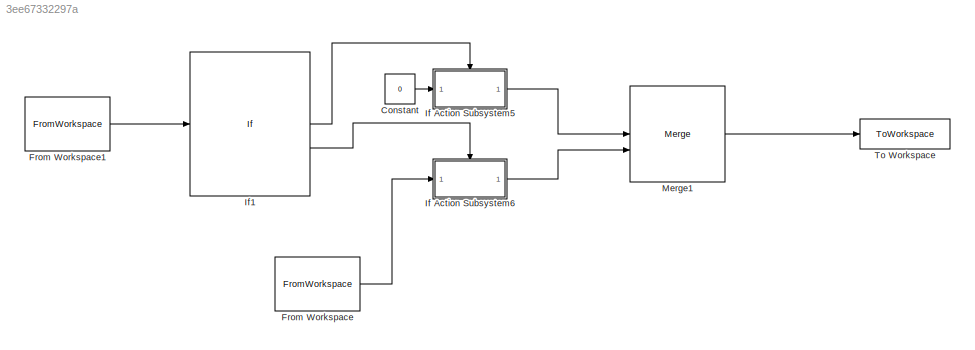
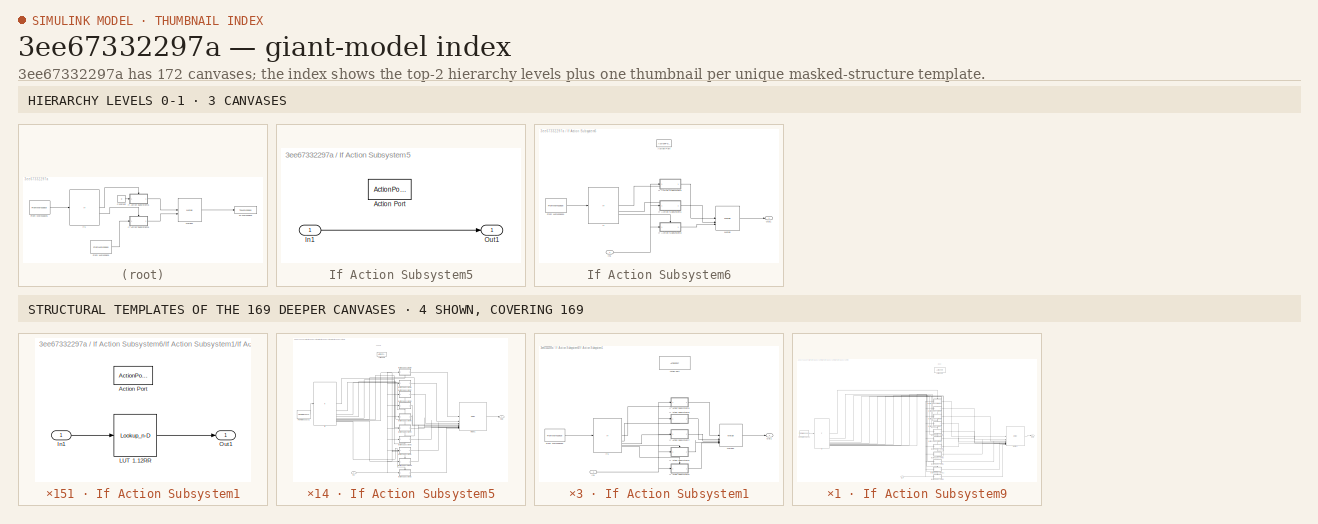
[diagram: thumbnail index - top-2 hierarchy levels (3 canvases) + 4 structural-template representatives of the remaining 169 canvases]
MODEL slx_3ee67332297a
KIND model
CONFIG AbsTol = auto
CONFIG EnableMultiTasking = off
CONFIG FixedStep = Timegap
CONFIG MaxStep = auto
CONFIG MinStep = auto
CONFIG RelTol = 1e-3
CONFIG SampleTimeConstraint = Unconstrained
CONFIG SolverName = FixedStepAuto
CONFIG StartTime = 0
CONFIG StopTime = 10.1
WORKSPACE source: mxarray member
WORKSPACE T1_input = 1.34
BLOCK [Constant] Constant
  Value = 0
BLOCK [FromWorkspace] From Workspace
  Interpolate = off
  OutputAfterFinalValue = Setting to zero
  VariableName = SimInputT1
BLOCK [FromWorkspace] From Workspace1
  Interpolate = off
  OutputAfterFinalValue = Setting to zero
  VariableName = SimInputT1
BLOCK [SubSystem] If Action Subsystem5
  TreatAsAtomicUnit = on
BLOCK [ActionPort] If Action Subsystem5/Action Port
  ActionPortLabel = if(u1 == 0)
BLOCK [Inport] If Action Subsystem5/In1
BLOCK [Outport] If Action Subsystem5/Out1
BLOCK [SubSystem] If Action Subsystem6
  TreatAsAtomicUnit = on
BLOCK [ActionPort] If Action Subsystem6/Action Port
  ActionPortLabel = else
BLOCK [FromWorkspace] If Action Subsystem6/From Workspace1
  Interpolate = off
  OutputAfterFinalValue = Setting to zero
  VariableName = SimInputHR
BLOCK [If] If Action Subsystem6/If
  ElseIfExpressions = u1 >= 0.995
  IfExpression = u1 >= 1.495
BLOCK [SubSystem] If Action Subsystem6/If Action Subsystem1
  TreatAsAtomicUnit = on
BLOCK [ActionPort] If Action Subsystem6/If Action Subsystem1/Action Port
  ActionPortLabel = elseif(u1 >= 0.995)
BLOCK [FromWorkspace] If Action Subsystem6/If Action Subsystem1/From Workspace2
  Interpolate = off
  OutputAfterFinalValue = Setting to zero
  VariableName = SimInputHR
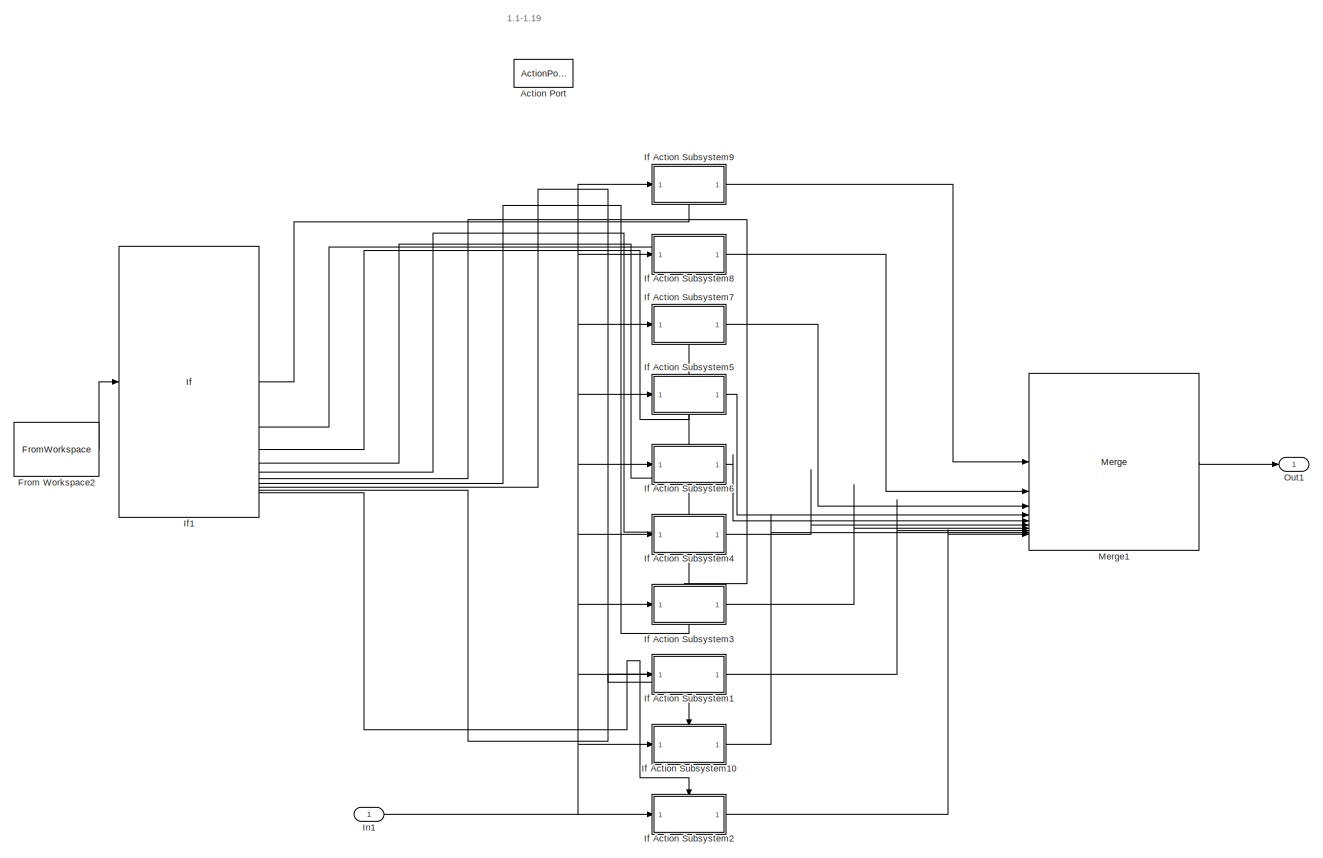
[diagram: If Action Subsystem6/If Action Subsystem1/If Action Subsystem5 - part 1/1, most of the canvas]
BLOCK [SubSystem] If Action Subsystem6/If Action Subsystem1/If Action Subsystem5
  TreatAsAtomicUnit = on
BLOCK [ActionPort] If Action Subsystem6/If Action Subsystem1/If Action Subsystem5/Action Port
  ActionPortLabel = elseif( u1 >= 1.095)
BLOCK [FromWorkspace] If Action Subsystem6/If Action Subsystem1/If Action Subsystem5/From Workspace2
  Interpolate = off
  OutputAfterFinalValue = Setting to zero
  VariableName = SimInputHR
BLOCK [SubSystem] If Action Subsystem6/If Action Subsystem1/If Action Subsystem5/If Action Subsystem1
  TreatAsAtomicUnit = on
BLOCK [ActionPort] If Action Subsystem6/If Action Subsystem1/If Action Subsystem5/If Action Subsystem1/Action Port
  ActionPortLabel = elseif( u1 >= 1.115)
BLOCK [Inport] If Action Subsystem6/If Action Subsystem1/If Action Subsystem5/If Action Subsystem1/In1
BLOCK [Lookup_n-D] If Action Subsystem6/If Action Subsystem1/If Action Subsystem5/If Action Subsystem1/LUT 1.12RR
  BreakpointsForDimension1 = [411.6381;552.7409;649.7749;746.6144;843.2954;939.8722;1036.381;1132.843;1229.274;1325.682;1422.074;1518.454;1614.825;1711.188;1807.546;1903.898;2000.247]
  InputPortMap = u0
  InternalRulePriority = Speed
  NumberOfTableDimensions = 1
  RndMeth = Simplest
  Table = [400;500;600;700;800;900;1000;1100;1200;1300;1400;1500;1600;1700;1800;1900;2000]
BLOCK [Outport] If Action Subsystem6/If Action Subsystem1/If Action Subsystem5/If Action Subsystem1/Out1
BLOCK [SubSystem] If Action Subsystem6/If Action Subsystem1/If Action Subsystem5/If Action Subsystem10
  TreatAsAtomicUnit = on
BLOCK [ActionPort] If Action Subsystem6/If Action Subsystem1/If Action Subsystem5/If Action Subsystem10/Action Port
  ActionPortLabel = elseif( u1 >= 1.105)
BLOCK [Inport] If Action Subsystem6/If Action Subsystem1/If Action Subsystem5/If Action Subsystem10/In1
BLOCK [Lookup_n-D] If Action Subsystem6/If Action Subsystem1/If Action Subsystem5/If Action Subsystem10/LUT 1.11RR
  BreakpointsForDimension1 = [411.7787;553.0469;650.2021;747.1738;843.994;940.7145;1037.37;1133.981;1230.562;1327.122;1423.666;1520.199;1616.724;1713.241;1809.753;1906.26;2002.763]
  InputPortMap = u0
  InternalRulePriority = Speed
  NumberOfTableDimensions = 1
  RndMeth = Simplest
  Table = [400;500;600;700;800;900;1000;1100;1200;1300;1400;1500;1600;1700;1800;1900;2000]
BLOCK [Outport] If Action Subsystem6/If Action Subsystem1/If Action Subsystem5/If Action Subsystem10/Out1
BLOCK [SubSystem] If Action Subsystem6/If Action Subsystem1/If Action Subsystem5/If Action Subsystem2
  TreatAsAtomicUnit = on
BLOCK [ActionPort] If Action Subsystem6/If Action Subsystem1/If Action Subsystem5/If Action Subsystem2/Action Port
  ActionPortLabel = else
BLOCK [Inport] If Action Subsystem6/If Action Subsystem1/If Action Subsystem5/If Action Subsystem2/In1
BLOCK [Lookup_n-D] If Action Subsystem6/If Action Subsystem1/If Action Subsystem5/If Action Subsystem2/LUT 1.10RR
  BreakpointsForDimension1 = [411.9215;553.3602;650.6398;747.7471;844.7096;941.577;1038.382;1135.146;1231.88;1328.595;1425.295;1521.984;1618.665;1715.34;1812.01;1908.675;2005.335]
  InputPortMap = u0
  InternalRulePriority = Speed
  NumberOfTableDimensions = 1
  RndMeth = Simplest
  Table = [400;500;600;700;800;900;1000;1100;1200;1300;1400;1500;1600;1700;1800;1900;2000]
BLOCK [Outport] If Action Subsystem6/If Action Subsystem1/If Action Subsystem5/If Action Subsystem2/Out1
BLOCK [SubSystem] If Action Subsystem6/If Action Subsystem1/If Action Subsystem5/If Action Subsystem3
  TreatAsAtomicUnit = on
BLOCK [ActionPort] If Action Subsystem6/If Action Subsystem1/If Action Subsystem5/If Action Subsystem3/Action Port
  ActionPortLabel = elseif( u1 >= 1.125)
BLOCK [Inport] If Action Subsystem6/If Action Subsystem1/If Action Subsystem5/If Action Subsystem3/In1
BLOCK [Lookup_n-D] If Action Subsystem6/If Action Subsystem1/If Action Subsystem5/If Action Subsystem3/LUT 1.13RR
  BreakpointsForDimension1 = [411.4996;552.4418;649.3579;746.0684;842.6134;939.0498;1035.415;1131.731;1228.015;1324.275;1420.517;1516.747;1612.967;1709.18;1805.386;1901.587;1997.784]
  InputPortMap = u0
  InternalRulePriority = Speed
  NumberOfTableDimensions = 1
  RndMeth = Simplest
  Table = [400;500;600;700;800;900;1000;1100;1200;1300;1400;1500;1600;1700;1800;1900;2000]
BLOCK [Outport] If Action Subsystem6/If Action Subsystem1/If Action Subsystem5/If Action Subsystem3/Out1
BLOCK [SubSystem] If Action Subsystem6/If Action Subsystem1/If Action Subsystem5/If Action Subsystem4
  TreatAsAtomicUnit = on
BLOCK [ActionPort] If Action Subsystem6/If Action Subsystem1/If Action Subsystem5/If Action Subsystem4/Action Port
  ActionPortLabel = elseif( u1 >= 1.135)
BLOCK [Inport] If Action Subsystem6/If Action Subsystem1/If Action Subsystem5/If Action Subsystem4/In1
BLOCK [Lookup_n-D] If Action Subsystem6/If Action Subsystem1/If Action Subsystem5/If Action Subsystem4/LUT 1.14RR
  BreakpointsForDimension1 = [411.3633;552.1494;648.9508;745.5354;841.9476;938.2465;1034.471;1130.645;1226.784;1322.898;1418.995;1515.077;1611.15;1707.214;1803.272;1899.325;1995.373]
  InputPortMap = u0
  InternalRulePriority = Speed
  NumberOfTableDimensions = 1
  RndMeth = Simplest
  Table = [400;500;600;700;800;900;1000;1100;1200;1300;1400;1500;1600;1700;1800;1900;2000]
BLOCK [Outport] If Action Subsystem6/If Action Subsystem1/If Action Subsystem5/If Action Subsystem4/Out1
BLOCK [SubSystem] If Action Subsystem6/If Action Subsystem1/If Action Subsystem5/If Action Subsystem5
  TreatAsAtomicUnit = on
BLOCK [ActionPort] If Action Subsystem6/If Action Subsystem1/If Action Subsystem5/If Action Subsystem5/Action Port
  ActionPortLabel = elseif( u1 >= 1.155)
BLOCK [Inport] If Action Subsystem6/If Action Subsystem1/If Action Subsystem5/If Action Subsystem5/In1
BLOCK [Lookup_n-D] If Action Subsystem6/If Action Subsystem1/If Action Subsystem5/If Action Subsystem5/LUT 1.16RR
  BreakpointsForDimension1 = [411.0969;551.5842;648.165;744.5069;840.6623;936.6953;1032.647;1128.545;1224.404;1320.236;1416.049;1511.846;1607.632;1703.409;1799.179;1894.943;1990.702]
  InputPortMap = u0
  InternalRulePriority = Speed
  NumberOfTableDimensions = 1
  RndMeth = Simplest
  Table = [400;500;600;700;800;900;1000;1100;1200;1300;1400;1500;1600;1700;1800;1900;2000]
BLOCK [Outport] If Action Subsystem6/If Action Subsystem1/If Action Subsystem5/If Action Subsystem5/Out1
BLOCK [SubSystem] If Action Subsystem6/If Action Subsystem1/If Action Subsystem5/If Action Subsystem6
  TreatAsAtomicUnit = on
BLOCK [ActionPort] If Action Subsystem6/If Action Subsystem1/If Action Subsystem5/If Action Subsystem6/Action Port
  ActionPortLabel = elseif( u1 >= 1.145)
BLOCK [Inport] If Action Subsystem6/If Action Subsystem1/If Action Subsystem5/If Action Subsystem6/In1
BLOCK [Lookup_n-D] If Action Subsystem6/If Action Subsystem1/If Action Subsystem5/If Action Subsystem6/LUT 1.15RR
  BreakpointsForDimension1 = [411.2291;551.8636;648.5532;745.015;841.2973;937.4618;1033.549;1129.583;1225.581;1321.553;1417.505;1513.444;1609.372;1705.291;1801.204;1897.111;1993.013]
  InputPortMap = u0
  InternalRulePriority = Speed
  NumberOfTableDimensions = 1
  RndMeth = Simplest
  Table = [400;500;600;700;800;900;1000;1100;1200;1300;1400;1500;1600;1700;1800;1900;2000]
BLOCK [Outport] If Action Subsystem6/If Action Subsystem1/If Action Subsystem5/If Action Subsystem6/Out1
BLOCK [SubSystem] If Action Subsystem6/If Action Subsystem1/If Action Subsystem5/If Action Subsystem7
  TreatAsAtomicUnit = on
BLOCK [ActionPort] If Action Subsystem6/If Action Subsystem1/If Action Subsystem5/If Action Subsystem7/Action Port
  ActionPortLabel = elseif( u1 >= 1.165)
BLOCK [Inport] If Action Subsystem6/If Action Subsystem1/If Action Subsystem5/If Action Subsystem7/In1
BLOCK [Lookup_n-D] If Action Subsystem6/If Action Subsystem1/If Action Subsystem5/If Action Subsystem7/LUT 1.17RR
  BreakpointsForDimension1 = [410.9666;551.311;647.7859;744.0107;840.0421;935.9464;1031.767;1127.53;1223.254;1318.949;1414.623;1510.282;1605.929;1701.567;1797.197;1892.821;1988.44]
  InputPortMap = u0
  InternalRulePriority = Speed
  NumberOfTableDimensions = 1
  RndMeth = Simplest
  Table = [400;500;600;700;800;900;1000;1100;1200;1300;1400;1500;1600;1700;1800;1900;2000]
BLOCK [Outport] If Action Subsystem6/If Action Subsystem1/If Action Subsystem5/If Action Subsystem7/Out1
BLOCK [SubSystem] If Action Subsystem6/If Action Subsystem1/If Action Subsystem5/If Action Subsystem8
  TreatAsAtomicUnit = on
BLOCK [ActionPort] If Action Subsystem6/If Action Subsystem1/If Action Subsystem5/If Action Subsystem8/Action Port
  ActionPortLabel = elseif(u1 >= 1.175)
BLOCK [Inport] If Action Subsystem6/If Action Subsystem1/If Action Subsystem5/If Action Subsystem8/In1
BLOCK [Lookup_n-D] If Action Subsystem6/If Action Subsystem1/If Action Subsystem5/If Action Subsystem8/LUT 1.18RR
  BreakpointsForDimension1 = [410.8384;551.0439;647.4156;743.5262;839.4363;935.2146;1030.906;1126.538;1222.128;1317.689;1413.228;1508.751;1604.262;1699.763;1795.256;1890.743;1986.224]
  InputPortMap = u0
  InternalRulePriority = Speed
  NumberOfTableDimensions = 1
  RndMeth = Simplest
  Table = [400;500;600;700;800;900;1000;1100;1200;1300;1400;1500;1600;1700;1800;1900;2000]
BLOCK [Outport] If Action Subsystem6/If Action Subsystem1/If Action Subsystem5/If Action Subsystem8/Out1
BLOCK [SubSystem] If Action Subsystem6/If Action Subsystem1/If Action Subsystem5/If Action Subsystem9
  TreatAsAtomicUnit = on
BLOCK [ActionPort] If Action Subsystem6/If Action Subsystem1/If Action Subsystem5/If Action Subsystem9/Action Port
  ActionPortLabel = if(u1 >= 1.185)
BLOCK [Inport] If Action Subsystem6/If Action Subsystem1/If Action Subsystem5/If Action Subsystem9/In1
BLOCK [Lookup_n-D] If Action Subsystem6/If Action Subsystem1/If Action Subsystem5/If Action Subsystem9/LUT 1.19RR
  BreakpointsForDimension1 = [410.712;550.7826;647.0538;743.0529;838.8444;934.4994;1030.064;1125.567;1221.027;1316.457;1411.864;1507.253;1602.63;1697.997;1793.355;1888.707;1984.053]
  InputPortMap = u0
  InternalRulePriority = Speed
  NumberOfTableDimensions = 1
  RndMeth = Simplest
  Table = [400;500;600;700;800;900;1000;1100;1200;1300;1400;1500;1600;1700;1800;1900;2000]
BLOCK [Outport] If Action Subsystem6/If Action Subsystem1/If Action Subsystem5/If Action Subsystem9/Out1
BLOCK [If] If Action Subsystem6/If Action Subsystem1/If Action Subsystem5/If1
  ElseIfExpressions = u1 >= 1.175, u1 >= 1.165, u1 >= 1.155, u1 >= 1.145, u1 >= 1.135, u1 >= 1.125, u1 >= 1.115, u1 >= 1.105
  IfExpression = u1 >= 1.185
BLOCK [Inport] If Action Subsystem6/If Action Subsystem1/If Action Subsystem5/In1
BLOCK [Merge] If Action Subsystem6/If Action Subsystem1/If Action Subsystem5/Merge1
  Inputs = 10
BLOCK [Outport] If Action Subsystem6/If Action Subsystem1/If Action Subsystem5/Out1
BLOCK [SubSystem] If Action Subsystem6/If Action Subsystem1/If Action Subsystem6
  TreatAsAtomicUnit = on
BLOCK [ActionPort] If Action Subsystem6/If Action Subsystem1/If Action Subsystem6/Action Port
  ActionPortLabel = else
BLOCK [FromWorkspace] If Action Subsystem6/If Action Subsystem1/If Action Subsystem6/From Workspace2
  Interpolate = off
  OutputAfterFinalValue = Setting to zero
  VariableName = SimInputHR
BLOCK [SubSystem] If Action Subsystem6/If Action Subsystem1/If Action Subsystem6/If Action Subsystem1
  TreatAsAtomicUnit = on
BLOCK [ActionPort] If Action Subsystem6/If Action Subsystem1/If Action Subsystem6/If Action Subsystem1/Action Port
  ActionPortLabel = elseif( u1 >= 1.015)
BLOCK [Inport] If Action Subsystem6/If Action Subsystem1/If Action Subsystem6/If Action Subsystem1/In1
BLOCK [Lookup_n-D] If Action Subsystem6/If Action Subsystem1/If Action Subsystem6/If Action Subsystem1/LUT 1.02RR
  BreakpointsForDimension1 = [413.1508;556.151;654.5592;752.8828;851.1156;949.2882;1047.422;1145.531;1243.622;1341.703;1439.775;1537.841;1635.903;1733.962;1832.017;1930.069;2028.117]
  InputPortMap = u0
  InternalRulePriority = Speed
  NumberOfTableDimensions = 1
  RndMeth = Simplest
  Table = [400;500;600;700;800;900;1000;1100;1200;1300;1400;1500;1600;1700;1800;1900;2000]
BLOCK [Outport] If Action Subsystem6/If Action Subsystem1/If Action Subsystem6/If Action Subsystem1/Out1
BLOCK [SubSystem] If Action Subsystem6/If Action Subsystem1/If Action Subsystem6/If Action Subsystem10
  TreatAsAtomicUnit = on
BLOCK [ActionPort] If Action Subsystem6/If Action Subsystem1/If Action Subsystem6/If Action Subsystem10/Action Port
  ActionPortLabel = elseif( u1 >= 1.005)
BLOCK [Inport] If Action Subsystem6/If Action Subsystem1/If Action Subsystem6/If Action Subsystem10/In1
BLOCK [Lookup_n-D] If Action Subsystem6/If Action Subsystem1/If Action Subsystem6/If Action Subsystem10/LUT 1.01RR
  BreakpointsForDimension1 = [413.3161547;556.5392657;655.1070022;753.6009136;852.0106415;950.3643269;1048.682093;1146.976569;1245.255617;1343.524203;1441.785506;1540.041581;1638.293731;1736.542717;1834.788833;1933.03182;2031.27041]
  InputPortMap = u0
  InternalRulePriority = Speed
  NumberOfTableDimensions = 1
  RndMeth = Simplest
  Table = [400;500;600;700;800;900;1000;1100;1200;1300;1400;1500;1600;1700;1800;1900;2000]
BLOCK [Outport] If Action Subsystem6/If Action Subsystem1/If Action Subsystem6/If Action Subsystem10/Out1
BLOCK [SubSystem] If Action Subsystem6/If Action Subsystem1/If Action Subsystem6/If Action Subsystem2
  TreatAsAtomicUnit = on
BLOCK [ActionPort] If Action Subsystem6/If Action Subsystem1/If Action Subsystem6/If Action Subsystem2/Action Port
  ActionPortLabel = else
BLOCK [Inport] If Action Subsystem6/If Action Subsystem1/If Action Subsystem6/If Action Subsystem2/In1
BLOCK [Lookup_n-D] If Action Subsystem6/If Action Subsystem1/If Action Subsystem6/If Action Subsystem2/LUT 1.00RR
  BreakpointsForDimension1 = [413.4843;556.9372;655.669;754.3378;852.9289;951.4681;1049.974;1148.459;1246.93;1345.391;1443.846;1542.296;1640.743;1739.186;1837.627;1936.065;2034.499]
  InputPortMap = u0
  InternalRulePriority = Speed
  NumberOfTableDimensions = 1
  RndMeth = Simplest
  Table = [400;500;600;700;800;900;1000;1100;1200;1300;1400;1500;1600;1700;1800;1900;2000]
BLOCK [Outport] If Action Subsystem6/If Action Subsystem1/If Action Subsystem6/If Action Subsystem2/Out1
BLOCK [SubSystem] If Action Subsystem6/If Action Subsystem1/If Action Subsystem6/If Action Subsystem3
  TreatAsAtomicUnit = on
BLOCK [ActionPort] If Action Subsystem6/If Action Subsystem1/If Action Subsystem6/If Action Subsystem3/Action Port
  ActionPortLabel = elseif( u1 >= 1.025)
BLOCK [Inport] If Action Subsystem6/If Action Subsystem1/If Action Subsystem6/If Action Subsystem3/In1
BLOCK [Lookup_n-D] If Action Subsystem6/If Action Subsystem1/If Action Subsystem6/If Action Subsystem3/LUT 1.03RR
  BreakpointsForDimension1 = [412.9882;555.7721;654.0253;752.1829;850.2431;948.2388;1046.193;1144.12;1242.028;1339.925;1437.812;1535.693;1633.569;1731.441;1829.31;1927.175;2025.037]
  InputPortMap = u0
  InternalRulePriority = Speed
  NumberOfTableDimensions = 1
  RndMeth = Simplest
  Table = [400;500;600;700;800;900;1000;1100;1200;1300;1400;1500;1600;1700;1800;1900;2000]
BLOCK [Outport] If Action Subsystem6/If Action Subsystem1/If Action Subsystem6/If Action Subsystem3/Out1
BLOCK [SubSystem] If Action Subsystem6/If Action Subsystem1/If Action Subsystem6/If Action Subsystem4
  TreatAsAtomicUnit = on
BLOCK [ActionPort] If Action Subsystem6/If Action Subsystem1/If Action Subsystem6/If Action Subsystem4/Action Port
  ActionPortLabel = elseif( u1 >= 1.035)
BLOCK [Inport] If Action Subsystem6/If Action Subsystem1/If Action Subsystem6/If Action Subsystem4/In1
BLOCK [Lookup_n-D] If Action Subsystem6/If Action Subsystem1/If Action Subsystem6/If Action Subsystem4/LUT 1.04RR
  BreakpointsForDimension1 = [412.8283;555.4024;653.5047;751.5005;849.3924;947.2154;1044.994;1142.743;1240.473;1338.189;1435.895;1533.595;1631.289;1728.979;1826.665;1924.348;2022.027]
  InputPortMap = u0
  InternalRulePriority = Speed
  NumberOfTableDimensions = 1
  RndMeth = Simplest
  Table = [400;500;600;700;800;900;1000;1100;1200;1300;1400;1500;1600;1700;1800;1900;2000]
BLOCK [Outport] If Action Subsystem6/If Action Subsystem1/If Action Subsystem6/If Action Subsystem4/Out1
BLOCK [SubSystem] If Action Subsystem6/If Action Subsystem1/If Action Subsystem6/If Action Subsystem5
  TreatAsAtomicUnit = on
BLOCK [ActionPort] If Action Subsystem6/If Action Subsystem1/If Action Subsystem6/If Action Subsystem5/Action Port
  ActionPortLabel = elseif( u1 >= 1.055)
BLOCK [Inport] If Action Subsystem6/If Action Subsystem1/If Action Subsystem6/If Action Subsystem5/In1
BLOCK [Lookup_n-D] If Action Subsystem6/If Action Subsystem1/If Action Subsystem6/If Action Subsystem5/LUT 1.06RR
  BreakpointsForDimension1 = [412.5162;554.689;652.5019;750.1865;847.7536;945.2432;1042.683;1140.089;1237.472;1334.84;1432.196;1529.544;1626.886;1724.223;1821.556;1918.886;2016.211]
  InputPortMap = u0
  InternalRulePriority = Speed
  NumberOfTableDimensions = 1
  RndMeth = Simplest
  Table = [400;500;600;700;800;900;1000;1100;1200;1300;1400;1500;1600;1700;1800;1900;2000]
BLOCK [Outport] If Action Subsystem6/If Action Subsystem1/If Action Subsystem6/If Action Subsystem5/Out1
BLOCK [SubSystem] If Action Subsystem6/If Action Subsystem1/If Action Subsystem6/If Action Subsystem6
  TreatAsAtomicUnit = on
BLOCK [ActionPort] If Action Subsystem6/If Action Subsystem1/If Action Subsystem6/If Action Subsystem6/Action Port
  ActionPortLabel = elseif( u1 >= 1.045)
BLOCK [Inport] If Action Subsystem6/If Action Subsystem1/If Action Subsystem6/If Action Subsystem6/In1
BLOCK [Lookup_n-D] If Action Subsystem6/If Action Subsystem1/If Action Subsystem6/If Action Subsystem6/LUT 1.05RR
  BreakpointsForDimension1 = [412.671;555.0414;652.997;750.8352;848.5627;946.2171;1043.824;1141.4;1238.955;1336.494;1434.024;1531.546;1629.062;1726.574;1824.081;1921.586;2019.086]
  InputPortMap = u0
  InternalRulePriority = Speed
  NumberOfTableDimensions = 1
  RndMeth = Simplest
  Table = [400;500;600;700;800;900;1000;1100;1200;1300;1400;1500;1600;1700;1800;1900;2000]
BLOCK [Outport] If Action Subsystem6/If Action Subsystem1/If Action Subsystem6/If Action Subsystem6/Out1
BLOCK [SubSystem] If Action Subsystem6/If Action Subsystem1/If Action Subsystem6/If Action Subsystem7
  TreatAsAtomicUnit = on
BLOCK [ActionPort] If Action Subsystem6/If Action Subsystem1/If Action Subsystem6/If Action Subsystem7/Action Port
  ActionPortLabel = elseif( u1 >= 1.065)
BLOCK [Inport] If Action Subsystem6/If Action Subsystem1/If Action Subsystem6/If Action Subsystem7/In1
BLOCK [Lookup_n-D] If Action Subsystem6/If Action Subsystem1/If Action Subsystem6/If Action Subsystem7/LUT 1.07RR
  BreakpointsForDimension1 = [412.364;554.3449;652.019;749.5538;846.9643;944.293;1041.568;1138.808;1236.024;1333.224;1430.411;1527.589;1624.76;1721.926;1819.088;1916.246;2013.4]
  InputPortMap = u0
  InternalRulePriority = Speed
  NumberOfTableDimensions = 1
  RndMeth = Simplest
  Table = [400;500;600;700;800;900;1000;1100;1200;1300;1400;1500;1600;1700;1800;1900;2000]
BLOCK [Outport] If Action Subsystem6/If Action Subsystem1/If Action Subsystem6/If Action Subsystem7/Out1
BLOCK [SubSystem] If Action Subsystem6/If Action Subsystem1/If Action Subsystem6/If Action Subsystem8
  TreatAsAtomicUnit = on
BLOCK [ActionPort] If Action Subsystem6/If Action Subsystem1/If Action Subsystem6/If Action Subsystem8/Action Port
  ActionPortLabel = elseif(u1 >= 1.075)
BLOCK [Inport] If Action Subsystem6/If Action Subsystem1/If Action Subsystem6/If Action Subsystem8/In1
BLOCK [Lookup_n-D] If Action Subsystem6/If Action Subsystem1/If Action Subsystem6/If Action Subsystem8/LUT 1.08RR
  BreakpointsForDimension1 = [412.2141;554.0089;651.5479;748.9366;846.1942;943.3656;1040.481;1137.558;1234.611;1331.645;1428.666;1525.678;1622.682;1719.681;1816.676;1913.666;2010.652]
  InputPortMap = u0
  InternalRulePriority = Speed
  NumberOfTableDimensions = 1
  RndMeth = Simplest
  Table = [400;500;600;700;800;900;1000;1100;1200;1300;1400;1500;1600;1700;1800;1900;2000]
BLOCK [Outport] If Action Subsystem6/If Action Subsystem1/If Action Subsystem6/If Action Subsystem8/Out1
BLOCK [SubSystem] If Action Subsystem6/If Action Subsystem1/If Action Subsystem6/If Action Subsystem9
  TreatAsAtomicUnit = on
BLOCK [ActionPort] If Action Subsystem6/If Action Subsystem1/If Action Subsystem6/If Action Subsystem9/Action Port
  ActionPortLabel = if(u1 >= 1.085)
BLOCK [Inport] If Action Subsystem6/If Action Subsystem1/If Action Subsystem6/If Action Subsystem9/In1
BLOCK [Lookup_n-D] If Action Subsystem6/If Action Subsystem1/If Action Subsystem6/If Action Subsystem9/LUT 1.09RR
  BreakpointsForDimension1 = [412.0667;553.6807;651.0883;748.3345;845.4429;942.4605;1039.419;1136.338;1233.23;1330.102;1426.961;1523.81;1620.651;1717.486;1814.317;1911.142;2007.964]
  InputPortMap = u0
  InternalRulePriority = Speed
  NumberOfTableDimensions = 1
  RndMeth = Simplest
  Table = [400;500;600;700;800;900;1000;1100;1200;1300;1400;1500;1600;1700;1800;1900;2000]
BLOCK [Outport] If Action Subsystem6/If Action Subsystem1/If Action Subsystem6/If Action Subsystem9/Out1
BLOCK [If] If Action Subsystem6/If Action Subsystem1/If Action Subsystem6/If1
  ElseIfExpressions = u1 >= 1.075, u1 >= 1.065, u1 >= 1.055, u1 >= 1.045, u1 >= 1.035, u1 >= 1.025, u1 >= 1.015, u1 >= 1.005
  IfExpression = u1 >= 1.085
BLOCK [Inport] If Action Subsystem6/If Action Subsystem1/If Action Subsystem6/In1
BLOCK [Merge] If Action Subsystem6/If Action Subsystem1/If Action Subsystem6/Merge1
  Inputs = 10
BLOCK [Outport] If Action Subsystem6/If Action Subsystem1/If Action Subsystem6/Out1
BLOCK [SubSystem] If Action Subsystem6/If Action Subsystem1/If Action Subsystem7
  TreatAsAtomicUnit = on
BLOCK [ActionPort] If Action Subsystem6/If Action Subsystem1/If Action Subsystem7/Action Port
  ActionPortLabel = elseif( u1 >= 1.195)
BLOCK [FromWorkspace] If Action Subsystem6/If Action Subsystem1/If Action Subsystem7/From Workspace2
  Interpolate = off
  OutputAfterFinalValue = Setting to zero
  VariableName = SimInputHR
BLOCK [SubSystem] If Action Subsystem6/If Action Subsystem1/If Action Subsystem7/If Action Subsystem1
  TreatAsAtomicUnit = on
BLOCK [ActionPort] If Action Subsystem6/If Action Subsystem1/If Action Subsystem7/If Action Subsystem1/Action Port
  ActionPortLabel = elseif( u1 >= 1.215)
BLOCK [Inport] If Action Subsystem6/If Action Subsystem1/If Action Subsystem7/If Action Subsystem1/In1
BLOCK [Lookup_n-D] If Action Subsystem6/If Action Subsystem1/If Action Subsystem7/If Action Subsystem1/LUT 1.22RR
  BreakpointsForDimension1 = [410.344;550.0322;646.0176;741.6977;837.1488;932.4494;1027.65;1122.782;1217.866;1312.916;1407.94;1502.945;1597.935;1692.914;1787.883;1882.845;1977.801]
  InputPortMap = u0
  InternalRulePriority = Speed
  NumberOfTableDimensions = 1
  RndMeth = Simplest
  Table = [400;500;600;700;800;900;1000;1100;1200;1300;1400;1500;1600;1700;1800;1900;2000]
BLOCK [Outport] If Action Subsystem6/If Action Subsystem1/If Action Subsystem7/If Action Subsystem1/Out1
BLOCK [SubSystem] If Action Subsystem6/If Action Subsystem1/If Action Subsystem7/If Action Subsystem10
  TreatAsAtomicUnit = on
BLOCK [ActionPort] If Action Subsystem6/If Action Subsystem1/If Action Subsystem7/If Action Subsystem10/Action Port
  ActionPortLabel = elseif( u1 >= 1.205)
BLOCK [Inport] If Action Subsystem6/If Action Subsystem1/If Action Subsystem7/If Action Subsystem10/In1
BLOCK [Lookup_n-D] If Action Subsystem6/If Action Subsystem1/If Action Subsystem7/If Action Subsystem10/LUT 1.21RR
  BreakpointsForDimension1 = [410.4648;550.2769;646.3551;742.1389;837.701;933.1173;1028.437;1123.69;1218.897;1314.071;1409.22;1504.351;1599.467;1694.573;1789.67;1884.759;1979.843]
  InputPortMap = u0
  InternalRulePriority = Speed
  NumberOfTableDimensions = 1
  RndMeth = Simplest
  Table = [400;500;600;700;800;900;1000;1100;1200;1300;1400;1500;1600;1700;1800;1900;2000]
BLOCK [Outport] If Action Subsystem6/If Action Subsystem1/If Action Subsystem7/If Action Subsystem10/Out1
BLOCK [SubSystem] If Action Subsystem6/If Action Subsystem1/If Action Subsystem7/If Action Subsystem2
  TreatAsAtomicUnit = on
BLOCK [ActionPort] If Action Subsystem6/If Action Subsystem1/If Action Subsystem7/If Action Subsystem2/Action Port
  ActionPortLabel = else
BLOCK [Inport] If Action Subsystem6/If Action Subsystem1/If Action Subsystem7/If Action Subsystem2/In1
BLOCK [Lookup_n-D] If Action Subsystem6/If Action Subsystem1/If Action Subsystem7/If Action Subsystem2/LUT 1.20RR
  BreakpointsForDimension1 = [410.5875;550.527;646.7004;742.5906;838.2661;933.8005;1029.241;1124.618;1219.951;1315.251;1410.528;1505.787;1601.032;1696.267;1791.493;1886.713;1981.926]
  InputPortMap = u0
  InternalRulePriority = Speed
  NumberOfTableDimensions = 1
  RndMeth = Simplest
  Table = [400;500;600;700;800;900;1000;1100;1200;1300;1400;1500;1600;1700;1800;1900;2000]
BLOCK [Outport] If Action Subsystem6/If Action Subsystem1/If Action Subsystem7/If Action Subsystem2/Out1
BLOCK [SubSystem] If Action Subsystem6/If Action Subsystem1/If Action Subsystem7/If Action Subsystem3
  TreatAsAtomicUnit = on
BLOCK [ActionPort] If Action Subsystem6/If Action Subsystem1/If Action Subsystem7/If Action Subsystem3/Action Port
  ActionPortLabel = elseif( u1 >= 1.225)
BLOCK [Inport] If Action Subsystem6/If Action Subsystem1/If Action Subsystem7/If Action Subsystem3/In1
BLOCK [Lookup_n-D] If Action Subsystem6/If Action Subsystem1/If Action Subsystem7/If Action Subsystem3/LUT 1.23RR
  BreakpointsForDimension1 = [410.2248;549.7928;645.6879;741.2665;836.6092;931.7964;1026.88;1121.894;1216.857;1311.785;1406.686;1501.568;1596.434;1691.288;1786.133;1880.969;1975.8]
  InputPortMap = u0
  InternalRulePriority = Speed
  NumberOfTableDimensions = 1
  RndMeth = Simplest
  Table = [400;500;600;700;800;900;1000;1100;1200;1300;1400;1500;1600;1700;1800;1900;2000]
BLOCK [Outport] If Action Subsystem6/If Action Subsystem1/If Action Subsystem7/If Action Subsystem3/Out1
BLOCK [SubSystem] If Action Subsystem6/If Action Subsystem1/If Action Subsystem7/If Action Subsystem4
  TreatAsAtomicUnit = on
BLOCK [ActionPort] If Action Subsystem6/If Action Subsystem1/If Action Subsystem7/If Action Subsystem4/Action Port
  ActionPortLabel = elseif( u1 >= 1.235)
BLOCK [Inport] If Action Subsystem6/If Action Subsystem1/If Action Subsystem7/If Action Subsystem4/In1
BLOCK [Lookup_n-D] If Action Subsystem6/If Action Subsystem1/If Action Subsystem7/If Action Subsystem4/LUT 1.24RR
  BreakpointsForDimension1 = [410.1074;549.5585;645.3656;740.8452;836.0817;931.158;1026.128;1121.024;1215.87;1310.678;1405.459;1500.219;1594.963;1689.695;1784.417;1879.131;1973.838]
  InputPortMap = u0
  InternalRulePriority = Speed
  NumberOfTableDimensions = 1
  RndMeth = Simplest
  Table = [400;500;600;700;800;900;1000;1100;1200;1300;1400;1500;1600;1700;1800;1900;2000]
BLOCK [Outport] If Action Subsystem6/If Action Subsystem1/If Action Subsystem7/If Action Subsystem4/Out1
BLOCK [SubSystem] If Action Subsystem6/If Action Subsystem1/If Action Subsystem7/If Action Subsystem5
  TreatAsAtomicUnit = on
BLOCK [ActionPort] If Action Subsystem6/If Action Subsystem1/If Action Subsystem7/If Action Subsystem5/Action Port
  ActionPortLabel = elseif( u1 >= 1.255)
BLOCK [Inport] If Action Subsystem6/If Action Subsystem1/If Action Subsystem7/If Action Subsystem5/In1
BLOCK [Lookup_n-D] If Action Subsystem6/If Action Subsystem1/If Action Subsystem7/If Action Subsystem5/LUT 1.26RR
  BreakpointsForDimension1 = [409.8775;549.1047;644.7426;740.031;835.062;929.9232;1024.671;1119.341;1213.957;1308.533;1403.079;1497.603;1592.111;1686.605;1781.088;1875.562;1970.03]
  InputPortMap = u0
  InternalRulePriority = Speed
  NumberOfTableDimensions = 1
  RndMeth = Simplest
  Table = [400;500;600;700;800;900;1000;1100;1200;1300;1400;1500;1600;1700;1800;1900;2000]
BLOCK [Outport] If Action Subsystem6/If Action Subsystem1/If Action Subsystem7/If Action Subsystem5/Out1
BLOCK [SubSystem] If Action Subsystem6/If Action Subsystem1/If Action Subsystem7/If Action Subsystem6
  TreatAsAtomicUnit = on
BLOCK [ActionPort] If Action Subsystem6/If Action Subsystem1/If Action Subsystem7/If Action Subsystem6/Action Port
  ActionPortLabel = elseif( u1 >= 1.245)
BLOCK [Inport] If Action Subsystem6/If Action Subsystem1/If Action Subsystem7/If Action Subsystem6/In1
BLOCK [Lookup_n-D] If Action Subsystem6/If Action Subsystem1/If Action Subsystem7/If Action Subsystem6/LUT 1.25RR
  BreakpointsForDimension1 = [409.9916;549.3292;645.0505;740.4334;835.566;930.5337;1025.391;1120.174;1214.903;1309.594;1404.257;1498.898;1593.522;1688.134;1782.736;1877.329;1971.915]
  InputPortMap = u0
  InternalRulePriority = Speed
  NumberOfTableDimensions = 1
  RndMeth = Simplest
  Table = [400;500;600;700;800;900;1000;1100;1200;1300;1400;1500;1600;1700;1800;1900;2000]
BLOCK [Outport] If Action Subsystem6/If Action Subsystem1/If Action Subsystem7/If Action Subsystem6/Out1
BLOCK [SubSystem] If Action Subsystem6/If Action Subsystem1/If Action Subsystem7/If Action Subsystem7
  TreatAsAtomicUnit = on
BLOCK [ActionPort] If Action Subsystem6/If Action Subsystem1/If Action Subsystem7/If Action Subsystem7/Action Port
  ActionPortLabel = elseif( u1 >= 1.265)
BLOCK [Inport] If Action Subsystem6/If Action Subsystem1/If Action Subsystem7/If Action Subsystem7/In1
BLOCK [Lookup_n-D] If Action Subsystem6/If Action Subsystem1/If Action Subsystem7/If Action Subsystem7/LUT 1.27RR
  BreakpointsForDimension1 = [409.765;548.8849;644.4415;739.6376;834.5691;929.3261;1023.966;1118.527;1213.03;1307.493;1401.926;1496.335;1590.727;1685.105;1779.472;1873.83;1968.181]
  InputPortMap = u0
  InternalRulePriority = Speed
  NumberOfTableDimensions = 1
  RndMeth = Simplest
  Table = [400;500;600;700;800;900;1000;1100;1200;1300;1400;1500;1600;1700;1800;1900;2000]
BLOCK [Outport] If Action Subsystem6/If Action Subsystem1/If Action Subsystem7/If Action Subsystem7/Out1
BLOCK [SubSystem] If Action Subsystem6/If Action Subsystem1/If Action Subsystem7/If Action Subsystem8
  TreatAsAtomicUnit = on
BLOCK [ActionPort] If Action Subsystem6/If Action Subsystem1/If Action Subsystem7/If Action Subsystem8/Action Port
  ActionPortLabel = elseif(u1 >= 1.275)
BLOCK [Inport] If Action Subsystem6/If Action Subsystem1/If Action Subsystem7/If Action Subsystem8/In1
BLOCK [Lookup_n-D] If Action Subsystem6/If Action Subsystem1/If Action Subsystem7/If Action Subsystem8/LUT 1.28RR
  BreakpointsForDimension1 = [409.654;548.6697;644.1471;739.2531;834.0873;928.7421;1023.277;1117.729;1212.123;1306.475;1400.796;1495.093;1589.371;1683.635;1777.888;1872.132;1966.368]
  InputPortMap = u0
  InternalRulePriority = Speed
  NumberOfTableDimensions = 1
  RndMeth = Simplest
  Table = [400;500;600;700;800;900;1000;1100;1200;1300;1400;1500;1600;1700;1800;1900;2000]
BLOCK [Outport] If Action Subsystem6/If Action Subsystem1/If Action Subsystem7/If Action Subsystem8/Out1
BLOCK [SubSystem] If Action Subsystem6/If Action Subsystem1/If Action Subsystem7/If Action Subsystem9
  TreatAsAtomicUnit = on
BLOCK [ActionPort] If Action Subsystem6/If Action Subsystem1/If Action Subsystem7/If Action Subsystem9/Action Port
  ActionPortLabel = if(u1 >= 1.285)
BLOCK [Inport] If Action Subsystem6/If Action Subsystem1/If Action Subsystem7/If Action Subsystem9/In1
BLOCK [Lookup_n-D] If Action Subsystem6/If Action Subsystem1/If Action Subsystem7/If Action Subsystem9/LUT 1.29RR
  BreakpointsForDimension1 = [409.5446;548.459;643.8592;738.8772;833.6161;928.1708;1022.602;1116.949;1211.235;1305.478;1399.689;1493.875;1588.042;1682.195;1776.335;1870.466;1964.589]
  InputPortMap = u0
  InternalRulePriority = Speed
  NumberOfTableDimensions = 1
  RndMeth = Simplest
  Table = [400;500;600;700;800;900;1000;1100;1200;1300;1400;1500;1600;1700;1800;1900;2000]
BLOCK [Outport] If Action Subsystem6/If Action Subsystem1/If Action Subsystem7/If Action Subsystem9/Out1
BLOCK [If] If Action Subsystem6/If Action Subsystem1/If Action Subsystem7/If1
  ElseIfExpressions = u1 >= 1.275, u1 >= 1.265, u1 >= 1.255, u1 >= 1.245, u1 >= 1.235, u1 >= 1.225, u1 >= 1.215, u1 >= 1.205
  IfExpression = u1 >= 1.285
BLOCK [Inport] If Action Subsystem6/If Action Subsystem1/If Action Subsystem7/In2
BLOCK [Merge] If Action Subsystem6/If Action Subsystem1/If Action Subsystem7/Merge1
  Inputs = 10
BLOCK [Outport] If Action Subsystem6/If Action Subsystem1/If Action Subsystem7/Out2
BLOCK [SubSystem] If Action Subsystem6/If Action Subsystem1/If Action Subsystem8
  TreatAsAtomicUnit = on
BLOCK [ActionPort] If Action Subsystem6/If Action Subsystem1/If Action Subsystem8/Action Port
  ActionPortLabel = elseif(u1 >= 1.295)
BLOCK [FromWorkspace] If Action Subsystem6/If Action Subsystem1/If Action Subsystem8/From Workspace2
  Interpolate = off
  OutputAfterFinalValue = Setting to zero
  VariableName = SimInputHR
BLOCK [SubSystem] If Action Subsystem6/If Action Subsystem1/If Action Subsystem8/If Action Subsystem1
  TreatAsAtomicUnit = on
BLOCK [ActionPort] If Action Subsystem6/If Action Subsystem1/If Action Subsystem8/If Action Subsystem1/Action Port
  ActionPortLabel = elseif( u1 >= 1.315)
BLOCK [Inport] If Action Subsystem6/If Action Subsystem1/If Action Subsystem8/If Action Subsystem1/In1
BLOCK [Lookup_n-D] If Action Subsystem6/If Action Subsystem1/If Action Subsystem8/If Action Subsystem1/LUT 1.32RR
  BreakpointsForDimension1 = [409.2254;547.8525;643.0331;737.7988;832.2639;926.5301;1020.663;1114.703;1208.679;1302.606;1396.499;1490.364;1584.209;1678.038;1771.853;1865.658;1959.455]
  InputPortMap = u0
  InternalRulePriority = Speed
  NumberOfTableDimensions = 1
  RndMeth = Simplest
  Table = [400;500;600;700;800;900;1000;1100;1200;1300;1400;1500;1600;1700;1800;1900;2000]
BLOCK [Outport] If Action Subsystem6/If Action Subsystem1/If Action Subsystem8/If Action Subsystem1/Out1
BLOCK [SubSystem] If Action Subsystem6/If Action Subsystem1/If Action Subsystem8/If Action Subsystem10
  TreatAsAtomicUnit = on
BLOCK [ActionPort] If Action Subsystem6/If Action Subsystem1/If Action Subsystem8/If Action Subsystem10/Action Port
  ActionPortLabel = elseif( u1 >= 1.305)
BLOCK [Inport] If Action Subsystem6/If Action Subsystem1/If Action Subsystem8/If Action Subsystem10/In1
BLOCK [Lookup_n-D] If Action Subsystem6/If Action Subsystem1/If Action Subsystem8/If Action Subsystem10/LUT 1.31RR
  BreakpointsForDimension1 = [409.3303;548.0505;643.3024;738.1503;832.7047;927.0651;1021.295;1115.436;1209.513;1303.544;1397.541;1491.511;1585.462;1679.396;1773.318;1867.23;1961.134]
  InputPortMap = u0
  InternalRulePriority = Speed
  NumberOfTableDimensions = 1
  RndMeth = Simplest
  Table = [400;500;600;700;800;900;1000;1100;1200;1300;1400;1500;1600;1700;1800;1900;2000]
BLOCK [Outport] If Action Subsystem6/If Action Subsystem1/If Action Subsystem8/If Action Subsystem10/Out1
BLOCK [SubSystem] If Action Subsystem6/If Action Subsystem1/If Action Subsystem8/If Action Subsystem2
  TreatAsAtomicUnit = on
BLOCK [ActionPort] If Action Subsystem6/If Action Subsystem1/If Action Subsystem8/If Action Subsystem2/Action Port
  ActionPortLabel = else
BLOCK [Inport] If Action Subsystem6/If Action Subsystem1/If Action Subsystem8/If Action Subsystem2/In1
BLOCK [Lookup_n-D] If Action Subsystem6/If Action Subsystem1/If Action Subsystem8/If Action Subsystem2/LUT 1.30RR
  BreakpointsForDimension1 = [409.4368;548.2526;643.5777;738.5096;833.1553;927.6119;1021.942;1116.184;1210.365;1304.501;1398.604;1492.681;1586.739;1680.782;1774.812;1868.833;1962.845]
  InputPortMap = u0
  InternalRulePriority = Speed
  NumberOfTableDimensions = 1
  RndMeth = Simplest
  Table = [400;500;600;700;800;900;1000;1100;1200;1300;1400;1500;1600;1700;1800;1900;2000]
BLOCK [Outport] If Action Subsystem6/If Action Subsystem1/If Action Subsystem8/If Action Subsystem2/Out1
BLOCK [SubSystem] If Action Subsystem6/If Action Subsystem1/If Action Subsystem8/If Action Subsystem3
  TreatAsAtomicUnit = on
BLOCK [ActionPort] If Action Subsystem6/If Action Subsystem1/If Action Subsystem8/If Action Subsystem3/Action Port
  ActionPortLabel = elseif( u1 >= 1.325)
BLOCK [Inport] If Action Subsystem6/If Action Subsystem1/If Action Subsystem8/If Action Subsystem3/In1
BLOCK [Lookup_n-D] If Action Subsystem6/If Action Subsystem1/If Action Subsystem8/If Action Subsystem3/LUT 1.33RR
  BreakpointsForDimension1 = [409.1218;547.6585;642.7698;737.4552;831.8328;926.0066;1020.044;1113.986;1207.861;1301.687;1395.478;1489.24;1582.981;1676.705;1770.416;1864.116;1957.807]
  InputPortMap = u0
  InternalRulePriority = Speed
  NumberOfTableDimensions = 1
  RndMeth = Simplest
  Table = [400;500;600;700;800;900;1000;1100;1200;1300;1400;1500;1600;1700;1800;1900;2000]
BLOCK [Outport] If Action Subsystem6/If Action Subsystem1/If Action Subsystem8/If Action Subsystem3/Out1
BLOCK [SubSystem] If Action Subsystem6/If Action Subsystem1/If Action Subsystem8/If Action Subsystem4
  TreatAsAtomicUnit = on
BLOCK [ActionPort] If Action Subsystem6/If Action Subsystem1/If Action Subsystem8/If Action Subsystem4/Action Port
  ActionPortLabel = elseif( u1 >= 1.335)
BLOCK [Inport] If Action Subsystem6/If Action Subsystem1/If Action Subsystem8/If Action Subsystem4/In1
BLOCK [Lookup_n-D] If Action Subsystem6/If Action Subsystem1/If Action Subsystem8/If Action Subsystem4/LUT 1.34RR
  BreakpointsForDimension1 = [409.0197;547.4685;642.5121;737.1191;831.4111;925.4944;1019.437;1113.283;1207.06;1300.787;1394.476;1488.137;1581.776;1675.398;1769.006;1862.603;1956.19]
  InputPortMap = u0
  InternalRulePriority = Speed
  NumberOfTableDimensions = 1
  RndMeth = Simplest
  Table = [400;500;600;700;800;900;1000;1100;1200;1300;1400;1500;1600;1700;1800;1900;2000]
BLOCK [Outport] If Action Subsystem6/If Action Subsystem1/If Action Subsystem8/If Action Subsystem4/Out1
BLOCK [SubSystem] If Action Subsystem6/If Action Subsystem1/If Action Subsystem8/If Action Subsystem5
  TreatAsAtomicUnit = on
BLOCK [ActionPort] If Action Subsystem6/If Action Subsystem1/If Action Subsystem8/If Action Subsystem5/Action Port
  ActionPortLabel = elseif( u1 >= 1.355)
BLOCK [Inport] If Action Subsystem6/If Action Subsystem1/If Action Subsystem8/If Action Subsystem5/In1
BLOCK [Lookup_n-D] If Action Subsystem6/If Action Subsystem1/If Action Subsystem8/If Action Subsystem5/LUT 1.36RR
  BreakpointsForDimension1 = [408.8194;547.0998;642.0134;736.4689;830.595;924.5024;1018.263;1111.921;1205.507;1299.039;1392.533;1485.996;1579.436;1672.858;1766.265;1859.66;1953.046]
  InputPortMap = u0
  InternalRulePriority = Speed
  NumberOfTableDimensions = 1
  RndMeth = Simplest
  Table = [400;500;600;700;800;900;1000;1100;1200;1300;1400;1500;1600;1700;1800;1900;2000]
BLOCK [Outport] If Action Subsystem6/If Action Subsystem1/If Action Subsystem8/If Action Subsystem5/Out1
BLOCK [SubSystem] If Action Subsystem6/If Action Subsystem1/If Action Subsystem8/If Action Subsystem6
  TreatAsAtomicUnit = on
BLOCK [ActionPort] If Action Subsystem6/If Action Subsystem1/If Action Subsystem8/If Action Subsystem6/Action Port
  ActionPortLabel = elseif( u1 >= 1.345)
BLOCK [Inport] If Action Subsystem6/If Action Subsystem1/If Action Subsystem8/If Action Subsystem6/In1
BLOCK [Lookup_n-D] If Action Subsystem6/If Action Subsystem1/If Action Subsystem8/If Action Subsystem6/LUT 1.35RR
  BreakpointsForDimension1 = [408.9189;547.2823;642.26;736.7904;830.9986;924.9931;1018.844;1112.595;1206.276;1299.904;1393.495;1487.056;1580.595;1674.116;1767.623;1861.118;1954.603]
  InputPortMap = u0
  InternalRulePriority = Speed
  NumberOfTableDimensions = 1
  RndMeth = Simplest
  Table = [400;500;600;700;800;900;1000;1100;1200;1300;1400;1500;1600;1700;1800;1900;2000]
BLOCK [Outport] If Action Subsystem6/If Action Subsystem1/If Action Subsystem8/If Action Subsystem6/Out1
BLOCK [SubSystem] If Action Subsystem6/If Action Subsystem1/If Action Subsystem8/If Action Subsystem7
  TreatAsAtomicUnit = on
BLOCK [ActionPort] If Action Subsystem6/If Action Subsystem1/If Action Subsystem8/If Action Subsystem7/Action Port
  ActionPortLabel = elseif( u1 >= 1.365)
BLOCK [Inport] If Action Subsystem6/If Action Subsystem1/If Action Subsystem8/If Action Subsystem7/In1
BLOCK [Lookup_n-D] If Action Subsystem6/If Action Subsystem1/If Action Subsystem8/If Action Subsystem7/LUT 1.37RR
  BreakpointsForDimension1 = [408.7213;546.921;641.7721;736.1544;830.2001;924.0222;1017.694;1111.261;1204.753;1298.192;1391.589;1484.956;1578.299;1671.624;1764.933;1858.23;1951.517]
  InputPortMap = u0
  InternalRulePriority = Speed
  NumberOfTableDimensions = 1
  RndMeth = Simplest
  Table = [400;500;600;700;800;900;1000;1100;1200;1300;1400;1500;1600;1700;1800;1900;2000]
BLOCK [Outport] If Action Subsystem6/If Action Subsystem1/If Action Subsystem8/If Action Subsystem7/Out1
BLOCK [SubSystem] If Action Subsystem6/If Action Subsystem1/If Action Subsystem8/If Action Subsystem8
  TreatAsAtomicUnit = on
BLOCK [ActionPort] If Action Subsystem6/If Action Subsystem1/If Action Subsystem8/If Action Subsystem8/Action Port
  ActionPortLabel = elseif(u1 >= 1.375)
BLOCK [Inport] If Action Subsystem6/If Action Subsystem1/If Action Subsystem8/If Action Subsystem8/In1
BLOCK [Lookup_n-D] If Action Subsystem6/If Action Subsystem1/If Action Subsystem8/If Action Subsystem8/LUT 1.38RR
  BreakpointsForDimension1 = [408.6244;546.7457;641.5359;735.8468;829.8137;923.5522;1017.136;1110.614;1204.015;1297.36;1390.664;1483.937;1577.184;1670.413;1763.625;1856.826;1950.016]
  InputPortMap = u0
  InternalRulePriority = Speed
  NumberOfTableDimensions = 1
  RndMeth = Simplest
  Table = [400;500;600;700;800;900;1000;1100;1200;1300;1400;1500;1600;1700;1800;1900;2000]
BLOCK [Outport] If Action Subsystem6/If Action Subsystem1/If Action Subsystem8/If Action Subsystem8/Out1
BLOCK [SubSystem] If Action Subsystem6/If Action Subsystem1/If Action Subsystem8/If Action Subsystem9
  TreatAsAtomicUnit = on
BLOCK [ActionPort] If Action Subsystem6/If Action Subsystem1/If Action Subsystem8/If Action Subsystem9/Action Port
  ActionPortLabel = if(u1 >= 1.385)
BLOCK [Inport] If Action Subsystem6/If Action Subsystem1/If Action Subsystem8/If Action Subsystem9/In1
BLOCK [Lookup_n-D] If Action Subsystem6/If Action Subsystem1/If Action Subsystem8/If Action Subsystem9/LUT 1.39RR
  BreakpointsForDimension1 = [408.5288;546.5738;641.3049;735.5459;829.4357;923.0921;1016.591;1109.98;1203.291;1296.545;1389.757;1482.936;1576.09;1669.224;1762.342;1855.447;1948.542]
  InputPortMap = u0
  InternalRulePriority = Speed
  NumberOfTableDimensions = 1
  RndMeth = Simplest
  Table = [400;500;600;700;800;900;1000;1100;1200;1300;1400;1500;1600;1700;1800;1900;2000]
BLOCK [Outport] If Action Subsystem6/If Action Subsystem1/If Action Subsystem8/If Action Subsystem9/Out1
BLOCK [If] If Action Subsystem6/If Action Subsystem1/If Action Subsystem8/If1
  ElseIfExpressions = u1 >= 1.375, u1 >= 1.365, u1 >= 1.355, u1 >= 1.345, u1 >= 1.335, u1 >= 1.325, u1 >= 1.315, u1 >= 1.305
  IfExpression = u1 >= 1.385
BLOCK [Inport] If Action Subsystem6/If Action Subsystem1/If Action Subsystem8/In1
BLOCK [Merge] If Action Subsystem6/If Action Subsystem1/If Action Subsystem8/Merge1
  Inputs = 10
BLOCK [Outport] If Action Subsystem6/If Action Subsystem1/If Action Subsystem8/Out1
BLOCK [SubSystem] If Action Subsystem6/If Action Subsystem1/If Action Subsystem9
  TreatAsAtomicUnit = on
BLOCK [ActionPort] If Action Subsystem6/If Action Subsystem1/If Action Subsystem9/Action Port
  ActionPortLabel = if(u1 >= 1.395)
BLOCK [FromWorkspace] If Action Subsystem6/If Action Subsystem1/If Action Subsystem9/From Workspace2
  Interpolate = off
  OutputAfterFinalValue = Setting to zero
  VariableName = SimInputHR
BLOCK [SubSystem] If Action Subsystem6/If Action Subsystem1/If Action Subsystem9/If Action Subsystem1
  TreatAsAtomicUnit = on
BLOCK [ActionPort] If Action Subsystem6/If Action Subsystem1/If Action Subsystem9/If Action Subsystem1/Action Port
  ActionPortLabel = elseif( u1 >= 1.415)
BLOCK [Inport] If Action Subsystem6/If Action Subsystem1/If Action Subsystem9/If Action Subsystem1/In1
BLOCK [Lookup_n-D] If Action Subsystem6/If Action Subsystem1/If Action Subsystem9/If Action Subsystem1/LUT 1.42RR
  BreakpointsForDimension1 = [408.2493167;546.0782587;640.6407138;734.6814994;828.3494623;921.7690503;1015.020415;1108.154745;1201.205449;1294.194915;1387.138542;1480.047175;1572.92862;1665.788602;1758.631391;1851.460216;1944.277551]
  InputPortMap = u0
  InternalRulePriority = Speed
  NumberOfTableDimensions = 1
  RndMeth = Simplest
  Table = [400;500;600;700;800;900;1000;1100;1200;1300;1400;1500;1600;1700;1800;1900;2000]
BLOCK [Outport] If Action Subsystem6/If Action Subsystem1/If Action Subsystem9/If Action Subsystem1/Out1
BLOCK [SubSystem] If Action Subsystem6/If Action Subsystem1/If Action Subsystem9/If Action Subsystem10
  TreatAsAtomicUnit = on
BLOCK [ActionPort] If Action Subsystem6/If Action Subsystem1/If Action Subsystem9/If Action Subsystem10/Action Port
  ActionPortLabel = elseif( u1 >= 1.405)
BLOCK [Inport] If Action Subsystem6/If Action Subsystem1/If Action Subsystem9/If Action Subsystem10/In1
BLOCK [Lookup_n-D] If Action Subsystem6/If Action Subsystem1/If Action Subsystem9/If Action Subsystem10/LUT 1.41RR
  BreakpointsForDimension1 = [408.3412832;546.2402113;640.8573639;734.9633581;828.7037439;922.2007473;1015.533048;1108.750853;1201.886902;1294.96312;1387.994576;1480.99188;1573.962659;1666.912507;1759.845592;1852.765065;1945.673336]
  InputPortMap = u0
  InternalRulePriority = Speed
  NumberOfTableDimensions = 1
  RndMeth = Simplest
  Table = [400;500;600;700;800;900;1000;1100;1200;1300;1400;1500;1600;1700;1800;1900;2000]
BLOCK [Outport] If Action Subsystem6/If Action Subsystem1/If Action Subsystem9/If Action Subsystem10/Out1
BLOCK [SubSystem] If Action Subsystem6/If Action Subsystem1/If Action Subsystem9/If Action Subsystem2
  TreatAsAtomicUnit = on
BLOCK [ActionPort] If Action Subsystem6/If Action Subsystem1/If Action Subsystem9/If Action Subsystem2/Action Port
  ActionPortLabel = else
BLOCK [Inport] If Action Subsystem6/If Action Subsystem1/If Action Subsystem9/If Action Subsystem2/In1
BLOCK [Lookup_n-D] If Action Subsystem6/If Action Subsystem1/If Action Subsystem9/If Action Subsystem2/LUT 1.40RR
  BreakpointsForDimension1 = [408.4344;546.4054;641.0787;735.2514;829.0658;922.6417;1016.056;1109.359;1202.582;1295.747;1388.867;1481.955;1575.016;1668.057;1761.082;1854.094;1947.095]
  InputPortMap = u0
  InternalRulePriority = Speed
  NumberOfTableDimensions = 1
  RndMeth = Simplest
  Table = [400;500;600;700;800;900;1000;1100;1200;1300;1400;1500;1600;1700;1800;1900;2000]
BLOCK [Outport] If Action Subsystem6/If Action Subsystem1/If Action Subsystem9/If Action Subsystem2/Out1
BLOCK [SubSystem] If Action Subsystem6/If Action Subsystem1/If Action Subsystem9/If Action Subsystem3
  TreatAsAtomicUnit = on
BLOCK [ActionPort] If Action Subsystem6/If Action Subsystem1/If Action Subsystem9/If Action Subsystem3/Action Port
  ActionPortLabel = elseif( u1 >= 1.425)
BLOCK [Inport] If Action Subsystem6/If Action Subsystem1/If Action Subsystem9/If Action Subsystem3/In1
BLOCK [Lookup_n-D] If Action Subsystem6/If Action Subsystem1/If Action Subsystem9/If Action Subsystem3/LUT 1.43RR
  BreakpointsForDimension1 = [408.1585;545.9194;640.4286;734.4057;828.0027;921.3464;1014.518;1107.571;1200.537;1293.442;1386.299;1479.12;1571.914;1664.685;1757.439;1850.179;1942.907]
  InputPortMap = u0
  InternalRulePriority = Speed
  NumberOfTableDimensions = 1
  RndMeth = Simplest
  Table = [400;500;600;700;800;900;1000;1100;1200;1300;1400;1500;1600;1700;1800;1900;2000]
BLOCK [Outport] If Action Subsystem6/If Action Subsystem1/If Action Subsystem9/If Action Subsystem3/Out1
BLOCK [SubSystem] If Action Subsystem6/If Action Subsystem1/If Action Subsystem9/If Action Subsystem4
  TreatAsAtomicUnit = on
BLOCK [ActionPort] If Action Subsystem6/If Action Subsystem1/If Action Subsystem9/If Action Subsystem4/Action Port
  ActionPortLabel = elseif( u1 >= 1.435)
BLOCK [Inport] If Action Subsystem6/If Action Subsystem1/If Action Subsystem9/If Action Subsystem4/In1
BLOCK [Lookup_n-D] If Action Subsystem6/If Action Subsystem1/If Action Subsystem9/If Action Subsystem4/LUT 1.44RR
  BreakpointsForDimension1 = [408.0689;545.7637;640.221;734.1358;827.6634;920.9325;1014.026;1106.998;1199.882;1292.703;1385.475;1478.211;1570.918;1663.602;1756.269;1848.92;1941.56]
  InputPortMap = u0
  InternalRulePriority = Speed
  NumberOfTableDimensions = 1
  RndMeth = Simplest
  Table = [400;500;600;700;800;900;1000;1100;1200;1300;1400;1500;1600;1700;1800;1900;2000]
BLOCK [Outport] If Action Subsystem6/If Action Subsystem1/If Action Subsystem9/If Action Subsystem4/Out1
BLOCK [SubSystem] If Action Subsystem6/If Action Subsystem1/If Action Subsystem9/If Action Subsystem5
  TreatAsAtomicUnit = on
BLOCK [ActionPort] If Action Subsystem6/If Action Subsystem1/If Action Subsystem9/If Action Subsystem5/Action Port
  ActionPortLabel = elseif( u1 >= 1.455)
BLOCK [Inport] If Action Subsystem6/If Action Subsystem1/If Action Subsystem9/If Action Subsystem5/In1
BLOCK [Lookup_n-D] If Action Subsystem6/If Action Subsystem1/If Action Subsystem9/If Action Subsystem5/LUT 1.46RR
  BreakpointsForDimension1 = [407.8929;545.4611;639.8188;733.6133;827.0061;920.1305;1013.073;1105.887;1198.611;1291.267;1383.874;1476.442;1568.98;1661.494;1753.99;1846.47;1938.937]
  InputPortMap = u0
  InternalRulePriority = Speed
  NumberOfTableDimensions = 1
  RndMeth = Simplest
  Table = [400;500;600;700;800;900;1000;1100;1200;1300;1400;1500;1600;1700;1800;1900;2000]
BLOCK [Outport] If Action Subsystem6/If Action Subsystem1/If Action Subsystem9/If Action Subsystem5/Out1
BLOCK [SubSystem] If Action Subsystem6/If Action Subsystem1/If Action Subsystem9/If Action Subsystem6
  TreatAsAtomicUnit = on
BLOCK [ActionPort] If Action Subsystem6/If Action Subsystem1/If Action Subsystem9/If Action Subsystem6/Action Port
  ActionPortLabel = elseif( u1 >= 1.445)
BLOCK [Inport] If Action Subsystem6/If Action Subsystem1/If Action Subsystem9/If Action Subsystem6/In1
BLOCK [Lookup_n-D] If Action Subsystem6/If Action Subsystem1/If Action Subsystem9/If Action Subsystem6/LUT 1.45RR
  BreakpointsForDimension1 = [407.9803;545.6109;640.0178;733.8717;827.3312;920.5273;1013.545;1106.437;1199.24;1291.978;1384.667;1477.318;1569.94;1662.539;1755.119;1847.684;1940.237]
  InputPortMap = u0
  InternalRulePriority = Speed
  NumberOfTableDimensions = 1
  RndMeth = Simplest
  Table = [400;500;600;700;800;900;1000;1100;1200;1300;1400;1500;1600;1700;1800;1900;2000]
BLOCK [Outport] If Action Subsystem6/If Action Subsystem1/If Action Subsystem9/If Action Subsystem6/Out1
BLOCK [SubSystem] If Action Subsystem6/If Action Subsystem1/If Action Subsystem9/If Action Subsystem7
  TreatAsAtomicUnit = on
BLOCK [ActionPort] If Action Subsystem6/If Action Subsystem1/If Action Subsystem9/If Action Subsystem7/Action Port
  ActionPortLabel = elseif( u1 >= 1.465)
BLOCK [Inport] If Action Subsystem6/If Action Subsystem1/If Action Subsystem9/If Action Subsystem7/In1
BLOCK [Lookup_n-D] If Action Subsystem6/If Action Subsystem1/If Action Subsystem9/If Action Subsystem7/LUT 1.47RR
  BreakpointsForDimension1 = [407.8066;545.3141;639.624;733.3604;826.6879;919.7419;1012.61;1105.348;1197.993;1290.57;1383.096;1475.582;1568.037;1660.469;1752.881;1845.277;1937.66]
  InputPortMap = u0
  InternalRulePriority = Speed
  NumberOfTableDimensions = 1
  RndMeth = Simplest
  Table = [400;500;600;700;800;900;1000;1100;1200;1300;1400;1500;1600;1700;1800;1900;2000]
BLOCK [Outport] If Action Subsystem6/If Action Subsystem1/If Action Subsystem9/If Action Subsystem7/Out1
BLOCK [SubSystem] If Action Subsystem6/If Action Subsystem1/If Action Subsystem9/If Action Subsystem8
  TreatAsAtomicUnit = on
BLOCK [ActionPort] If Action Subsystem6/If Action Subsystem1/If Action Subsystem9/If Action Subsystem8/Action Port
  ActionPortLabel = elseif(u1 >= 1.475)
BLOCK [Inport] If Action Subsystem6/If Action Subsystem1/If Action Subsystem9/If Action Subsystem8/In1
BLOCK [Lookup_n-D] If Action Subsystem6/If Action Subsystem1/If Action Subsystem9/If Action Subsystem8/LUT 1.48RR
  BreakpointsForDimension1 = [407.7213;545.1698;639.4333;733.1128;826.3764;919.3614;1012.157;1104.82;1197.388;1289.886;1382.332;1474.738;1567.112;1659.462;1751.792;1844.105;1936.406]
  InputPortMap = u0
  InternalRulePriority = Speed
  NumberOfTableDimensions = 1
  RndMeth = Simplest
  Table = [400;500;600;700;800;900;1000;1100;1200;1300;1400;1500;1600;1700;1800;1900;2000]
BLOCK [Outport] If Action Subsystem6/If Action Subsystem1/If Action Subsystem9/If Action Subsystem8/Out1
BLOCK [SubSystem] If Action Subsystem6/If Action Subsystem1/If Action Subsystem9/If Action Subsystem9
  TreatAsAtomicUnit = on
BLOCK [ActionPort] If Action Subsystem6/If Action Subsystem1/If Action Subsystem9/If Action Subsystem9/Action Port
  ActionPortLabel = if(u1 >= 1.485)
BLOCK [Inport] If Action Subsystem6/If Action Subsystem1/If Action Subsystem9/If Action Subsystem9/In1
BLOCK [Lookup_n-D] If Action Subsystem6/If Action Subsystem1/If Action Subsystem9/If Action Subsystem9/LUT 1.49RR
  BreakpointsForDimension1 = [407.637;545.0283;639.2465;732.8705;826.0714;918.9888;1011.713;1104.302;1196.794;1289.215;1381.583;1473.909;1566.203;1658.473;1750.721;1842.954;1935.173]
  InputPortMap = u0
  InternalRulePriority = Speed
  NumberOfTableDimensions = 1
  RndMeth = Simplest
  Table = [400;500;600;700;800;900;1000;1100;1200;1300;1400;1500;1600;1700;1800;1900;2000]
BLOCK [Outport] If Action Subsystem6/If Action Subsystem1/If Action Subsystem9/If Action Subsystem9/Out1
BLOCK [If] If Action Subsystem6/If Action Subsystem1/If Action Subsystem9/If1
  ElseIfExpressions = u1 >= 1.475, u1 >= 1.465, u1 >= 1.455, u1 >= 1.445, u1 >= 1.435, u1 >= 1.425, u1 >= 1.415, u1 >= 1.405
  IfExpression = u1 >= 1.485
BLOCK [Inport] If Action Subsystem6/If Action Subsystem1/If Action Subsystem9/In1
BLOCK [Merge] If Action Subsystem6/If Action Subsystem1/If Action Subsystem9/Merge1
  Inputs = 10
BLOCK [Outport] If Action Subsystem6/If Action Subsystem1/If Action Subsystem9/Out1
BLOCK [If] If Action Subsystem6/If Action Subsystem1/If1
  ElseIfExpressions = u1 >= 1.295, u1 >= 1.195, u1 >= 1.095
  IfExpression = u1 >= 1.395
BLOCK [Inport] If Action Subsystem6/If Action Subsystem1/In1
BLOCK [Merge] If Action Subsystem6/If Action Subsystem1/Merge1
  Inputs = 5
BLOCK [Outport] If Action Subsystem6/If Action Subsystem1/Out1
BLOCK [SubSystem] If Action Subsystem6/If Action Subsystem2
  TreatAsAtomicUnit = on
BLOCK [ActionPort] If Action Subsystem6/If Action Subsystem2/Action Port
  ActionPortLabel = if(u1 >= 1.495)
BLOCK [FromWorkspace] If Action Subsystem6/If Action Subsystem2/From Workspace2
  Interpolate = off
  OutputAfterFinalValue = Setting to zero
  VariableName = SimInputHR
BLOCK [SubSystem] If Action Subsystem6/If Action Subsystem2/If Action Subsystem5
  TreatAsAtomicUnit = on
BLOCK [ActionPort] If Action Subsystem6/If Action Subsystem2/If Action Subsystem5/Action Port
  ActionPortLabel = elseif( u1 >= 1.595)
BLOCK [FromWorkspace] If Action Subsystem6/If Action Subsystem2/If Action Subsystem5/From Workspace2
  Interpolate = off
  OutputAfterFinalValue = Setting to zero
  VariableName = SimInputHR
BLOCK [SubSystem] If Action Subsystem6/If Action Subsystem2/If Action Subsystem5/If Action Subsystem1
  TreatAsAtomicUnit = on
BLOCK [ActionPort] If Action Subsystem6/If Action Subsystem2/If Action Subsystem5/If Action Subsystem1/Action Port
  ActionPortLabel = elseif( u1 >= 1.615)
BLOCK [Inport] If Action Subsystem6/If Action Subsystem2/If Action Subsystem5/If Action Subsystem1/In1
BLOCK [Lookup_n-D] If Action Subsystem6/If Action Subsystem2/If Action Subsystem5/If Action Subsystem1/LUT 1.62RR
  BreakpointsForDimension1 = [406.6287;543.4093;637.1404;730.1493;822.6427;914.7867;1006.69;1098.424;1190.035;1281.556;1373.008;1464.407;1555.765;1647.09;1738.389;1829.666;1920.925]
  InputPortMap = u0
  InternalRulePriority = Speed
  NumberOfTableDimensions = 1
  RndMeth = Simplest
  Table = [400;500;600;700;800;900;1000;1100;1200;1300;1400;1500;1600;1700;1800;1900;2000]
BLOCK [Outport] If Action Subsystem6/If Action Subsystem2/If Action Subsystem5/If Action Subsystem1/Out1
BLOCK [SubSystem] If Action Subsystem6/If Action Subsystem2/If Action Subsystem5/If Action Subsystem10
  TreatAsAtomicUnit = on
BLOCK [ActionPort] If Action Subsystem6/If Action Subsystem2/If Action Subsystem5/If Action Subsystem10/Action Port
  ActionPortLabel = elseif( u1>= 1.605)
BLOCK [Inport] If Action Subsystem6/If Action Subsystem2/If Action Subsystem5/If Action Subsystem10/In1
BLOCK [Lookup_n-D] If Action Subsystem6/If Action Subsystem2/If Action Subsystem5/If Action Subsystem10/LUT 1.61RR
  BreakpointsForDimension1 = [406.701;543.5206;637.2832;730.333;822.8743;915.0714;1007.032;1098.825;1190.498;1282.081;1373.597;1465.061;1556.485;1647.877;1739.242;1830.587;1921.914]
  InputPortMap = u0
  InternalRulePriority = Speed
  NumberOfTableDimensions = 1
  RndMeth = Simplest
  Table = [400;500;600;700;800;900;1000;1100;1200;1300;1400;1500;1600;1700;1800;1900;2000]
BLOCK [Outport] If Action Subsystem6/If Action Subsystem2/If Action Subsystem5/If Action Subsystem10/Out1
BLOCK [SubSystem] If Action Subsystem6/If Action Subsystem2/If Action Subsystem5/If Action Subsystem2
  TreatAsAtomicUnit = on
BLOCK [ActionPort] If Action Subsystem6/If Action Subsystem2/If Action Subsystem5/If Action Subsystem2/Action Port
  ActionPortLabel = else
BLOCK [Inport] If Action Subsystem6/If Action Subsystem2/If Action Subsystem5/If Action Subsystem2/In1
BLOCK [Lookup_n-D] If Action Subsystem6/If Action Subsystem2/If Action Subsystem5/If Action Subsystem2/LUT 1.60RR
  BreakpointsForDimension1 = [406.7741;543.634;637.4289;730.5206;823.1109;915.362;1007.38;1099.234;1190.969;1282.616;1374.197;1465.728;1557.218;1648.677;1740.111;1831.523;1922.919]
  InputPortMap = u0
  InternalRulePriority = Speed
  NumberOfTableDimensions = 1
  RndMeth = Simplest
  Table = [400;500;600;700;800;900;1000;1100;1200;1300;1400;1500;1600;1700;1800;1900;2000]
BLOCK [Outport] If Action Subsystem6/If Action Subsystem2/If Action Subsystem5/If Action Subsystem2/Out1
BLOCK [SubSystem] If Action Subsystem6/If Action Subsystem2/If Action Subsystem5/If Action Subsystem3
  TreatAsAtomicUnit = on
BLOCK [ActionPort] If Action Subsystem6/If Action Subsystem2/If Action Subsystem5/If Action Subsystem3/Action Port
  ActionPortLabel = elseif( u1 >= 1.625)
BLOCK [Inport] If Action Subsystem6/If Action Subsystem2/If Action Subsystem5/If Action Subsystem3/In1
BLOCK [Lookup_n-D] If Action Subsystem6/If Action Subsystem2/If Action Subsystem5/If Action Subsystem3/LUT 1.63RR
  BreakpointsForDimension1 = [406.5573;543.2999;637.0006;729.9695;822.4159;914.5078;1006.356;1098.031;1189.582;1281.04;1372.429;1463.764;1555.057;1646.317;1737.549;1828.76;1919.953]
  InputPortMap = u0
  InternalRulePriority = Speed
  NumberOfTableDimensions = 1
  RndMeth = Simplest
  Table = [400;500;600;700;800;900;1000;1100;1200;1300;1400;1500;1600;1700;1800;1900;2000]
BLOCK [Outport] If Action Subsystem6/If Action Subsystem2/If Action Subsystem5/If Action Subsystem3/Out1
BLOCK [SubSystem] If Action Subsystem6/If Action Subsystem2/If Action Subsystem5/If Action Subsystem4
  TreatAsAtomicUnit = on
BLOCK [ActionPort] If Action Subsystem6/If Action Subsystem2/If Action Subsystem5/If Action Subsystem4/Action Port
  ActionPortLabel = elseif( u1 >= 1.635)
BLOCK [Inport] If Action Subsystem6/If Action Subsystem2/If Action Subsystem5/If Action Subsystem4/In1
BLOCK [Lookup_n-D] If Action Subsystem6/If Action Subsystem2/If Action Subsystem5/If Action Subsystem4/LUT 1.64RR
  BreakpointsForDimension1 = [406.4867;543.1924;636.8635;729.7934;822.1938;914.2347;1006.028;1097.646;1189.137;1280.534;1371.861;1463.132;1554.361;1645.556;1736.724;1827.869;1918.997]
  InputPortMap = u0
  InternalRulePriority = Speed
  NumberOfTableDimensions = 1
  RndMeth = Simplest
  Table = [400;500;600;700;800;900;1000;1100;1200;1300;1400;1500;1600;1700;1800;1900;2000]
BLOCK [Outport] If Action Subsystem6/If Action Subsystem2/If Action Subsystem5/If Action Subsystem4/Out1
BLOCK [SubSystem] If Action Subsystem6/If Action Subsystem2/If Action Subsystem5/If Action Subsystem5
  TreatAsAtomicUnit = on
BLOCK [ActionPort] If Action Subsystem6/If Action Subsystem2/If Action Subsystem5/If Action Subsystem5/Action Port
  ActionPortLabel = elseif( u1 >= 1.655)
BLOCK [Inport] If Action Subsystem6/If Action Subsystem2/If Action Subsystem5/If Action Subsystem5/In1
BLOCK [Lookup_n-D] If Action Subsystem6/If Action Subsystem2/If Action Subsystem5/If Action Subsystem5/LUT 1.66RR
  BreakpointsForDimension1 = [406.3478;542.983;636.5976;729.4522;821.7633;913.7049;1005.391;1096.897;1188.272;1279.55;1370.754;1461.902;1553.006;1644.075;1735.115;1826.132;1917.13]
  InputPortMap = u0
  InternalRulePriority = Speed
  NumberOfTableDimensions = 1
  RndMeth = Simplest
  Table = [400;500;600;700;800;900;1000;1100;1200;1300;1400;1500;1600;1700;1800;1900;2000]
BLOCK [Outport] If Action Subsystem6/If Action Subsystem2/If Action Subsystem5/If Action Subsystem5/Out1
BLOCK [SubSystem] If Action Subsystem6/If Action Subsystem2/If Action Subsystem5/If Action Subsystem6
  TreatAsAtomicUnit = on
BLOCK [ActionPort] If Action Subsystem6/If Action Subsystem2/If Action Subsystem5/If Action Subsystem6/Action Port
  ActionPortLabel = elseif( u1 >= 1.645)
BLOCK [Inport] If Action Subsystem6/If Action Subsystem2/If Action Subsystem5/If Action Subsystem6/In1
BLOCK [Lookup_n-D] If Action Subsystem6/If Action Subsystem2/If Action Subsystem5/If Action Subsystem6/LUT 1.65RR
  BreakpointsForDimension1 = [406.4168;543.0868;636.7292;729.621;821.9763;913.967;1005.706;1097.268;1188.7;1280.037;1371.302;1462.512;1553.678;1644.809;1735.913;1826.994;1918.056]
  InputPortMap = u0
  InternalRulePriority = Speed
  NumberOfTableDimensions = 1
  RndMeth = Simplest
  Table = [400;500;600;700;800;900;1000;1100;1200;1300;1400;1500;1600;1700;1800;1900;2000]
BLOCK [Outport] If Action Subsystem6/If Action Subsystem2/If Action Subsystem5/If Action Subsystem6/Out1
BLOCK [SubSystem] If Action Subsystem6/If Action Subsystem2/If Action Subsystem5/If Action Subsystem7
  TreatAsAtomicUnit = on
BLOCK [ActionPort] If Action Subsystem6/If Action Subsystem2/If Action Subsystem5/If Action Subsystem7/Action Port
  ActionPortLabel = elseif( u1 >= 1.665)
BLOCK [Inport] If Action Subsystem6/If Action Subsystem2/If Action Subsystem5/If Action Subsystem7/In1
BLOCK [Lookup_n-D] If Action Subsystem6/If Action Subsystem2/If Action Subsystem5/If Action Subsystem7/LUT 1.67RR
  BreakpointsForDimension1 = [406.2795;542.8811;636.4686;729.2869;821.5548;913.448;1005.082;1096.533;1187.851;1279.071;1370.216;1461.303;1552.346;1643.352;1734.33;1825.285;1916.22]
  InputPortMap = u0
  InternalRulePriority = Speed
  NumberOfTableDimensions = 1
  RndMeth = Simplest
  Table = [400;500;600;700;800;900;1000;1100;1200;1300;1400;1500;1600;1700;1800;1900;2000]
BLOCK [Outport] If Action Subsystem6/If Action Subsystem2/If Action Subsystem5/If Action Subsystem7/Out1
BLOCK [SubSystem] If Action Subsystem6/If Action Subsystem2/If Action Subsystem5/If Action Subsystem8
  TreatAsAtomicUnit = on
BLOCK [ActionPort] If Action Subsystem6/If Action Subsystem2/If Action Subsystem5/If Action Subsystem8/Action Port
  ActionPortLabel = elseif(u1 >= 1.675)
BLOCK [Inport] If Action Subsystem6/If Action Subsystem2/If Action Subsystem5/If Action Subsystem8/In1
BLOCK [Lookup_n-D] If Action Subsystem6/If Action Subsystem2/If Action Subsystem5/If Action Subsystem8/LUT 1.68RR
  BreakpointsForDimension1 = [406.2119;542.7809;636.3422;729.1251;821.3507;913.1965;1004.78;1096.177;1187.439;1278.601;1369.687;1460.715;1551.697;1642.643;1733.559;1824.451;1915.324]
  InputPortMap = u0
  InternalRulePriority = Speed
  NumberOfTableDimensions = 1
  RndMeth = Simplest
  Table = [400;500;600;700;800;900;1000;1100;1200;1300;1400;1500;1600;1700;1800;1900;2000]
BLOCK [Outport] If Action Subsystem6/If Action Subsystem2/If Action Subsystem5/If Action Subsystem8/Out1
BLOCK [SubSystem] If Action Subsystem6/If Action Subsystem2/If Action Subsystem5/If Action Subsystem9
  TreatAsAtomicUnit = on
BLOCK [ActionPort] If Action Subsystem6/If Action Subsystem2/If Action Subsystem5/If Action Subsystem9/Action Port
  ActionPortLabel = if(u1 >= 1.685)
BLOCK [Inport] If Action Subsystem6/If Action Subsystem2/If Action Subsystem5/If Action Subsystem9/In1
BLOCK [Lookup_n-D] If Action Subsystem6/If Action Subsystem2/If Action Subsystem5/If Action Subsystem9/LUT 1.69RR
  BreakpointsForDimension1 = [406.1451;542.6825;636.2183;728.9667;821.1508;912.95;1004.483;1095.827;1187.034;1278.139;1369.168;1460.137;1551.059;1641.945;1732.8;1823.631;1914.442]
  InputPortMap = u0
  InternalRulePriority = Speed
  NumberOfTableDimensions = 1
  RndMeth = Simplest
  Table = [400;500;600;700;800;900;1000;1100;1200;1300;1400;1500;1600;1700;1800;1900;2000]
BLOCK [Outport] If Action Subsystem6/If Action Subsystem2/If Action Subsystem5/If Action Subsystem9/Out1
BLOCK [If] If Action Subsystem6/If Action Subsystem2/If Action Subsystem5/If1
  ElseIfExpressions = u1 >= 1.675, u1 >= 1.665, u1 >= 1.655, u1 >= 1.645, u1 >= 1.635, u1 >= 1.625, u1 >= 1.615, u1>= 1.605
  IfExpression = u1 >= 1.685
BLOCK [Inport] If Action Subsystem6/If Action Subsystem2/If Action Subsystem5/In1
BLOCK [Merge] If Action Subsystem6/If Action Subsystem2/If Action Subsystem5/Merge1
  Inputs = 10
BLOCK [Outport] If Action Subsystem6/If Action Subsystem2/If Action Subsystem5/Out1
BLOCK [SubSystem] If Action Subsystem6/If Action Subsystem2/If Action Subsystem6
  TreatAsAtomicUnit = on
BLOCK [ActionPort] If Action Subsystem6/If Action Subsystem2/If Action Subsystem6/Action Port
  ActionPortLabel = else
BLOCK [FromWorkspace] If Action Subsystem6/If Action Subsystem2/If Action Subsystem6/From Workspace2
  Interpolate = off
  OutputAfterFinalValue = Setting to zero
  VariableName = SimInputHR
BLOCK [SubSystem] If Action Subsystem6/If Action Subsystem2/If Action Subsystem6/If Action Subsystem1
  TreatAsAtomicUnit = on
BLOCK [ActionPort] If Action Subsystem6/If Action Subsystem2/If Action Subsystem6/If Action Subsystem1/Action Port
  ActionPortLabel = elseif( u1 >= 1.515)
BLOCK [Inport] If Action Subsystem6/If Action Subsystem2/If Action Subsystem6/If Action Subsystem1/In1
BLOCK [Lookup_n-D] If Action Subsystem6/If Action Subsystem2/If Action Subsystem6/If Action Subsystem1/LUT 1.52RR
  BreakpointsForDimension1 = [407.3904;544.6195;638.709;732.1741;825.1945;917.9163;1010.434;1102.809;1195.081;1287.278;1379.417;1471.513;1563.575;1655.61;1747.623;1839.618;1931.599]
  InputPortMap = u0
  InternalRulePriority = Speed
  NumberOfTableDimensions = 1
  RndMeth = Simplest
  Table = [400;500;600;700;800;900;1000;1100;1200;1300;1400;1500;1600;1700;1800;1900;2000]
BLOCK [Outport] If Action Subsystem6/If Action Subsystem2/If Action Subsystem6/If Action Subsystem1/Out1
BLOCK [SubSystem] If Action Subsystem6/If Action Subsystem2/If Action Subsystem6/If Action Subsystem10
  TreatAsAtomicUnit = on
BLOCK [ActionPort] If Action Subsystem6/If Action Subsystem2/If Action Subsystem6/If Action Subsystem10/Action Port
  ActionPortLabel = elseif( u1 >= 1.505)
BLOCK [Inport] If Action Subsystem6/If Action Subsystem2/If Action Subsystem6/If Action Subsystem10/In1
BLOCK [Lookup_n-D] If Action Subsystem6/If Action Subsystem2/If Action Subsystem6/If Action Subsystem10/LUT 1.51RR
  BreakpointsForDimension1 = [407.4716;544.7532;638.8844;732.4013;825.4806;918.2664;1010.852;1103.297;1195.641;1287.911;1380.125;1472.297;1564.435;1656.547;1748.637;1840.711;1932.77]
  InputPortMap = u0
  InternalRulePriority = Speed
  NumberOfTableDimensions = 1
  RndMeth = Simplest
  Table = [400;500;600;700;800;900;1000;1100;1200;1300;1400;1500;1600;1700;1800;1900;2000]
BLOCK [Outport] If Action Subsystem6/If Action Subsystem2/If Action Subsystem6/If Action Subsystem10/Out1
BLOCK [SubSystem] If Action Subsystem6/If Action Subsystem2/If Action Subsystem6/If Action Subsystem2
  TreatAsAtomicUnit = on
BLOCK [ActionPort] If Action Subsystem6/If Action Subsystem2/If Action Subsystem6/If Action Subsystem2/Action Port
  ActionPortLabel = else
BLOCK [Inport] If Action Subsystem6/If Action Subsystem2/If Action Subsystem6/If Action Subsystem2/In1
BLOCK [Lookup_n-D] If Action Subsystem6/If Action Subsystem2/If Action Subsystem6/If Action Subsystem2/LUT 1.50RR
  BreakpointsForDimension1 = [407.5538;544.8895;639.0635;732.6334;825.7729;918.6238;1011.278;1103.795;1196.212;1288.557;1380.847;1473.096;1565.311;1657.501;1749.67;1841.823;1933.961]
  InputPortMap = u0
  InternalRulePriority = Speed
  NumberOfTableDimensions = 1
  RndMeth = Simplest
  Table = [400;500;600;700;800;900;1000;1100;1200;1300;1400;1500;1600;1700;1800;1900;2000]
BLOCK [Outport] If Action Subsystem6/If Action Subsystem2/If Action Subsystem6/If Action Subsystem2/Out1
BLOCK [SubSystem] If Action Subsystem6/If Action Subsystem2/If Action Subsystem6/If Action Subsystem3
  TreatAsAtomicUnit = on
BLOCK [ActionPort] If Action Subsystem6/If Action Subsystem2/If Action Subsystem6/If Action Subsystem3/Action Port
  ActionPortLabel = elseif( u1 >= 1.525)
BLOCK [Inport] If Action Subsystem6/If Action Subsystem2/If Action Subsystem6/If Action Subsystem3/In1
BLOCK [Lookup_n-D] If Action Subsystem6/If Action Subsystem2/If Action Subsystem6/If Action Subsystem3/LUT 1.53RR
  BreakpointsForDimension1 = [407.3101;544.4882;638.5372;731.9517;824.9144;917.5734;1010.025;1102.331;1194.532;1286.656;1378.722;1470.743;1562.73;1654.689;1746.626;1838.545;1930.449]
  InputPortMap = u0
  InternalRulePriority = Speed
  NumberOfTableDimensions = 1
  RndMeth = Simplest
  Table = [400;500;600;700;800;900;1000;1100;1200;1300;1400;1500;1600;1700;1800;1900;2000]
BLOCK [Outport] If Action Subsystem6/If Action Subsystem2/If Action Subsystem6/If Action Subsystem3/Out1
BLOCK [SubSystem] If Action Subsystem6/If Action Subsystem2/If Action Subsystem6/If Action Subsystem4
  TreatAsAtomicUnit = on
BLOCK [ActionPort] If Action Subsystem6/If Action Subsystem2/If Action Subsystem6/If Action Subsystem4/Action Port
  ActionPortLabel = elseif( u1 >= 1.535)
BLOCK [Inport] If Action Subsystem6/If Action Subsystem2/If Action Subsystem6/If Action Subsystem4/In1
BLOCK [Lookup_n-D] If Action Subsystem6/If Action Subsystem2/If Action Subsystem6/If Action Subsystem4/LUT 1.54RR
  BreakpointsForDimension1 = [407.2308;544.3594;638.3689;731.734;824.6401;917.2375;1009.624;1101.862;1193.993;1286.046;1378.039;1469.987;1561.9;1653.784;1745.646;1837.489;1929.318]
  InputPortMap = u0
  InternalRulePriority = Speed
  NumberOfTableDimensions = 1
  RndMeth = Simplest
  Table = [400;500;600;700;800;900;1000;1100;1200;1300;1400;1500;1600;1700;1800;1900;2000]
BLOCK [Outport] If Action Subsystem6/If Action Subsystem2/If Action Subsystem6/If Action Subsystem4/Out1
BLOCK [SubSystem] If Action Subsystem6/If Action Subsystem2/If Action Subsystem6/If Action Subsystem5
  TreatAsAtomicUnit = on
BLOCK [ActionPort] If Action Subsystem6/If Action Subsystem2/If Action Subsystem6/If Action Subsystem5/Action Port
  ActionPortLabel = elseif( u1 >= 1.555)
BLOCK [Inport] If Action Subsystem6/If Action Subsystem2/If Action Subsystem6/If Action Subsystem5/In1
BLOCK [Lookup_n-D] If Action Subsystem6/If Action Subsystem2/If Action Subsystem6/If Action Subsystem5/LUT 1.56RR
  BreakpointsForDimension1 = [407.075;544.1087;638.0426;731.3122;824.1087;916.5864;1008.846;1100.951;1192.946;1284.859;1376.711;1468.516;1560.283;1652.022;1743.737;1835.432;1927.112]
  InputPortMap = u0
  InternalRulePriority = Speed
  NumberOfTableDimensions = 1
  RndMeth = Simplest
  Table = [400;500;600;700;800;900;1000;1100;1200;1300;1400;1500;1600;1700;1800;1900;2000]
BLOCK [Outport] If Action Subsystem6/If Action Subsystem2/If Action Subsystem6/If Action Subsystem5/Out1
BLOCK [SubSystem] If Action Subsystem6/If Action Subsystem2/If Action Subsystem6/If Action Subsystem6
  TreatAsAtomicUnit = on
BLOCK [ActionPort] If Action Subsystem6/If Action Subsystem2/If Action Subsystem6/If Action Subsystem6/Action Port
  ActionPortLabel = elseif( u1 >= 1.545)
BLOCK [Inport] If Action Subsystem6/If Action Subsystem2/If Action Subsystem6/If Action Subsystem6/In1
BLOCK [Lookup_n-D] If Action Subsystem6/If Action Subsystem2/If Action Subsystem6/If Action Subsystem6/LUT 1.55RR
  BreakpointsForDimension1 = [407.1524;544.2329;638.204;731.5209;824.3716;916.9086;1009.231;1101.402;1193.465;1285.447;1377.369;1469.245;1561.084;1652.895;1744.683;1836.452;1928.206]
  InputPortMap = u0
  InternalRulePriority = Speed
  NumberOfTableDimensions = 1
  RndMeth = Simplest
  Table = [400;500;600;700;800;900;1000;1100;1200;1300;1400;1500;1600;1700;1800;1900;2000]
BLOCK [Outport] If Action Subsystem6/If Action Subsystem2/If Action Subsystem6/If Action Subsystem6/Out1
BLOCK [SubSystem] If Action Subsystem6/If Action Subsystem2/If Action Subsystem6/If Action Subsystem7
  TreatAsAtomicUnit = on
BLOCK [ActionPort] If Action Subsystem6/If Action Subsystem2/If Action Subsystem6/If Action Subsystem7/Action Port
  ActionPortLabel = elseif( u1 >= 1.565)
BLOCK [Inport] If Action Subsystem6/If Action Subsystem2/If Action Subsystem6/If Action Subsystem7/In1
BLOCK [Lookup_n-D] If Action Subsystem6/If Action Subsystem2/If Action Subsystem6/If Action Subsystem7/LUT 1.57RR
  BreakpointsForDimension1 = [406.9984;543.9868;637.8844;731.108;823.8513;916.2707;1008.468;1100.509;1192.437;1284.283;1376.065;1467.8;1559.497;1651.164;1742.807;1834.43;1926.038]
  InputPortMap = u0
  InternalRulePriority = Speed
  NumberOfTableDimensions = 1
  RndMeth = Simplest
  Table = [400;500;600;700;800;900;1000;1100;1200;1300;1400;1500;1600;1700;1800;1900;2000]
BLOCK [Outport] If Action Subsystem6/If Action Subsystem2/If Action Subsystem6/If Action Subsystem7/Out1
BLOCK [SubSystem] If Action Subsystem6/If Action Subsystem2/If Action Subsystem6/If Action Subsystem8
  TreatAsAtomicUnit = on
BLOCK [ActionPort] If Action Subsystem6/If Action Subsystem2/If Action Subsystem6/If Action Subsystem8/Action Port
  ActionPortLabel = elseif(u1 >= 1.575)
BLOCK [Inport] If Action Subsystem6/If Action Subsystem2/If Action Subsystem6/If Action Subsystem8/In1
BLOCK [Lookup_n-D] If Action Subsystem6/If Action Subsystem2/If Action Subsystem6/If Action Subsystem8/LUT 1.58RR
  BreakpointsForDimension1 = [406.9228;543.8671;637.7294;730.908;823.5993;915.9616;1008.098;1100.076;1191.939;1283.717;1375.431;1467.097;1558.724;1650.32;1741.893;1833.445;1924.981]
  InputPortMap = u0
  InternalRulePriority = Speed
  NumberOfTableDimensions = 1
  RndMeth = Simplest
  Table = [400;500;600;700;800;900;1000;1100;1200;1300;1400;1500;1600;1700;1800;1900;2000]
BLOCK [Outport] If Action Subsystem6/If Action Subsystem2/If Action Subsystem6/If Action Subsystem8/Out1
BLOCK [SubSystem] If Action Subsystem6/If Action Subsystem2/If Action Subsystem6/If Action Subsystem9
  TreatAsAtomicUnit = on
BLOCK [ActionPort] If Action Subsystem6/If Action Subsystem2/If Action Subsystem6/If Action Subsystem9/Action Port
  ActionPortLabel = if(u1 >= 1.585)
BLOCK [Inport] If Action Subsystem6/If Action Subsystem2/If Action Subsystem6/If Action Subsystem9/In1
BLOCK [Lookup_n-D] If Action Subsystem6/If Action Subsystem2/If Action Subsystem6/If Action Subsystem9/LUT 1.59RR
  BreakpointsForDimension1 = [406.848;543.7495;637.5776;730.7123;823.3525;915.6587;1007.735;1099.651;1191.449;1283.161;1374.809;1466.406;1557.964;1649.492;1740.994;1832.476;1923.941]
  InputPortMap = u0
  InternalRulePriority = Speed
  NumberOfTableDimensions = 1
  RndMeth = Simplest
  Table = [400;500;600;700;800;900;1000;1100;1200;1300;1400;1500;1600;1700;1800;1900;2000]
BLOCK [Outport] If Action Subsystem6/If Action Subsystem2/If Action Subsystem6/If Action Subsystem9/Out1
BLOCK [If] If Action Subsystem6/If Action Subsystem2/If Action Subsystem6/If1
  ElseIfExpressions = u1 >= 1.575, u1 >= 1.565, u1 >= 1.555, u1 >= 1.545, u1 >= 1.535, u1 >= 1.525, u1 >= 1.515, u1 >= 1.505
  IfExpression = u1 >= 1.585
BLOCK [Inport] If Action Subsystem6/If Action Subsystem2/If Action Subsystem6/In1
BLOCK [Merge] If Action Subsystem6/If Action Subsystem2/If Action Subsystem6/Merge1
  Inputs = 10
BLOCK [Outport] If Action Subsystem6/If Action Subsystem2/If Action Subsystem6/Out1
BLOCK [SubSystem] If Action Subsystem6/If Action Subsystem2/If Action Subsystem7
  TreatAsAtomicUnit = on
BLOCK [ActionPort] If Action Subsystem6/If Action Subsystem2/If Action Subsystem7/Action Port
  ActionPortLabel = elseif( u1 >= 1.695)
BLOCK [FromWorkspace] If Action Subsystem6/If Action Subsystem2/If Action Subsystem7/From Workspace2
  Interpolate = off
  OutputAfterFinalValue = Setting to zero
  VariableName = SimInputHR
BLOCK [SubSystem] If Action Subsystem6/If Action Subsystem2/If Action Subsystem7/If Action Subsystem1
  TreatAsAtomicUnit = on
BLOCK [ActionPort] If Action Subsystem6/If Action Subsystem2/If Action Subsystem7/If Action Subsystem1/Action Port
  ActionPortLabel = elseif( u1 >= 1.715)
BLOCK [Inport] If Action Subsystem6/If Action Subsystem2/If Action Subsystem7/If Action Subsystem1/In1
BLOCK [Lookup_n-D] If Action Subsystem6/If Action Subsystem2/If Action Subsystem7/If Action Subsystem1/LUT 1.72RR
  BreakpointsForDimension1 = [405.9489;542.3971;635.8614;728.511;820.5757;912.2404;1003.628;1094.818;1185.864;1276.805;1367.664;1458.462;1549.21;1639.92;1730.598;1821.251;1911.882]
  InputPortMap = u0
  InternalRulePriority = Speed
  NumberOfTableDimensions = 1
  RndMeth = Simplest
  Table = [400;500;600;700;800;900;1000;1100;1200;1300;1400;1500;1600;1700;1800;1900;2000]
BLOCK [Outport] If Action Subsystem6/If Action Subsystem2/If Action Subsystem7/If Action Subsystem1/Out1
BLOCK [SubSystem] If Action Subsystem6/If Action Subsystem2/If Action Subsystem7/If Action Subsystem10
  TreatAsAtomicUnit = on
BLOCK [ActionPort] If Action Subsystem6/If Action Subsystem2/If Action Subsystem7/If Action Subsystem10/Action Port
  ActionPortLabel = elseif( u1>= 1.705)
BLOCK [Inport] If Action Subsystem6/If Action Subsystem2/If Action Subsystem7/If Action Subsystem10/In1
BLOCK [Lookup_n-D] If Action Subsystem6/If Action Subsystem2/If Action Subsystem7/If Action Subsystem10/LUT 1.71RR
  BreakpointsForDimension1 = [406.0136;542.4906;635.978;728.6597;820.7634;912.4721;1003.907;1095.148;1186.247;1277.242;1368.157;1459.01;1549.816;1640.583;1731.32;1822.031;1912.722]
  InputPortMap = u0
  InternalRulePriority = Speed
  NumberOfTableDimensions = 1
  RndMeth = Simplest
  Table = [400;500;600;700;800;900;1000;1100;1200;1300;1400;1500;1600;1700;1800;1900;2000]
BLOCK [Outport] If Action Subsystem6/If Action Subsystem2/If Action Subsystem7/If Action Subsystem10/Out1
BLOCK [SubSystem] If Action Subsystem6/If Action Subsystem2/If Action Subsystem7/If Action Subsystem2
  TreatAsAtomicUnit = on
BLOCK [ActionPort] If Action Subsystem6/If Action Subsystem2/If Action Subsystem7/If Action Subsystem2/Action Port
  ActionPortLabel = else
BLOCK [Inport] If Action Subsystem6/If Action Subsystem2/If Action Subsystem7/If Action Subsystem2/In1
BLOCK [Lookup_n-D] If Action Subsystem6/If Action Subsystem2/If Action Subsystem7/If Action Subsystem2/LUT 1.70RR
  BreakpointsForDimension1 = [406.079;542.5857;636.0969;728.8116;820.955;912.7086;1004.192;1095.484;1186.637;1277.686;1368.658;1459.569;1550.432;1641.258;1732.054;1822.825;1913.575]
  InputPortMap = u0
  InternalRulePriority = Speed
  NumberOfTableDimensions = 1
  RndMeth = Simplest
  Table = [400;500;600;700;800;900;1000;1100;1200;1300;1400;1500;1600;1700;1800;1900;2000]
BLOCK [Outport] If Action Subsystem6/If Action Subsystem2/If Action Subsystem7/If Action Subsystem2/Out1
BLOCK [SubSystem] If Action Subsystem6/If Action Subsystem2/If Action Subsystem7/If Action Subsystem3
  TreatAsAtomicUnit = on
BLOCK [ActionPort] If Action Subsystem6/If Action Subsystem2/If Action Subsystem7/If Action Subsystem3/Action Port
  ActionPortLabel = elseif( u1 >= 1.725)
BLOCK [Inport] If Action Subsystem6/If Action Subsystem2/If Action Subsystem7/If Action Subsystem3/In1
BLOCK [Lookup_n-D] If Action Subsystem6/If Action Subsystem2/If Action Subsystem7/If Action Subsystem3/LUT 1.73RR
  BreakpointsForDimension1 = [405.8849;542.3052;635.7471;728.3654;820.392;912.0135;1003.354;1094.494;1185.489;1276.376;1367.181;1457.923;1548.615;1639.267;1729.888;1820.483;1911.056]
  InputPortMap = u0
  InternalRulePriority = Speed
  NumberOfTableDimensions = 1
  RndMeth = Simplest
  Table = [400;500;600;700;800;900;1000;1100;1200;1300;1400;1500;1600;1700;1800;1900;2000]
BLOCK [Outport] If Action Subsystem6/If Action Subsystem2/If Action Subsystem7/If Action Subsystem3/Out1
BLOCK [SubSystem] If Action Subsystem6/If Action Subsystem2/If Action Subsystem7/If Action Subsystem4
  TreatAsAtomicUnit = on
BLOCK [ActionPort] If Action Subsystem6/If Action Subsystem2/If Action Subsystem7/If Action Subsystem4/Action Port
  ActionPortLabel = elseif( u1 >= 1.735)
BLOCK [Inport] If Action Subsystem6/If Action Subsystem2/If Action Subsystem7/If Action Subsystem4/In1
BLOCK [Lookup_n-D] If Action Subsystem6/If Action Subsystem2/If Action Subsystem7/If Action Subsystem4/LUT 1.74RR
  BreakpointsForDimension1 = [405.8216;542.2149;635.6351;728.2229;820.2121;911.7912;1003.085;1094.177;1185.121;1275.955;1366.706;1457.393;1548.03;1638.626;1729.19;1819.727;1910.243]
  InputPortMap = u0
  InternalRulePriority = Speed
  NumberOfTableDimensions = 1
  RndMeth = Simplest
  Table = [400;500;600;700;800;900;1000;1100;1200;1300;1400;1500;1600;1700;1800;1900;2000]
BLOCK [Outport] If Action Subsystem6/If Action Subsystem2/If Action Subsystem7/If Action Subsystem4/Out1
BLOCK [SubSystem] If Action Subsystem6/If Action Subsystem2/If Action Subsystem7/If Action Subsystem5
  TreatAsAtomicUnit = on
BLOCK [ActionPort] If Action Subsystem6/If Action Subsystem2/If Action Subsystem7/If Action Subsystem5/Action Port
  ActionPortLabel = elseif( u1 >= 1.755)
BLOCK [Inport] If Action Subsystem6/If Action Subsystem2/If Action Subsystem7/If Action Subsystem5/In1
BLOCK [Lookup_n-D] If Action Subsystem6/If Action Subsystem2/If Action Subsystem7/If Action Subsystem5/LUT 1.76RR
  BreakpointsForDimension1 = [405.697;542.0387;635.4176;727.9467;819.8636;911.3602;1002.564;1093.56;1184.405;1275.136;1365.782;1456.361;1546.889;1637.375;1727.827;1818.253;1908.655]
  InputPortMap = u0
  InternalRulePriority = Speed
  NumberOfTableDimensions = 1
  RndMeth = Simplest
  Table = [400;500;600;700;800;900;1000;1100;1200;1300;1400;1500;1600;1700;1800;1900;2000]
BLOCK [Outport] If Action Subsystem6/If Action Subsystem2/If Action Subsystem7/If Action Subsystem5/Out1
BLOCK [SubSystem] If Action Subsystem6/If Action Subsystem2/If Action Subsystem7/If Action Subsystem6
  TreatAsAtomicUnit = on
BLOCK [ActionPort] If Action Subsystem6/If Action Subsystem2/If Action Subsystem7/If Action Subsystem6/Action Port
  ActionPortLabel = elseif( u1 >= 1.745)
BLOCK [Inport] If Action Subsystem6/If Action Subsystem2/If Action Subsystem7/If Action Subsystem6/In1
BLOCK [Lookup_n-D] If Action Subsystem6/If Action Subsystem2/If Action Subsystem7/If Action Subsystem6/LUT 1.75RR
  BreakpointsForDimension1 = [405.759;542.126;635.5253;728.0833;820.036;911.5735;1002.822;1093.866;1184.759;1275.542;1366.24;1456.873;1547.454;1637.995;1728.503;1818.984;1909.443]
  InputPortMap = u0
  InternalRulePriority = Speed
  NumberOfTableDimensions = 1
  RndMeth = Simplest
  Table = [400;500;600;700;800;900;1000;1100;1200;1300;1400;1500;1600;1700;1800;1900;2000]
BLOCK [Outport] If Action Subsystem6/If Action Subsystem2/If Action Subsystem7/If Action Subsystem6/Out1
BLOCK [SubSystem] If Action Subsystem6/If Action Subsystem2/If Action Subsystem7/If Action Subsystem7
  TreatAsAtomicUnit = on
BLOCK [ActionPort] If Action Subsystem6/If Action Subsystem2/If Action Subsystem7/If Action Subsystem7/Action Port
  ActionPortLabel = elseif( u1 >= 1.765)
BLOCK [Inport] If Action Subsystem6/If Action Subsystem2/If Action Subsystem7/If Action Subsystem7/In1
BLOCK [Lookup_n-D] If Action Subsystem6/If Action Subsystem2/If Action Subsystem7/If Action Subsystem7/LUT 1.77RR
  BreakpointsForDimension1 = [405.6357;541.9528;635.3121;727.8129;819.6948;911.1514;1002.312;1093.261;1184.056;1274.737;1365.332;1455.858;1546.332;1636.764;1727.162;1817.533;1907.88]
  InputPortMap = u0
  InternalRulePriority = Speed
  NumberOfTableDimensions = 1
  RndMeth = Simplest
  Table = [400;500;600;700;800;900;1000;1100;1200;1300;1400;1500;1600;1700;1800;1900;2000]
BLOCK [Outport] If Action Subsystem6/If Action Subsystem2/If Action Subsystem7/If Action Subsystem7/Out1
BLOCK [SubSystem] If Action Subsystem6/If Action Subsystem2/If Action Subsystem7/If Action Subsystem8
  TreatAsAtomicUnit = on
BLOCK [ActionPort] If Action Subsystem6/If Action Subsystem2/If Action Subsystem7/If Action Subsystem8/Action Port
  ActionPortLabel = elseif(u1 >= 1.775)
BLOCK [Inport] If Action Subsystem6/If Action Subsystem2/If Action Subsystem7/If Action Subsystem8/In1
BLOCK [Lookup_n-D] If Action Subsystem6/If Action Subsystem2/If Action Subsystem7/If Action Subsystem8/LUT 1.78RR
  BreakpointsForDimension1 = [405.575;541.8684;635.2087;727.6819;819.5295;910.9468;1002.064;1092.967;1183.715;1274.346;1364.889;1455.364;1545.786;1636.164;1726.509;1816.825;1907.117]
  InputPortMap = u0
  InternalRulePriority = Speed
  NumberOfTableDimensions = 1
  RndMeth = Simplest
  Table = [400;500;600;700;800;900;1000;1100;1200;1300;1400;1500;1600;1700;1800;1900;2000]
BLOCK [Outport] If Action Subsystem6/If Action Subsystem2/If Action Subsystem7/If Action Subsystem8/Out1
BLOCK [SubSystem] If Action Subsystem6/If Action Subsystem2/If Action Subsystem7/If Action Subsystem9
  TreatAsAtomicUnit = on
BLOCK [ActionPort] If Action Subsystem6/If Action Subsystem2/If Action Subsystem7/If Action Subsystem9/Action Port
  ActionPortLabel = if(u1 >= 1.785)
BLOCK [Inport] If Action Subsystem6/If Action Subsystem2/If Action Subsystem7/If Action Subsystem9/In1
BLOCK [Lookup_n-D] If Action Subsystem6/If Action Subsystem2/If Action Subsystem7/If Action Subsystem9/LUT 1.79RR
  BreakpointsForDimension1 = [405.515;541.7853;635.1074;727.5537;819.3678;910.7464;1001.821;1092.679;1183.38;1273.962;1364.455;1454.879;1545.248;1635.574;1725.865;1816.128;1906.367]
  InputPortMap = u0
  InternalRulePriority = Speed
  NumberOfTableDimensions = 1
  RndMeth = Simplest
  Table = [400;500;600;700;800;900;1000;1100;1200;1300;1400;1500;1600;1700;1800;1900;2000]
BLOCK [Outport] If Action Subsystem6/If Action Subsystem2/If Action Subsystem7/If Action Subsystem9/Out1
BLOCK [If] If Action Subsystem6/If Action Subsystem2/If Action Subsystem7/If1
  ElseIfExpressions = u1 >= 1.775, u1 >= 1.765, u1 >= 1.755, u1 >= 1.745, u1 >= 1.735, u1 >= 1.725, u1 >= 1.715, u1>= 1.705
  IfExpression = u1 >= 1.785
BLOCK [Inport] If Action Subsystem6/If Action Subsystem2/If Action Subsystem7/In1
BLOCK [Merge] If Action Subsystem6/If Action Subsystem2/If Action Subsystem7/Merge1
  Inputs = 10
BLOCK [Outport] If Action Subsystem6/If Action Subsystem2/If Action Subsystem7/Out1
BLOCK [SubSystem] If Action Subsystem6/If Action Subsystem2/If Action Subsystem8
  TreatAsAtomicUnit = on
BLOCK [ActionPort] If Action Subsystem6/If Action Subsystem2/If Action Subsystem8/Action Port
  ActionPortLabel = elseif(u1 >= 1.795)
BLOCK [FromWorkspace] If Action Subsystem6/If Action Subsystem2/If Action Subsystem8/From Workspace2
  Interpolate = off
  OutputAfterFinalValue = Setting to zero
  VariableName = SimInputHR
BLOCK [SubSystem] If Action Subsystem6/If Action Subsystem2/If Action Subsystem8/If Action Subsystem1
  TreatAsAtomicUnit = on
BLOCK [ActionPort] If Action Subsystem6/If Action Subsystem2/If Action Subsystem8/If Action Subsystem1/Action Port
  ActionPortLabel = elseif( u1 >= 1.815)
BLOCK [Inport] If Action Subsystem6/If Action Subsystem2/If Action Subsystem8/If Action Subsystem1/In1
BLOCK [Lookup_n-D] If Action Subsystem6/If Action Subsystem2/If Action Subsystem8/If Action Subsystem1/LUT 1.82RR
  BreakpointsForDimension1 = [405.3385;541.5443;634.8151;727.185;818.9026;910.1697;1001.122;1091.849;1182.411;1272.851;1363.198;1453.472;1543.689;1633.862;1723.997;1814.103;1904.184]
  InputPortMap = u0
  InternalRulePriority = Speed
  NumberOfTableDimensions = 1
  RndMeth = Simplest
  Table = [400;500;600;700;800;900;1000;1100;1200;1300;1400;1500;1600;1700;1800;1900;2000]
BLOCK [Outport] If Action Subsystem6/If Action Subsystem2/If Action Subsystem8/If Action Subsystem1/Out1
BLOCK [SubSystem] If Action Subsystem6/If Action Subsystem2/If Action Subsystem8/If Action Subsystem10
  TreatAsAtomicUnit = on
BLOCK [ActionPort] If Action Subsystem6/If Action Subsystem2/If Action Subsystem8/If Action Subsystem10/Action Port
  ActionPortLabel = elseif( u1>= 1.805)
BLOCK [Inport] If Action Subsystem6/If Action Subsystem2/If Action Subsystem8/If Action Subsystem10/In1
BLOCK [Lookup_n-D] If Action Subsystem6/If Action Subsystem2/If Action Subsystem8/If Action Subsystem10/LUT 1.81RR
  BreakpointsForDimension1 = [405.3967;541.6233;634.9106;727.3053;819.0544;910.3579;1001.35;1092.12;1182.728;1273.215;1363.609;1453.933;1544.2;1634.423;1724.61;1814.767;1904.9]
  InputPortMap = u0
  InternalRulePriority = Speed
  NumberOfTableDimensions = 1
  RndMeth = Simplest
  Table = [400;500;600;700;800;900;1000;1100;1200;1300;1400;1500;1600;1700;1800;1900;2000]
BLOCK [Outport] If Action Subsystem6/If Action Subsystem2/If Action Subsystem8/If Action Subsystem10/Out1
BLOCK [SubSystem] If Action Subsystem6/If Action Subsystem2/If Action Subsystem8/If Action Subsystem2
  TreatAsAtomicUnit = on
BLOCK [ActionPort] If Action Subsystem6/If Action Subsystem2/If Action Subsystem8/If Action Subsystem2/Action Port
  ActionPortLabel = else
BLOCK [Inport] If Action Subsystem6/If Action Subsystem2/If Action Subsystem8/If Action Subsystem2/In1
BLOCK [Lookup_n-D] If Action Subsystem6/If Action Subsystem2/If Action Subsystem8/If Action Subsystem2/LUT 1.80RR
  BreakpointsForDimension1 = [405.4556;541.7036;635.008;727.4282;819.2094;910.5501;1001.583;1092.397;1183.051;1273.585;1364.028;1454.402;1544.72;1634.994;1725.232;1815.442;1905.628]
  InputPortMap = u0
  InternalRulePriority = Speed
  NumberOfTableDimensions = 1
  RndMeth = Simplest
  Table = [400;500;600;700;800;900;1000;1100;1200;1300;1400;1500;1600;1700;1800;1900;2000]
BLOCK [Outport] If Action Subsystem6/If Action Subsystem2/If Action Subsystem8/If Action Subsystem2/Out1
BLOCK [SubSystem] If Action Subsystem6/If Action Subsystem2/If Action Subsystem8/If Action Subsystem3
  TreatAsAtomicUnit = on
BLOCK [ActionPort] If Action Subsystem6/If Action Subsystem2/If Action Subsystem8/If Action Subsystem3/Action Port
  ActionPortLabel = elseif( u1 >= 1.825)
BLOCK [Inport] If Action Subsystem6/If Action Subsystem2/If Action Subsystem8/If Action Subsystem3/In1
BLOCK [Lookup_n-D] If Action Subsystem6/If Action Subsystem2/If Action Subsystem8/If Action Subsystem3/LUT 1.83RR
  BreakpointsForDimension1 = [405.2809;541.4665;634.7215;727.0672;818.7541;909.9853;1000.898;1091.582;1182.1;1272.494;1362.793;1453.019;1543.187;1633.309;1723.394;1813.449;1903.479]
  InputPortMap = u0
  InternalRulePriority = Speed
  NumberOfTableDimensions = 1
  RndMeth = Simplest
  Table = [400;500;600;700;800;900;1000;1100;1200;1300;1400;1500;1600;1700;1800;1900;2000]
BLOCK [Outport] If Action Subsystem6/If Action Subsystem2/If Action Subsystem8/If Action Subsystem3/Out1
BLOCK [SubSystem] If Action Subsystem6/If Action Subsystem2/If Action Subsystem8/If Action Subsystem4
  TreatAsAtomicUnit = on
BLOCK [ActionPort] If Action Subsystem6/If Action Subsystem2/If Action Subsystem8/If Action Subsystem4/Action Port
  ActionPortLabel = elseif( u1 >= 1.835)
BLOCK [Inport] If Action Subsystem6/If Action Subsystem2/If Action Subsystem8/If Action Subsystem4/In1
BLOCK [Lookup_n-D] If Action Subsystem6/If Action Subsystem2/If Action Subsystem8/If Action Subsystem4/LUT 1.84RR
  BreakpointsForDimension1 = [405.2239;541.39;634.6297;726.952;818.6087;909.8048;1000.678;1091.321;1181.795;1272.143;1362.396;1452.574;1542.693;1632.766;1722.801;1812.806;1902.785]
  InputPortMap = u0
  InternalRulePriority = Speed
  NumberOfTableDimensions = 1
  RndMeth = Simplest
  Table = [400;500;600;700;800;900;1000;1100;1200;1300;1400;1500;1600;1700;1800;1900;2000]
BLOCK [Outport] If Action Subsystem6/If Action Subsystem2/If Action Subsystem8/If Action Subsystem4/Out1
BLOCK [SubSystem] If Action Subsystem6/If Action Subsystem2/If Action Subsystem8/If Action Subsystem5
  TreatAsAtomicUnit = on
BLOCK [ActionPort] If Action Subsystem6/If Action Subsystem2/If Action Subsystem8/If Action Subsystem5/Action Port
  ActionPortLabel = elseif( u1 >= 1.855)
BLOCK [Inport] If Action Subsystem6/If Action Subsystem2/If Action Subsystem8/If Action Subsystem5/In1
BLOCK [Lookup_n-D] If Action Subsystem6/If Action Subsystem2/If Action Subsystem8/If Action Subsystem5/LUT 1.86RR
  BreakpointsForDimension1 = [405.1115;541.2407;634.4515;726.7287;818.3271;909.455;1000.253;1090.814;1181.202;1271.461;1361.622;1451.706;1541.73;1631.706;1721.644;1811.55;1901.429]
  InputPortMap = u0
  InternalRulePriority = Speed
  NumberOfTableDimensions = 1
  RndMeth = Simplest
  Table = [400;500;600;700;800;900;1000;1100;1200;1300;1400;1500;1600;1700;1800;1900;2000]
BLOCK [Outport] If Action Subsystem6/If Action Subsystem2/If Action Subsystem8/If Action Subsystem5/Out1
BLOCK [SubSystem] If Action Subsystem6/If Action Subsystem2/If Action Subsystem8/If Action Subsystem6
  TreatAsAtomicUnit = on
BLOCK [ActionPort] If Action Subsystem6/If Action Subsystem2/If Action Subsystem8/If Action Subsystem6/Action Port
  ActionPortLabel = elseif( u1 >= 1.845)
BLOCK [Inport] If Action Subsystem6/If Action Subsystem2/If Action Subsystem8/If Action Subsystem6/In1
BLOCK [Lookup_n-D] If Action Subsystem6/If Action Subsystem2/If Action Subsystem8/If Action Subsystem6/LUT 1.85RR
  BreakpointsForDimension1 = [405.1674;541.3148;634.5397;726.8391;818.4664;909.6281;1000.463;1091.065;1181.496;1271.799;1362.005;1452.136;1542.208;1632.232;1722.218;1812.173;1902.102]
  InputPortMap = u0
  InternalRulePriority = Speed
  NumberOfTableDimensions = 1
  RndMeth = Simplest
  Table = [400;500;600;700;800;900;1000;1100;1200;1300;1400;1500;1600;1700;1800;1900;2000]
BLOCK [Outport] If Action Subsystem6/If Action Subsystem2/If Action Subsystem8/If Action Subsystem6/Out1
BLOCK [SubSystem] If Action Subsystem6/If Action Subsystem2/If Action Subsystem8/If Action Subsystem7
  TreatAsAtomicUnit = on
BLOCK [ActionPort] If Action Subsystem6/If Action Subsystem2/If Action Subsystem8/If Action Subsystem7/Action Port
  ActionPortLabel = elseif( u1 >= 1.865)
BLOCK [Inport] If Action Subsystem6/If Action Subsystem2/If Action Subsystem8/If Action Subsystem7/In1
BLOCK [Lookup_n-D] If Action Subsystem6/If Action Subsystem2/If Action Subsystem8/If Action Subsystem7/LUT 1.87RR
  BreakpointsForDimension1 = [405.0562;541.1679;634.3651;726.6205;818.1908;909.2855;1000.046;1090.568;1180.914;1271.13;1361.245;1451.283;1541.261;1631.19;1721.079;1810.936;1900.767]
  InputPortMap = u0
  InternalRulePriority = Speed
  NumberOfTableDimensions = 1
  RndMeth = Simplest
  Table = [400;500;600;700;800;900;1000;1100;1200;1300;1400;1500;1600;1700;1800;1900;2000]
BLOCK [Outport] If Action Subsystem6/If Action Subsystem2/If Action Subsystem8/If Action Subsystem7/Out1
BLOCK [SubSystem] If Action Subsystem6/If Action Subsystem2/If Action Subsystem8/If Action Subsystem8
  TreatAsAtomicUnit = on
BLOCK [ActionPort] If Action Subsystem6/If Action Subsystem2/If Action Subsystem8/If Action Subsystem8/Action Port
  ActionPortLabel = elseif(u1 >= 1.875)
BLOCK [Inport] If Action Subsystem6/If Action Subsystem2/If Action Subsystem8/If Action Subsystem8/In1
BLOCK [Lookup_n-D] If Action Subsystem6/If Action Subsystem2/If Action Subsystem8/If Action Subsystem8/LUT 1.88RR
  BreakpointsForDimension1 = [405.0014;541.0962;634.2803;726.5147;818.0575;909.1196;999.8442;1090.327;1180.632;1270.804;1360.875;1450.868;1540.799;1630.681;1720.523;1810.333;1900.115]
  InputPortMap = u0
  InternalRulePriority = Speed
  NumberOfTableDimensions = 1
  RndMeth = Simplest
  Table = [400;500;600;700;800;900;1000;1100;1200;1300;1400;1500;1600;1700;1800;1900;2000]
BLOCK [Outport] If Action Subsystem6/If Action Subsystem2/If Action Subsystem8/If Action Subsystem8/Out1
BLOCK [SubSystem] If Action Subsystem6/If Action Subsystem2/If Action Subsystem8/If Action Subsystem9
  TreatAsAtomicUnit = on
BLOCK [ActionPort] If Action Subsystem6/If Action Subsystem2/If Action Subsystem8/If Action Subsystem9/Action Port
  ActionPortLabel = if(u1 >= 1.885)
BLOCK [Inport] If Action Subsystem6/If Action Subsystem2/If Action Subsystem8/If Action Subsystem9/In1
BLOCK [Lookup_n-D] If Action Subsystem6/If Action Subsystem2/If Action Subsystem8/If Action Subsystem9/LUT 1.89RR
  BreakpointsForDimension1 = [404.9471;541.0256;634.1972;726.4111;817.9269;908.9572;999.646;1090.09;1180.354;1270.484;1360.512;1450.46;1540.345;1630.181;1719.976;1809.738;1899.473]
  InputPortMap = u0
  InternalRulePriority = Speed
  NumberOfTableDimensions = 1
  RndMeth = Simplest
  Table = [400;500;600;700;800;900;1000;1100;1200;1300;1400;1500;1600;1700;1800;1900;2000]
BLOCK [Outport] If Action Subsystem6/If Action Subsystem2/If Action Subsystem8/If Action Subsystem9/Out1
BLOCK [If] If Action Subsystem6/If Action Subsystem2/If Action Subsystem8/If1
  ElseIfExpressions = u1 >= 1.875, u1 >= 1.865, u1 >= 1.855, u1 >= 1.845, u1 >= 1.835, u1 >= 1.825, u1 >= 1.815, u1>= 1.805
  IfExpression = u1 >= 1.885
BLOCK [Inport] If Action Subsystem6/If Action Subsystem2/If Action Subsystem8/In1
BLOCK [Merge] If Action Subsystem6/If Action Subsystem2/If Action Subsystem8/Merge1
  Inputs = 10
BLOCK [Outport] If Action Subsystem6/If Action Subsystem2/If Action Subsystem8/Out1
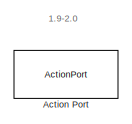
[diagram: If Action Subsystem6/If Action Subsystem2/If Action Subsystem9 - part 1/3, top center region]
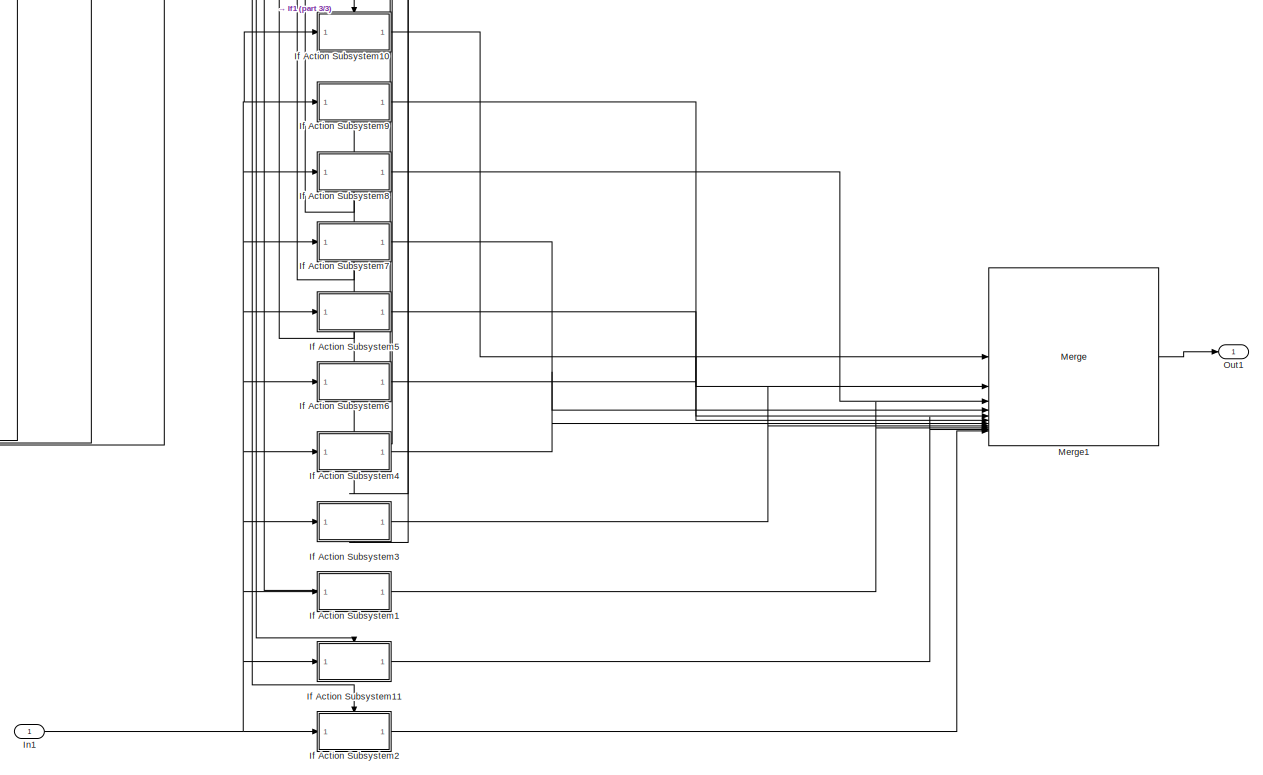
[diagram: If Action Subsystem6/If Action Subsystem2/If Action Subsystem9 - part 2/3, middle right region]
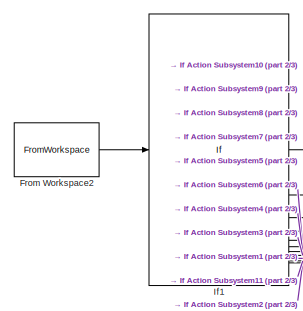
[diagram: If Action Subsystem6/If Action Subsystem2/If Action Subsystem9 - part 3/3, middle left region]
BLOCK [SubSystem] If Action Subsystem6/If Action Subsystem2/If Action Subsystem9
  TreatAsAtomicUnit = on
BLOCK [ActionPort] If Action Subsystem6/If Action Subsystem2/If Action Subsystem9/Action Port
  ActionPortLabel = if(u1 >= 1.895)
BLOCK [FromWorkspace] If Action Subsystem6/If Action Subsystem2/If Action Subsystem9/From Workspace2
  Interpolate = off
  OutputAfterFinalValue = Setting to zero
  VariableName = SimInputHR
BLOCK [SubSystem] If Action Subsystem6/If Action Subsystem2/If Action Subsystem9/If Action Subsystem1
  TreatAsAtomicUnit = on
BLOCK [ActionPort] If Action Subsystem6/If Action Subsystem2/If Action Subsystem9/If Action Subsystem1/Action Port
  ActionPortLabel = elseif( u1 >= 1.915)
BLOCK [Inport] If Action Subsystem6/If Action Subsystem2/If Action Subsystem9/If Action Subsystem1/In1
BLOCK [Lookup_n-D] If Action Subsystem6/If Action Subsystem2/If Action Subsystem9/If Action Subsystem1/LUT 1.92RR
  BreakpointsForDimension1 = [404.7876;540.8206;633.9575;726.1135;817.552;908.4902;999.0755;1089.407;1179.553;1269.559;1359.459;1449.276;1539.029;1628.729;1718.387;1808.011;1897.606]
  InputPortMap = u0
  InternalRulePriority = Speed
  NumberOfTableDimensions = 1
  RndMeth = Simplest
  Table = [400;500;600;700;800;900;1000;1100;1200;1300;1400;1500;1600;1700;1800;1900;2000]
BLOCK [Outport] If Action Subsystem6/If Action Subsystem2/If Action Subsystem9/If Action Subsystem1/Out1
BLOCK [SubSystem] If Action Subsystem6/If Action Subsystem2/If Action Subsystem9/If Action Subsystem10
  TreatAsAtomicUnit = on
BLOCK [ActionPort] If Action Subsystem6/If Action Subsystem2/If Action Subsystem9/If Action Subsystem10/Action Port
  ActionPortLabel = if(u1 >= 1.995)
BLOCK [Inport] If Action Subsystem6/If Action Subsystem2/If Action Subsystem9/If Action Subsystem10/In1
BLOCK [Lookup_n-D] If Action Subsystem6/If Action Subsystem2/If Action Subsystem9/If Action Subsystem10/LUT 2.00RR
  BreakpointsForDimension1 = [404.3841;540.3186;633.3836;725.4083;816.6655;907.3828;997.7171;1087.775;1177.629;1267.33;1356.913;1446.406;1535.826;1625.189;1714.506;1803.784;1893.031]
  InputPortMap = u0
  InternalRulePriority = Speed
  NumberOfTableDimensions = 1
  RndMeth = Simplest
  Table = [400;500;600;700;800;900;1000;1100;1200;1300;1400;1500;1600;1700;1800;1900;2000]
BLOCK [Outport] If Action Subsystem6/If Action Subsystem2/If Action Subsystem9/If Action Subsystem10/Out1
BLOCK [SubSystem] If Action Subsystem6/If Action Subsystem2/If Action Subsystem9/If Action Subsystem11
  TreatAsAtomicUnit = on
BLOCK [ActionPort] If Action Subsystem6/If Action Subsystem2/If Action Subsystem9/If Action Subsystem11/Action Port
  ActionPortLabel = elseif( u1 >= 1.905)
BLOCK [Inport] If Action Subsystem6/If Action Subsystem2/If Action Subsystem9/If Action Subsystem11/In1
BLOCK [Lookup_n-D] If Action Subsystem6/If Action Subsystem2/If Action Subsystem9/If Action Subsystem11/LUT 1.91RR
  BreakpointsForDimension1 = [404.8402;540.8879;634.0358;726.2106;817.6743;908.6425;999.2618;1089.63;1179.815;1269.862;1359.804;1449.664;1539.46;1629.205;1718.908;1808.578;1898.219]
  InputPortMap = u0
  InternalRulePriority = Speed
  NumberOfTableDimensions = 1
  RndMeth = Simplest
  Table = [400;500;600;700;800;900;1000;1100;1200;1300;1400;1500;1600;1700;1800;1900;2000]
BLOCK [Outport] If Action Subsystem6/If Action Subsystem2/If Action Subsystem9/If Action Subsystem11/Out1
BLOCK [SubSystem] If Action Subsystem6/If Action Subsystem2/If Action Subsystem9/If Action Subsystem2
  TreatAsAtomicUnit = on
BLOCK [ActionPort] If Action Subsystem6/If Action Subsystem2/If Action Subsystem9/If Action Subsystem2/Action Port
  ActionPortLabel = else
BLOCK [Inport] If Action Subsystem6/If Action Subsystem2/If Action Subsystem9/If Action Subsystem2/In1
BLOCK [Lookup_n-D] If Action Subsystem6/If Action Subsystem2/If Action Subsystem9/If Action Subsystem2/LUT 1.90RR
  BreakpointsForDimension1 = [404.8934;540.9562;634.1157;726.3098;817.7992;908.7982;999.4519;1089.858;1180.082;1270.17;1360.155;1450.058;1539.899;1629.689;1719.438;1809.154;1898.841]
  InputPortMap = u0
  InternalRulePriority = Speed
  NumberOfTableDimensions = 1
  RndMeth = Simplest
  Table = [400;500;600;700;800;900;1000;1100;1200;1300;1400;1500;1600;1700;1800;1900;2000]
BLOCK [Outport] If Action Subsystem6/If Action Subsystem2/If Action Subsystem9/If Action Subsystem2/Out1
BLOCK [SubSystem] If Action Subsystem6/If Action Subsystem2/If Action Subsystem9/If Action Subsystem3
  TreatAsAtomicUnit = on
BLOCK [ActionPort] If Action Subsystem6/If Action Subsystem2/If Action Subsystem9/If Action Subsystem3/Action Port
  ActionPortLabel = elseif( u1 >= 1.925)
BLOCK [Inport] If Action Subsystem6/If Action Subsystem2/If Action Subsystem9/If Action Subsystem3/In1
BLOCK [Lookup_n-D] If Action Subsystem6/If Action Subsystem2/If Action Subsystem9/If Action Subsystem3/LUT 1.93RR
  BreakpointsForDimension1 = [404.7354;540.7544;633.8807;726.0185;817.4325;908.341;998.8931;1089.189;1179.296;1269.262;1359.121;1448.895;1538.604;1628.261;1717.874;1807.453;1897.003]
  InputPortMap = u0
  InternalRulePriority = Speed
  NumberOfTableDimensions = 1
  RndMeth = Simplest
  Table = [400;500;600;700;800;900;1000;1100;1200;1300;1400;1500;1600;1700;1800;1900;2000]
BLOCK [Outport] If Action Subsystem6/If Action Subsystem2/If Action Subsystem9/If Action Subsystem3/Out1
BLOCK [SubSystem] If Action Subsystem6/If Action Subsystem2/If Action Subsystem9/If Action Subsystem4
  TreatAsAtomicUnit = on
BLOCK [ActionPort] If Action Subsystem6/If Action Subsystem2/If Action Subsystem9/If Action Subsystem4/Action Port
  ActionPortLabel = elseif( u1 >= 1.935)
BLOCK [Inport] If Action Subsystem6/If Action Subsystem2/If Action Subsystem9/If Action Subsystem4/In1
BLOCK [Lookup_n-D] If Action Subsystem6/If Action Subsystem2/If Action Subsystem9/If Action Subsystem4/LUT 1.94RR
  BreakpointsForDimension1 = [404.6838;540.6892;633.8054;725.9255;817.3155;908.1951;998.7144;1088.974;1179.044;1268.97;1358.788;1448.521;1538.187;1627.8;1717.37;1806.904;1896.409]
  InputPortMap = u0
  InternalRulePriority = Speed
  NumberOfTableDimensions = 1
  RndMeth = Simplest
  Table = [400;500;600;700;800;900;1000;1100;1200;1300;1400;1500;1600;1700;1800;1900;2000]
BLOCK [Outport] If Action Subsystem6/If Action Subsystem2/If Action Subsystem9/If Action Subsystem4/Out1
BLOCK [SubSystem] If Action Subsystem6/If Action Subsystem2/If Action Subsystem9/If Action Subsystem5
  TreatAsAtomicUnit = on
BLOCK [ActionPort] If Action Subsystem6/If Action Subsystem2/If Action Subsystem9/If Action Subsystem5/Action Port
  ActionPortLabel = elseif( u1 >= 1.955)
BLOCK [Inport] If Action Subsystem6/If Action Subsystem2/If Action Subsystem9/If Action Subsystem5/In1
BLOCK [Lookup_n-D] If Action Subsystem6/If Action Subsystem2/If Action Subsystem9/If Action Subsystem5/LUT 1.96RR
  BreakpointsForDimension1 = [404.582;540.5618;633.6592;725.7455;817.0891;907.9124;998.3679;1088.558;1178.554;1268.403;1358.141;1447.791;1537.374;1626.901;1716.384;1805.831;1895.248]
  InputPortMap = u0
  InternalRulePriority = Speed
  NumberOfTableDimensions = 1
  RndMeth = Simplest
  Table = [400;500;600;700;800;900;1000;1100;1200;1300;1400;1500;1600;1700;1800;1900;2000]
BLOCK [Outport] If Action Subsystem6/If Action Subsystem2/If Action Subsystem9/If Action Subsystem5/Out1
BLOCK [SubSystem] If Action Subsystem6/If Action Subsystem2/If Action Subsystem9/If Action Subsystem6
  TreatAsAtomicUnit = on
BLOCK [ActionPort] If Action Subsystem6/If Action Subsystem2/If Action Subsystem9/If Action Subsystem6/Action Port
  ActionPortLabel = elseif( u1 >= 1.945)
BLOCK [Inport] If Action Subsystem6/If Action Subsystem2/If Action Subsystem9/If Action Subsystem6/In1
BLOCK [Lookup_n-D] If Action Subsystem6/If Action Subsystem2/If Action Subsystem9/If Action Subsystem6/LUT 1.95RR
  BreakpointsForDimension1 = [404.6326;540.625;633.7316;725.8345;817.201;908.0522;998.5393;1088.764;1178.796;1268.684;1358.461;1448.153;1537.777;1627.347;1716.873;1806.363;1895.824]
  InputPortMap = u0
  InternalRulePriority = Speed
  NumberOfTableDimensions = 1
  RndMeth = Simplest
  Table = [400;500;600;700;800;900;1000;1100;1200;1300;1400;1500;1600;1700;1800;1900;2000]
BLOCK [Outport] If Action Subsystem6/If Action Subsystem2/If Action Subsystem9/If Action Subsystem6/Out1
BLOCK [SubSystem] If Action Subsystem6/If Action Subsystem2/If Action Subsystem9/If Action Subsystem7
  TreatAsAtomicUnit = on
BLOCK [ActionPort] If Action Subsystem6/If Action Subsystem2/If Action Subsystem9/If Action Subsystem7/Action Port
  ActionPortLabel = elseif( u1 >= 1.965)
BLOCK [Inport] If Action Subsystem6/If Action Subsystem2/If Action Subsystem9/If Action Subsystem7/In1
BLOCK [Lookup_n-D] If Action Subsystem6/If Action Subsystem2/If Action Subsystem9/If Action Subsystem7/LUT 1.97RR
  BreakpointsForDimension1 = [404.5318;540.4996;633.5882;725.6584;816.9796;907.7756;998.2001;1088.357;1178.316;1268.127;1357.825;1447.436;1536.977;1626.463;1715.903;1805.307;1894.681]
  InputPortMap = u0
  InternalRulePriority = Speed
  NumberOfTableDimensions = 1
  RndMeth = Simplest
  Table = [400;500;600;700;800;900;1000;1100;1200;1300;1400;1500;1600;1700;1800;1900;2000]
BLOCK [Outport] If Action Subsystem6/If Action Subsystem2/If Action Subsystem9/If Action Subsystem7/Out1
BLOCK [SubSystem] If Action Subsystem6/If Action Subsystem2/If Action Subsystem9/If Action Subsystem8
  TreatAsAtomicUnit = on
BLOCK [ActionPort] If Action Subsystem6/If Action Subsystem2/If Action Subsystem9/If Action Subsystem8/Action Port
  ActionPortLabel = elseif( u1 >= 1.975)
BLOCK [Inport] If Action Subsystem6/If Action Subsystem2/If Action Subsystem9/If Action Subsystem8/In1
BLOCK [Lookup_n-D] If Action Subsystem6/If Action Subsystem2/If Action Subsystem9/If Action Subsystem8/LUT 1.98RR
  BreakpointsForDimension1 = [404.4821;540.4383;633.5187;725.5732;816.8726;907.6418;998.0357;1088.159;1178.082;1267.856;1357.516;1447.086;1536.587;1626.031;1715.43;1804.792;1894.123]
  InputPortMap = u0
  InternalRulePriority = Speed
  NumberOfTableDimensions = 1
  RndMeth = Simplest
  Table = [400;500;600;700;800;900;1000;1100;1200;1300;1400;1500;1600;1700;1800;1900;2000]
BLOCK [Outport] If Action Subsystem6/If Action Subsystem2/If Action Subsystem9/If Action Subsystem8/Out1
BLOCK [SubSystem] If Action Subsystem6/If Action Subsystem2/If Action Subsystem9/If Action Subsystem9
  TreatAsAtomicUnit = on
BLOCK [ActionPort] If Action Subsystem6/If Action Subsystem2/If Action Subsystem9/If Action Subsystem9/Action Port
  ActionPortLabel = elseif(u1 >= 1.985)
BLOCK [Inport] If Action Subsystem6/If Action Subsystem2/If Action Subsystem9/If Action Subsystem9/In1
BLOCK [Lookup_n-D] If Action Subsystem6/If Action Subsystem2/If Action Subsystem9/If Action Subsystem9/LUT 1.99RR
  BreakpointsForDimension1 = [404.4328;540.378;633.4504;725.4899;816.7679;907.5109;997.8747;1087.965;1177.853;1267.59;1357.212;1446.743;1536.203;1625.607;1714.964;1804.284;1893.573]
  InputPortMap = u0
  InternalRulePriority = Speed
  NumberOfTableDimensions = 1
  RndMeth = Simplest
  Table = [400;500;600;700;800;900;1000;1100;1200;1300;1400;1500;1600;1700;1800;1900;2000]
BLOCK [Outport] If Action Subsystem6/If Action Subsystem2/If Action Subsystem9/If Action Subsystem9/Out1
BLOCK [If] If Action Subsystem6/If Action Subsystem2/If Action Subsystem9/If1
  ElseIfExpressions = u1 >= 1.985, u1 >= 1.975, u1 >= 1.965, u1 >= 1.955, u1 >= 1.945, u1 >= 1.935, u1 >= 1.925, u1 >= 1.915, u1 >= 1.905
  IfExpression = u1 >= 1.995
BLOCK [Inport] If Action Subsystem6/If Action Subsystem2/If Action Subsystem9/In1
BLOCK [Merge] If Action Subsystem6/If Action Subsystem2/If Action Subsystem9/Merge1
  Inputs = 11
BLOCK [Outport] If Action Subsystem6/If Action Subsystem2/If Action Subsystem9/Out1
BLOCK [If] If Action Subsystem6/If Action Subsystem2/If1
  ElseIfExpressions = u1 >= 1.795, u1 >= 1.695, u1 >= 1.595
  IfExpression = u1 >= 1.895
BLOCK [Inport] If Action Subsystem6/If Action Subsystem2/In1
BLOCK [Merge] If Action Subsystem6/If Action Subsystem2/Merge1
  Inputs = 5
BLOCK [Outport] If Action Subsystem6/If Action Subsystem2/Out1
BLOCK [SubSystem] If Action Subsystem6/If Action Subsystem3
  TreatAsAtomicUnit = on
BLOCK [ActionPort] If Action Subsystem6/If Action Subsystem3/Action Port
  ActionPortLabel = else
BLOCK [FromWorkspace] If Action Subsystem6/If Action Subsystem3/From Workspace2
  Interpolate = off
  OutputAfterFinalValue = Setting to zero
  VariableName = SimInputHR
BLOCK [SubSystem] If Action Subsystem6/If Action Subsystem3/If Action Subsystem5
  TreatAsAtomicUnit = on
BLOCK [ActionPort] If Action Subsystem6/If Action Subsystem3/If Action Subsystem5/Action Port
  ActionPortLabel = elseif( u1 >= 0595)
BLOCK [FromWorkspace] If Action Subsystem6/If Action Subsystem3/If Action Subsystem5/From Workspace2
  Interpolate = off
  OutputAfterFinalValue = Setting to zero
  VariableName = SimInputHR
BLOCK [SubSystem] If Action Subsystem6/If Action Subsystem3/If Action Subsystem5/If Action Subsystem1
  TreatAsAtomicUnit = on
BLOCK [ActionPort] If Action Subsystem6/If Action Subsystem3/If Action Subsystem5/If Action Subsystem1/Action Port
  ActionPortLabel = elseif( u1 >= 0.615)
BLOCK [Inport] If Action Subsystem6/If Action Subsystem3/If Action Subsystem5/If Action Subsystem1/In1
BLOCK [Lookup_n-D] If Action Subsystem6/If Action Subsystem3/If Action Subsystem5/If Action Subsystem1/LUT 0.62RR
  BreakpointsForDimension1 = [422.6336;583.5736;694.2332;805.1871;916.263;1027.405;1138.585;1249.783;1360.984;1472.171;1583.31;1694.13;1806.172;1917.097;2028.157;2139.213;2250.242]
  InputPortMap = u0
  InternalRulePriority = Speed
  NumberOfTableDimensions = 1
  RndMeth = Simplest
  Table = [400;500;600;700;800;900;1000;1100;1200;1300;1400;1500;1600;1700;1800;1900;2000]
BLOCK [Outport] If Action Subsystem6/If Action Subsystem3/If Action Subsystem5/If Action Subsystem1/Out1
BLOCK [SubSystem] If Action Subsystem6/If Action Subsystem3/If Action Subsystem5/If Action Subsystem10
  TreatAsAtomicUnit = on
BLOCK [ActionPort] If Action Subsystem6/If Action Subsystem3/If Action Subsystem5/If Action Subsystem10/Action Port
  ActionPortLabel = elseif( u1 >= 0.605)
BLOCK [Inport] If Action Subsystem6/If Action Subsystem3/If Action Subsystem5/If Action Subsystem10/In1
BLOCK [Lookup_n-D] If Action Subsystem6/If Action Subsystem3/If Action Subsystem5/If Action Subsystem10/LUT 0.61RR
  BreakpointsForDimension1 = [422.9526;584.7206;695.933;807.4484;919.09;1030.799;1142.546;1254.308;1366.068;1477.806;1589.47;1700.311;1813.447;1924.961;2036.559;2148.143;2259.695]
  InputPortMap = u0
  InternalRulePriority = Speed
  NumberOfTableDimensions = 1
  RndMeth = Simplest
  Table = [400;500;600;700;800;900;1000;1100;1200;1300;1400;1500;1600;1700;1800;1900;2000]
BLOCK [Outport] If Action Subsystem6/If Action Subsystem3/If Action Subsystem5/If Action Subsystem10/Out1
BLOCK [SubSystem] If Action Subsystem6/If Action Subsystem3/If Action Subsystem5/If Action Subsystem2
  TreatAsAtomicUnit = on
BLOCK [ActionPort] If Action Subsystem6/If Action Subsystem3/If Action Subsystem5/If Action Subsystem2/Action Port
  ActionPortLabel = else
BLOCK [Inport] If Action Subsystem6/If Action Subsystem3/If Action Subsystem5/If Action Subsystem2/In1
BLOCK [Lookup_n-D] If Action Subsystem6/If Action Subsystem3/If Action Subsystem5/If Action Subsystem2/LUT 0.6RR
  BreakpointsForDimension1 = [423.273;585.8952;697.6778;809.7724;921.9972;1034.291;1146.621;1258.963;1371.298;1483.599;1595.782;1705.399;1820.947;1933.043;2045.189;2157.312;2269.393]
  InputPortMap = u0
  InternalRulePriority = Speed
  NumberOfTableDimensions = 1
  RndMeth = Simplest
  Table = [400;500;600;700;800;900;1000;1100;1200;1300;1400;1500;1600;1700;1800;1900;2000]
BLOCK [Outport] If Action Subsystem6/If Action Subsystem3/If Action Subsystem5/If Action Subsystem2/Out1
BLOCK [SubSystem] If Action Subsystem6/If Action Subsystem3/If Action Subsystem5/If Action Subsystem3
  TreatAsAtomicUnit = on
BLOCK [ActionPort] If Action Subsystem6/If Action Subsystem3/If Action Subsystem5/If Action Subsystem3/Action Port
  ActionPortLabel = elseif( u1 >= 0.625)
BLOCK [Inport] If Action Subsystem6/If Action Subsystem3/If Action Subsystem5/If Action Subsystem3/In1
BLOCK [Lookup_n-D] If Action Subsystem6/If Action Subsystem3/If Action Subsystem5/If Action Subsystem3/LUT 0.63RR
  BreakpointsForDimension1 = [422.3166;582.4549;692.5789;802.9886;913.5163;1024.109;1134.74;1245.39;1356.046;1466.695;1577.314;1687.781;1799.151;1909.451;2019.985;2130.523;2241.04]
  InputPortMap = u0
  InternalRulePriority = Speed
  NumberOfTableDimensions = 1
  RndMeth = Simplest
  Table = [400;500;600;700;800;900;1000;1100;1200;1300;1400;1500;1600;1700;1800;1900;2000]
BLOCK [Outport] If Action Subsystem6/If Action Subsystem3/If Action Subsystem5/If Action Subsystem3/Out1
BLOCK [SubSystem] If Action Subsystem6/If Action Subsystem3/If Action Subsystem5/If Action Subsystem4
  TreatAsAtomicUnit = on
BLOCK [ActionPort] If Action Subsystem6/If Action Subsystem3/If Action Subsystem5/If Action Subsystem4/Action Port
  ActionPortLabel = elseif( u1 >= 0.635)
BLOCK [Inport] If Action Subsystem6/If Action Subsystem3/If Action Subsystem5/If Action Subsystem4/In1
BLOCK [Lookup_n-D] If Action Subsystem6/If Action Subsystem3/If Action Subsystem5/If Action Subsystem4/LUT 0.64RR
  BreakpointsForDimension1 = [422.0023;581.3647;690.97;800.8527;910.8493;1020.909;1131.007;1241.125;1351.253;1461.377;1571.483;1681.509;1785.582;1902.025;2012.044;2122.075;2232.091]
  InputPortMap = u0
  InternalRulePriority = Speed
  NumberOfTableDimensions = 1
  RndMeth = Simplest
  Table = [400;500;600;700;800;900;1000;1100;1200;1300;1400;1500;1600;1700;1800;1900;2000]
BLOCK [Outport] If Action Subsystem6/If Action Subsystem3/If Action Subsystem5/If Action Subsystem4/Out1
BLOCK [SubSystem] If Action Subsystem6/If Action Subsystem3/If Action Subsystem5/If Action Subsystem5
  TreatAsAtomicUnit = on
BLOCK [ActionPort] If Action Subsystem6/If Action Subsystem3/If Action Subsystem5/If Action Subsystem5/Action Port
  ActionPortLabel = elseif( u1 >= 0.655)
BLOCK [Inport] If Action Subsystem6/If Action Subsystem3/If Action Subsystem5/If Action Subsystem5/In1
BLOCK [Lookup_n-D] If Action Subsystem6/If Action Subsystem3/If Action Subsystem5/If Action Subsystem5/LUT 0.66RR
  BreakpointsForDimension1 = [421.3837;579.27;687.8874;796.7656;905.7496;1014.793;1123.873;1232.976;1342.09;1451.208;1560.321;1669.408;1778.206;1887.823;1996.844;2105.898;2214.945]
  InputPortMap = u0
  InternalRulePriority = Speed
  NumberOfTableDimensions = 1
  RndMeth = Simplest
  Table = [400;500;600;700;800;900;1000;1100;1200;1300;1400;1500;1600;1700;1800;1900;2000]
BLOCK [Outport] If Action Subsystem6/If Action Subsystem3/If Action Subsystem5/If Action Subsystem5/Out1
BLOCK [SubSystem] If Action Subsystem6/If Action Subsystem3/If Action Subsystem5/If Action Subsystem6
  TreatAsAtomicUnit = on
BLOCK [ActionPort] If Action Subsystem6/If Action Subsystem3/If Action Subsystem5/If Action Subsystem6/Action Port
  ActionPortLabel = elseif( u1 >= 0.645)
BLOCK [Inport] If Action Subsystem6/If Action Subsystem3/If Action Subsystem5/If Action Subsystem6/In1
BLOCK [Lookup_n-D] If Action Subsystem6/If Action Subsystem3/If Action Subsystem5/If Action Subsystem6/LUT 0.65RR
  BreakpointsForDimension1 = [421.6912;580.3031;689.4064;798.7787;908.2609;1017.805;1127.386;1236.988;1346.602;1456.216;1565.819;1675.378;1783.464;1894.816;2004.331;2113.868;2223.393]
  InputPortMap = u0
  InternalRulePriority = Speed
  NumberOfTableDimensions = 1
  RndMeth = Simplest
  Table = [400;500;600;700;800;900;1000;1100;1200;1300;1400;1500;1600;1700;1800;1900;2000]
BLOCK [Outport] If Action Subsystem6/If Action Subsystem3/If Action Subsystem5/If Action Subsystem6/Out1
BLOCK [SubSystem] If Action Subsystem6/If Action Subsystem3/If Action Subsystem5/If Action Subsystem7
  TreatAsAtomicUnit = on
BLOCK [ActionPort] If Action Subsystem6/If Action Subsystem3/If Action Subsystem5/If Action Subsystem7/Action Port
  ActionPortLabel = elseif( u1 >= 0.665)
BLOCK [Inport] If Action Subsystem6/If Action Subsystem3/If Action Subsystem5/If Action Subsystem7/In1
BLOCK [Lookup_n-D] If Action Subsystem6/If Action Subsystem3/If Action Subsystem5/If Action Subsystem7/LUT 0.67RR
  BreakpointsForDimension1 = [421.0801;578.2651;686.4124;794.8123;903.3138;1011.873;1120.468;1229.085;1337.715;1446.351;1554.985;1663.605;1772.127;1881.043;1989.578;2098.162;2206.742]
  InputPortMap = u0
  InternalRulePriority = Speed
  NumberOfTableDimensions = 1
  RndMeth = Simplest
  Table = [400;500;600;700;800;900;1000;1100;1200;1300;1400;1500;1600;1700;1800;1900;2000]
BLOCK [Outport] If Action Subsystem6/If Action Subsystem3/If Action Subsystem5/If Action Subsystem7/Out1
BLOCK [SubSystem] If Action Subsystem6/If Action Subsystem3/If Action Subsystem5/If Action Subsystem8
  TreatAsAtomicUnit = on
BLOCK [ActionPort] If Action Subsystem6/If Action Subsystem3/If Action Subsystem5/If Action Subsystem8/Action Port
  ActionPortLabel = elseif(u1 >= 0.675)
BLOCK [Inport] If Action Subsystem6/If Action Subsystem3/If Action Subsystem5/If Action Subsystem8/In1
BLOCK [Lookup_n-D] If Action Subsystem6/If Action Subsystem3/If Action Subsystem5/If Action Subsystem8/LUT 0.68RR
  BreakpointsForDimension1 = [420.7806;577.2879;684.9805;792.9173;900.9516;1009.041;1117.166;1225.313;1333.473;1441.641;1549.809;1657.97;1766.09;1874.481;1982.528;2090.655;2198.779]
  InputPortMap = u0
  InternalRulePriority = Speed
  NumberOfTableDimensions = 1
  RndMeth = Simplest
  Table = [400;500;600;700;800;900;1000;1100;1200;1300;1400;1500;1600;1700;1800;1900;2000]
BLOCK [Outport] If Action Subsystem6/If Action Subsystem3/If Action Subsystem5/If Action Subsystem8/Out1
BLOCK [SubSystem] If Action Subsystem6/If Action Subsystem3/If Action Subsystem5/If Action Subsystem9
  TreatAsAtomicUnit = on
BLOCK [ActionPort] If Action Subsystem6/If Action Subsystem3/If Action Subsystem5/If Action Subsystem9/Action Port
  ActionPortLabel = if(u1 >= 0.685)
BLOCK [Inport] If Action Subsystem6/If Action Subsystem3/If Action Subsystem5/If Action Subsystem9/In1
BLOCK [Lookup_n-D] If Action Subsystem6/If Action Subsystem3/If Action Subsystem5/If Action Subsystem9/LUT 0.69RR
  BreakpointsForDimension1 = [420.4856;576.3379;683.5906;791.0792;898.661;1006.296;1113.964;1221.655;1329.36;1437.073;1544.789;1652.501;1760.195;1862.439;1975.689;2083.371;2191.052]
  InputPortMap = u0
  InternalRulePriority = Speed
  NumberOfTableDimensions = 1
  RndMeth = Simplest
  Table = [400;500;600;700;800;900;1000;1100;1200;1300;1400;1500;1600;1700;1800;1900;2000]
BLOCK [Outport] If Action Subsystem6/If Action Subsystem3/If Action Subsystem5/If Action Subsystem9/Out1
BLOCK [If] If Action Subsystem6/If Action Subsystem3/If Action Subsystem5/If1
  ElseIfExpressions = u1 >= 0.675, u1 >= 0.665, u1 >= 0.655, u1 >= 0.645, u1 >= 0.635, u1 >= 0.625, u1 >= 0.615, u1 >= 0.605
  IfExpression = u1 >= 0.685
BLOCK [Inport] If Action Subsystem6/If Action Subsystem3/If Action Subsystem5/In1
BLOCK [Merge] If Action Subsystem6/If Action Subsystem3/If Action Subsystem5/Merge1
  Inputs = 10
BLOCK [Outport] If Action Subsystem6/If Action Subsystem3/If Action Subsystem5/Out1
BLOCK [SubSystem] If Action Subsystem6/If Action Subsystem3/If Action Subsystem6
  TreatAsAtomicUnit = on
BLOCK [ActionPort] If Action Subsystem6/If Action Subsystem3/If Action Subsystem6/Action Port
  ActionPortLabel = else
BLOCK [FromWorkspace] If Action Subsystem6/If Action Subsystem3/If Action Subsystem6/From Workspace2
  Interpolate = off
  OutputAfterFinalValue = Setting to zero
  VariableName = SimInputHR
BLOCK [SubSystem] If Action Subsystem6/If Action Subsystem3/If Action Subsystem6/If Action Subsystem1
  TreatAsAtomicUnit = on
BLOCK [ActionPort] If Action Subsystem6/If Action Subsystem3/If Action Subsystem6/If Action Subsystem1/Action Port
  ActionPortLabel = elseif( u1 >= 0.515)
BLOCK [Inport] If Action Subsystem6/If Action Subsystem3/If Action Subsystem6/If Action Subsystem1/In1
BLOCK [Lookup_n-D] If Action Subsystem6/If Action Subsystem3/If Action Subsystem6/If Action Subsystem1/LUT 0.52RR
  BreakpointsForDimension1 = [425.7431;596.0299;712.9409;830.2663;947.7614;1065.323;1182.884;1300.384;1417.721;1534.25;1653.44;1770.224;1887.116;2003.896;2120.516;2236.955;2353.2]
  InputPortMap = u0
  InternalRulePriority = Speed
  NumberOfTableDimensions = 1
  RndMeth = Simplest
  Table = [400;500;600;700;800;900;1000;1100;1200;1300;1400;1500;1600;1700;1800;1900;2000]
BLOCK [Outport] If Action Subsystem6/If Action Subsystem3/If Action Subsystem6/If Action Subsystem1/Out1
BLOCK [SubSystem] If Action Subsystem6/If Action Subsystem3/If Action Subsystem6/If Action Subsystem10
  TreatAsAtomicUnit = on
BLOCK [ActionPort] If Action Subsystem6/If Action Subsystem3/If Action Subsystem6/If Action Subsystem10/Action Port
  ActionPortLabel = elseif( u1 >= 0.505)
BLOCK [Inport] If Action Subsystem6/If Action Subsystem3/If Action Subsystem6/If Action Subsystem10/In1
BLOCK [Lookup_n-D] If Action Subsystem6/If Action Subsystem3/If Action Subsystem6/If Action Subsystem10/LUT 0.51RR
  BreakpointsForDimension1 = [426.0152;597.3196;714.917;832.9499;951.1599;1069.435;1187.698;1305.881;1423.854;1540.583;1660.719;1778.215;1895.688;2013.001;2130.113;2247.006;2363.667]
  InputPortMap = u0
  InternalRulePriority = Speed
  NumberOfTableDimensions = 1
  RndMeth = Simplest
  Table = [400;500;600;700;800;900;1000;1100;1200;1300;1400;1500;1600;1700;1800;1900;2000]
BLOCK [Outport] If Action Subsystem6/If Action Subsystem3/If Action Subsystem6/If Action Subsystem10/Out1
BLOCK [SubSystem] If Action Subsystem6/If Action Subsystem3/If Action Subsystem6/If Action Subsystem2
  TreatAsAtomicUnit = on
BLOCK [ActionPort] If Action Subsystem6/If Action Subsystem3/If Action Subsystem6/If Action Subsystem2/Action Port
  ActionPortLabel = else
BLOCK [Inport] If Action Subsystem6/If Action Subsystem3/If Action Subsystem6/If Action Subsystem2/In1
BLOCK [Lookup_n-D] If Action Subsystem6/If Action Subsystem3/If Action Subsystem6/If Action Subsystem2/LUT 0.50RR
  BreakpointsForDimension1 = [426.2724;598.586;716.8671;835.6082;954.5351;1073.524;1192.49;1311.353;1429.951;1547.041;1667.958;1786.098;1904.115;2021.919;2139.477;2256.768;2373.782]
  InputPortMap = u0
  InternalRulePriority = Speed
  NumberOfTableDimensions = 1
  RndMeth = Simplest
  Table = [400;500;600;700;800;900;1000;1100;1200;1300;1400;1500;1600;1700;1800;1900;2000]
BLOCK [Outport] If Action Subsystem6/If Action Subsystem3/If Action Subsystem6/If Action Subsystem2/Out1
BLOCK [SubSystem] If Action Subsystem6/If Action Subsystem3/If Action Subsystem6/If Action Subsystem3
  TreatAsAtomicUnit = on
BLOCK [ActionPort] If Action Subsystem6/If Action Subsystem3/If Action Subsystem6/If Action Subsystem3/Action Port
  ActionPortLabel = elseif( u1 >= 0.525)
BLOCK [Inport] If Action Subsystem6/If Action Subsystem3/If Action Subsystem6/If Action Subsystem3/In1
BLOCK [Lookup_n-D] If Action Subsystem6/If Action Subsystem3/If Action Subsystem6/If Action Subsystem3/LUT 0.53RR
  BreakpointsForDimension1 = [424.9443;594.7286;710.9561;827.5799;944.3669;1061.222;1178.086;1294.904;1411.598;1527.786;1646.232;1762.207;1878.492;1994.71;2110.804;2226.749;2342.533]
  InputPortMap = u0
  InternalRulePriority = Speed
  NumberOfTableDimensions = 1
  RndMeth = Simplest
  Table = [400;500;600;700;800;900;1000;1100;1200;1300;1400;1500;1600;1700;1800;1900;2000]
BLOCK [Outport] If Action Subsystem6/If Action Subsystem3/If Action Subsystem6/If Action Subsystem3/Out1
BLOCK [SubSystem] If Action Subsystem6/If Action Subsystem3/If Action Subsystem6/If Action Subsystem4
  TreatAsAtomicUnit = on
BLOCK [ActionPort] If Action Subsystem6/If Action Subsystem3/If Action Subsystem6/If Action Subsystem4/Action Port
  ActionPortLabel = elseif( u1 >= 0.535)
BLOCK [Inport] If Action Subsystem6/If Action Subsystem3/If Action Subsystem6/If Action Subsystem4/In1
BLOCK [Lookup_n-D] If Action Subsystem6/If Action Subsystem3/If Action Subsystem6/If Action Subsystem4/LUT 0.54RR
  BreakpointsForDimension1 = [425.2839;593.4253;708.9767;824.9086;940.9979;1057.157;1173.331;1289.473;1405.522;1521.245;1639.267;1754.228;1869.886;1985.525;2101.069;2216.493;2331.782]
  InputPortMap = u0
  InternalRulePriority = Speed
  NumberOfTableDimensions = 1
  RndMeth = Simplest
  Table = [400;500;600;700;800;900;1000;1100;1200;1300;1400;1500;1600;1700;1800;1900;2000]
BLOCK [Outport] If Action Subsystem6/If Action Subsystem3/If Action Subsystem6/If Action Subsystem4/Out1
BLOCK [SubSystem] If Action Subsystem6/If Action Subsystem3/If Action Subsystem6/If Action Subsystem5
  TreatAsAtomicUnit = on
BLOCK [ActionPort] If Action Subsystem6/If Action Subsystem3/If Action Subsystem6/If Action Subsystem5/Action Port
  ActionPortLabel = elseif( u1 >= 0.555)
BLOCK [Inport] If Action Subsystem6/If Action Subsystem3/If Action Subsystem6/If Action Subsystem5/In1
BLOCK [Lookup_n-D] If Action Subsystem6/If Action Subsystem3/If Action Subsystem6/If Action Subsystem5/LUT 0.56RR
  BreakpointsForDimension1 = [424.5481;590.8416;705.0753;819.6628;934.3976;1049.203;1164.034;1278.855;1393.626;1508.247;1621.489;1738.584;1852.937;1967.393;2081.803;2196.135;2310.376]
  InputPortMap = u0
  InternalRulePriority = Speed
  NumberOfTableDimensions = 1
  RndMeth = Simplest
  Table = [400;500;600;700;800;900;1000;1100;1200;1300;1400;1500;1600;1700;1800;1900;2000]
BLOCK [Outport] If Action Subsystem6/If Action Subsystem3/If Action Subsystem6/If Action Subsystem5/Out1
BLOCK [SubSystem] If Action Subsystem6/If Action Subsystem3/If Action Subsystem6/If Action Subsystem6
  TreatAsAtomicUnit = on
BLOCK [ActionPort] If Action Subsystem6/If Action Subsystem3/If Action Subsystem6/If Action Subsystem6/Action Port
  ActionPortLabel = elseif( u1 >= 0.545)
BLOCK [Inport] If Action Subsystem6/If Action Subsystem3/If Action Subsystem6/If Action Subsystem6/In1
BLOCK [Lookup_n-D] If Action Subsystem6/If Action Subsystem3/If Action Subsystem6/If Action Subsystem6/LUT 0.55RR
  BreakpointsForDimension1 = [424.8587;592.1276;707.0136;822.2661;937.6706;1053.146;1168.641;1284.117;1399.524;1514.713;1627.08;1746.339;1861.354;1976.403;2091.384;2206.268;2321.04]
  InputPortMap = u0
  InternalRulePriority = Speed
  NumberOfTableDimensions = 1
  RndMeth = Simplest
  Table = [400;500;600;700;800;900;1000;1100;1200;1300;1400;1500;1600;1700;1800;1900;2000]
BLOCK [Outport] If Action Subsystem6/If Action Subsystem3/If Action Subsystem6/If Action Subsystem6/Out1
BLOCK [SubSystem] If Action Subsystem6/If Action Subsystem3/If Action Subsystem6/If Action Subsystem7
  TreatAsAtomicUnit = on
BLOCK [ActionPort] If Action Subsystem6/If Action Subsystem3/If Action Subsystem6/If Action Subsystem7/Action Port
  ActionPortLabel = elseif( u1 >= 0.565)
BLOCK [Inport] If Action Subsystem6/If Action Subsystem3/If Action Subsystem6/If Action Subsystem7/In1
BLOCK [Lookup_n-D] If Action Subsystem6/If Action Subsystem3/If Action Subsystem6/If Action Subsystem7/LUT 0.57RR
  BreakpointsForDimension1 = [424.2327;589.5721;703.1683;817.1068;931.1881;1045.34;1159.521;1273.7;1387.844;1501.884;1615.274;1731.006;1844.668;1958.528;2072.366;2186.143;2299.845]
  InputPortMap = u0
  InternalRulePriority = Speed
  NumberOfTableDimensions = 1
  RndMeth = Simplest
  Table = [400;500;600;700;800;900;1000;1100;1200;1300;1400;1500;1600;1700;1800;1900;2000]
BLOCK [Outport] If Action Subsystem6/If Action Subsystem3/If Action Subsystem6/If Action Subsystem7/Out1
BLOCK [SubSystem] If Action Subsystem6/If Action Subsystem3/If Action Subsystem6/If Action Subsystem8
  TreatAsAtomicUnit = on
BLOCK [ActionPort] If Action Subsystem6/If Action Subsystem3/If Action Subsystem6/If Action Subsystem8/Action Port
  ActionPortLabel = elseif(u1 >= 0.575)
BLOCK [Inport] If Action Subsystem6/If Action Subsystem3/If Action Subsystem6/If Action Subsystem8/In1
BLOCK [Lookup_n-D] If Action Subsystem6/If Action Subsystem3/If Action Subsystem6/If Action Subsystem8/LUT 0.58RR
  BreakpointsForDimension1 = [423.9142;588.3227;701.2975;814.6039;928.0487;1041.564;1155.111;1268.662;1382.19;1495.645;1608.761;1723.669;1836.569;1949.837;2063.105;2176.326;2289.486]
  InputPortMap = u0
  InternalRulePriority = Speed
  NumberOfTableDimensions = 1
  RndMeth = Simplest
  Table = [400;500;600;700;800;900;1000;1100;1200;1300;1400;1500;1600;1700;1800;1900;2000]
BLOCK [Outport] If Action Subsystem6/If Action Subsystem3/If Action Subsystem6/If Action Subsystem8/Out1
BLOCK [SubSystem] If Action Subsystem6/If Action Subsystem3/If Action Subsystem6/If Action Subsystem9
  TreatAsAtomicUnit = on
BLOCK [ActionPort] If Action Subsystem6/If Action Subsystem3/If Action Subsystem6/If Action Subsystem9/Action Port
  ActionPortLabel = if(u1 >= 0.585)
BLOCK [Inport] If Action Subsystem6/If Action Subsystem3/If Action Subsystem6/If Action Subsystem9/In1
BLOCK [Lookup_n-D] If Action Subsystem6/If Action Subsystem3/If Action Subsystem6/If Action Subsystem9/LUT 0.59RR
  BreakpointsForDimension1 = [423.5939;587.0964;699.4665;812.1582;924.9841;1037.88;1150.81;1263.749;1376.673;1489.547;1602.227;1709.092;1828.658;1941.338;2054.041;2166.71;2279.328]
  InputPortMap = u0
  InternalRulePriority = Speed
  NumberOfTableDimensions = 1
  RndMeth = Simplest
  Table = [400;500;600;700;800;900;1000;1100;1200;1300;1400;1500;1600;1700;1800;1900;2000]
BLOCK [Outport] If Action Subsystem6/If Action Subsystem3/If Action Subsystem6/If Action Subsystem9/Out1
BLOCK [If] If Action Subsystem6/If Action Subsystem3/If Action Subsystem6/If1
  ElseIfExpressions = u1 >= 0.575, u1 >= 0.565, u1 >= 0.555, u1 >= 0.545, u1 >= 0.535, u1 >= 0.525, u1 >= 0.515, u1 >= 0.505
  IfExpression = u1 >= 0.585
BLOCK [Inport] If Action Subsystem6/If Action Subsystem3/If Action Subsystem6/In1
BLOCK [Merge] If Action Subsystem6/If Action Subsystem3/If Action Subsystem6/Merge1
  Inputs = 10
BLOCK [Outport] If Action Subsystem6/If Action Subsystem3/If Action Subsystem6/Out1
BLOCK [SubSystem] If Action Subsystem6/If Action Subsystem3/If Action Subsystem7
  TreatAsAtomicUnit = on
BLOCK [ActionPort] If Action Subsystem6/If Action Subsystem3/If Action Subsystem7/Action Port
  ActionPortLabel = elseif( u1 >= 0.695)
BLOCK [FromWorkspace] If Action Subsystem6/If Action Subsystem3/If Action Subsystem7/From Workspace2
  Interpolate = off
  OutputAfterFinalValue = Setting to zero
  VariableName = SimInputHR
BLOCK [SubSystem] If Action Subsystem6/If Action Subsystem3/If Action Subsystem7/If Action Subsystem1
  TreatAsAtomicUnit = on
BLOCK [ActionPort] If Action Subsystem6/If Action Subsystem3/If Action Subsystem7/If Action Subsystem1/Action Port
  ActionPortLabel = elseif( u1 >= 0.715)
BLOCK [Inport] If Action Subsystem6/If Action Subsystem3/If Action Subsystem7/If Action Subsystem1/In1
BLOCK [Lookup_n-D] If Action Subsystem6/If Action Subsystem3/If Action Subsystem7/If Action Subsystem1/LUT 0.72RR
  BreakpointsForDimension1 = [419.6278;573.6455;679.6626;785.8906;892.1983;998.5516;1104.935;1211.338;1317.756;1424.183;1530.616;1637.051;1743.486;1849.909;1956.375;2062.793;2169.214]
  InputPortMap = u0
  InternalRulePriority = Speed
  NumberOfTableDimensions = 1
  RndMeth = Simplest
  Table = [400;500;600;700;800;900;1000;1100;1200;1300;1400;1500;1600;1700;1800;1900;2000]
BLOCK [Outport] If Action Subsystem6/If Action Subsystem3/If Action Subsystem7/If Action Subsystem1/Out1
BLOCK [SubSystem] If Action Subsystem6/If Action Subsystem3/If Action Subsystem7/If Action Subsystem10
  TreatAsAtomicUnit = on
BLOCK [ActionPort] If Action Subsystem6/If Action Subsystem3/If Action Subsystem7/If Action Subsystem10/Action Port
  ActionPortLabel = elseif( u1 >= 0.705)
BLOCK [Inport] If Action Subsystem6/If Action Subsystem3/If Action Subsystem7/If Action Subsystem10/In1
BLOCK [Lookup_n-D] If Action Subsystem6/If Action Subsystem3/If Action Subsystem7/If Action Subsystem10/LUT 0.71RR
  BreakpointsForDimension1 = [419.909;574.5174;680.9328;787.5675;894.2865;1001.054;1107.852;1214.672;1321.506;1428.349;1535.197;1642.046;1748.892;1855.694;1962.619;2069.446;2176.275]
  InputPortMap = u0
  InternalRulePriority = Speed
  NumberOfTableDimensions = 1
  RndMeth = Simplest
  Table = [400;500;600;700;800;900;1000;1100;1200;1300;1400;1500;1600;1700;1800;1900;2000]
BLOCK [Outport] If Action Subsystem6/If Action Subsystem3/If Action Subsystem7/If Action Subsystem10/Out1
BLOCK [SubSystem] If Action Subsystem6/If Action Subsystem3/If Action Subsystem7/If Action Subsystem2
  TreatAsAtomicUnit = on
BLOCK [ActionPort] If Action Subsystem6/If Action Subsystem3/If Action Subsystem7/If Action Subsystem2/Action Port
  ActionPortLabel = else
BLOCK [Inport] If Action Subsystem6/If Action Subsystem3/If Action Subsystem7/If Action Subsystem2/In1
BLOCK [Lookup_n-D] If Action Subsystem6/If Action Subsystem3/If Action Subsystem7/If Action Subsystem2/LUT 0.70RR
  BreakpointsForDimension1 = [420.195;575.4146;682.2417;789.2965;896.4401;1003.634;1110.861;1218.109;1325.372;1432.644;1539.919;1647.194;1754.461;1861.375;1969.055;2076.303;2183.552]
  InputPortMap = u0
  InternalRulePriority = Speed
  NumberOfTableDimensions = 1
  RndMeth = Simplest
  Table = [400;500;600;700;800;900;1000;1100;1200;1300;1400;1500;1600;1700;1800;1900;2000]
BLOCK [Outport] If Action Subsystem6/If Action Subsystem3/If Action Subsystem7/If Action Subsystem2/Out1
BLOCK [SubSystem] If Action Subsystem6/If Action Subsystem3/If Action Subsystem7/If Action Subsystem3
  TreatAsAtomicUnit = on
BLOCK [ActionPort] If Action Subsystem6/If Action Subsystem3/If Action Subsystem7/If Action Subsystem3/Action Port
  ActionPortLabel = elseif( u1 >= 0.725)
BLOCK [Inport] If Action Subsystem6/If Action Subsystem3/If Action Subsystem7/If Action Subsystem3/In1
BLOCK [Lookup_n-D] If Action Subsystem6/If Action Subsystem3/If Action Subsystem7/If Action Subsystem3/LUT 0.73RR
  BreakpointsForDimension1 = [419.3512;572.7984;678.4301;784.2641;890.1733;996.1255;1102.106;1208.106;1314.12;1420.143;1526.173;1632.205;1738.239;1844.269;1950.317;2056.338;2162.36]
  InputPortMap = u0
  InternalRulePriority = Speed
  NumberOfTableDimensions = 1
  RndMeth = Simplest
  Table = [400;500;600;700;800;900;1000;1100;1200;1300;1400;1500;1600;1700;1800;1900;2000]
BLOCK [Outport] If Action Subsystem6/If Action Subsystem3/If Action Subsystem7/If Action Subsystem3/Out1
BLOCK [SubSystem] If Action Subsystem6/If Action Subsystem3/If Action Subsystem7/If Action Subsystem4
  TreatAsAtomicUnit = on
BLOCK [ActionPort] If Action Subsystem6/If Action Subsystem3/If Action Subsystem7/If Action Subsystem4/Action Port
  ActionPortLabel = elseif( u1 >= 0.735)
BLOCK [Inport] If Action Subsystem6/If Action Subsystem3/If Action Subsystem7/If Action Subsystem4/In1
BLOCK [Lookup_n-D] If Action Subsystem6/If Action Subsystem3/If Action Subsystem7/If Action Subsystem4/LUT 0.74RR
  BreakpointsForDimension1 = [419.0794;571.9752;677.234;782.6864;888.2094;993.7726;1099.362;1204.971;1310.593;1416.224;1521.862;1627.503;1733.147;1838.789;1939.661;2050.073;2155.709]
  InputPortMap = u0
  InternalRulePriority = Speed
  NumberOfTableDimensions = 1
  RndMeth = Simplest
  Table = [400;500;600;700;800;900;1000;1100;1200;1300;1400;1500;1600;1700;1800;1900;2000]
BLOCK [Outport] If Action Subsystem6/If Action Subsystem3/If Action Subsystem7/If Action Subsystem4/Out1
BLOCK [SubSystem] If Action Subsystem6/If Action Subsystem3/If Action Subsystem7/If Action Subsystem5
  TreatAsAtomicUnit = on
BLOCK [ActionPort] If Action Subsystem6/If Action Subsystem3/If Action Subsystem7/If Action Subsystem5/Action Port
  ActionPortLabel = elseif( u1 >= 0.755)
BLOCK [Inport] If Action Subsystem6/If Action Subsystem3/If Action Subsystem7/If Action Subsystem5/In1
BLOCK [Lookup_n-D] If Action Subsystem6/If Action Subsystem3/If Action Subsystem7/If Action Subsystem5/LUT 0.76RR
  BreakpointsForDimension1 = [418.5498;570.398;674.9465;779.6711;884.4567;989.2767;1094.12;1198.98;1303.852;1408.734;1513.621;1618.513;1723.407;1828.302;1933.195;2038.092;2142.984]
  InputPortMap = u0
  InternalRulePriority = Speed
  NumberOfTableDimensions = 1
  RndMeth = Simplest
  Table = [400;500;600;700;800;900;1000;1100;1200;1300;1400;1500;1600;1700;1800;1900;2000]
BLOCK [Outport] If Action Subsystem6/If Action Subsystem3/If Action Subsystem7/If Action Subsystem5/Out1
BLOCK [SubSystem] If Action Subsystem6/If Action Subsystem3/If Action Subsystem7/If Action Subsystem6
  TreatAsAtomicUnit = on
BLOCK [ActionPort] If Action Subsystem6/If Action Subsystem3/If Action Subsystem7/If Action Subsystem6/Action Port
  ActionPortLabel = elseif( u1 >= 0.745)
BLOCK [Inport] If Action Subsystem6/If Action Subsystem3/If Action Subsystem7/If Action Subsystem6/In1
BLOCK [Lookup_n-D] If Action Subsystem6/If Action Subsystem3/If Action Subsystem7/If Action Subsystem6/LUT 0.75RR
  BreakpointsForDimension1 = [418.8123;571.1753;676.0732;781.156;886.3045;991.4905;1096.701;1201.93;1307.172;1412.423;1517.68;1622.941;1728.204;1833.468;1938.732;2043.993;2149.252]
  InputPortMap = u0
  InternalRulePriority = Speed
  NumberOfTableDimensions = 1
  RndMeth = Simplest
  Table = [400;500;600;700;800;900;1000;1100;1200;1300;1400;1500;1600;1700;1800;1900;2000]
BLOCK [Outport] If Action Subsystem6/If Action Subsystem3/If Action Subsystem7/If Action Subsystem6/Out1
BLOCK [SubSystem] If Action Subsystem6/If Action Subsystem3/If Action Subsystem7/If Action Subsystem7
  TreatAsAtomicUnit = on
BLOCK [ActionPort] If Action Subsystem6/If Action Subsystem3/If Action Subsystem7/If Action Subsystem7/Action Port
  ActionPortLabel = elseif( u1 >= 0.765)
BLOCK [Inport] If Action Subsystem6/If Action Subsystem3/If Action Subsystem7/If Action Subsystem7/In1
BLOCK [Lookup_n-D] If Action Subsystem6/If Action Subsystem3/If Action Subsystem7/If Action Subsystem7/LUT 0.77RR
  BreakpointsForDimension1 = [418.2921;569.6426;673.8529;778.2303;882.6638;987.1289;1091.615;1196.117;1300.631;1405.153;1509.682;1614.214;1718.749;1823.285;1927.819;2032.366;2136.897]
  InputPortMap = u0
  InternalRulePriority = Speed
  NumberOfTableDimensions = 1
  RndMeth = Simplest
  Table = [400;500;600;700;800;900;1000;1100;1200;1300;1400;1500;1600;1700;1800;1900;2000]
BLOCK [Outport] If Action Subsystem6/If Action Subsystem3/If Action Subsystem7/If Action Subsystem7/Out1
BLOCK [SubSystem] If Action Subsystem6/If Action Subsystem3/If Action Subsystem7/If Action Subsystem8
  TreatAsAtomicUnit = on
BLOCK [ActionPort] If Action Subsystem6/If Action Subsystem3/If Action Subsystem7/If Action Subsystem8/Action Port
  ActionPortLabel = elseif(u1 >= 0.775)
BLOCK [Inport] If Action Subsystem6/If Action Subsystem3/If Action Subsystem7/If Action Subsystem8/In1
BLOCK [Lookup_n-D] If Action Subsystem6/If Action Subsystem3/If Action Subsystem7/If Action Subsystem8/LUT 0.78RR
  BreakpointsForDimension1 = [418.0389;568.9084;672.7912;776.8321;880.9241;985.0446;1089.185;1193.339;1297.504;1401.678;1505.857;1610.041;1714.227;1818.414;1922.598;2026.814;2130.987]
  InputPortMap = u0
  InternalRulePriority = Speed
  NumberOfTableDimensions = 1
  RndMeth = Simplest
  Table = [400;500;600;700;800;900;1000;1100;1200;1300;1400;1500;1600;1700;1800;1900;2000]
BLOCK [Outport] If Action Subsystem6/If Action Subsystem3/If Action Subsystem7/If Action Subsystem8/Out1
BLOCK [SubSystem] If Action Subsystem6/If Action Subsystem3/If Action Subsystem7/If Action Subsystem9
  TreatAsAtomicUnit = on
BLOCK [ActionPort] If Action Subsystem6/If Action Subsystem3/If Action Subsystem7/If Action Subsystem9/Action Port
  ActionPortLabel = if(u1 >= 0.785)
BLOCK [Inport] If Action Subsystem6/If Action Subsystem3/If Action Subsystem7/If Action Subsystem9/In1
BLOCK [Lookup_n-D] If Action Subsystem6/If Action Subsystem3/If Action Subsystem7/If Action Subsystem9/LUT 0.79RR
  BreakpointsForDimension1 = [417.7903;568.1947;671.7604;775.475;879.2356;983.0216;1086.825;1190.642;1294.469;1398.303;1502.144;1605.988;1709.835;1813.682;1917.527;2017.191;2125.247]
  InputPortMap = u0
  InternalRulePriority = Speed
  NumberOfTableDimensions = 1
  RndMeth = Simplest
  Table = [400;500;600;700;800;900;1000;1100;1200;1300;1400;1500;1600;1700;1800;1900;2000]
BLOCK [Outport] If Action Subsystem6/If Action Subsystem3/If Action Subsystem7/If Action Subsystem9/Out1
BLOCK [If] If Action Subsystem6/If Action Subsystem3/If Action Subsystem7/If1
  ElseIfExpressions = u1 >= 0.775, u1 >= 0.765, u1 >= 0.755, u1 >= 0.745, u1 >= 0.735, u1 >= 0.725, u1 >= 0.715, u1 >= 0.705
  IfExpression = u1 >= 0.785
BLOCK [Inport] If Action Subsystem6/If Action Subsystem3/If Action Subsystem7/In1
BLOCK [Merge] If Action Subsystem6/If Action Subsystem3/If Action Subsystem7/Merge1
  Inputs = 10
BLOCK [Outport] If Action Subsystem6/If Action Subsystem3/If Action Subsystem7/Out1
BLOCK [SubSystem] If Action Subsystem6/If Action Subsystem3/If Action Subsystem8
  TreatAsAtomicUnit = on
BLOCK [ActionPort] If Action Subsystem6/If Action Subsystem3/If Action Subsystem8/Action Port
  ActionPortLabel = elseif(u1 >= 0.795)
BLOCK [FromWorkspace] If Action Subsystem6/If Action Subsystem3/If Action Subsystem8/From Workspace2
  Interpolate = off
  OutputAfterFinalValue = Setting to zero
  VariableName = SimInputHR
BLOCK [SubSystem] If Action Subsystem6/If Action Subsystem3/If Action Subsystem8/If Action Subsystem1
  TreatAsAtomicUnit = on
BLOCK [ActionPort] If Action Subsystem6/If Action Subsystem3/If Action Subsystem8/If Action Subsystem1/Action Port
  ActionPortLabel = elseif( u1 >= 0.815)
BLOCK [Inport] If Action Subsystem6/If Action Subsystem3/If Action Subsystem8/If Action Subsystem1/In1
BLOCK [Lookup_n-D] If Action Subsystem6/If Action Subsystem3/If Action Subsystem8/If Action Subsystem1/LUT 0.82RR
  BreakpointsForDimension1 = [417.0711;566.1704;668.8427;771.6361;874.4597;977.2991;1080.15;1183.01;1285.877;1388.751;1491.629;1594.51;1697.393;1800.278;1903.159;2006.015;2109.009]
  InputPortMap = u0
  InternalRulePriority = Speed
  NumberOfTableDimensions = 1
  RndMeth = Simplest
  Table = [400;500;600;700;800;900;1000;1100;1200;1300;1400;1500;1600;1700;1800;1900;2000]
BLOCK [Outport] If Action Subsystem6/If Action Subsystem3/If Action Subsystem8/If Action Subsystem1/Out1
BLOCK [SubSystem] If Action Subsystem6/If Action Subsystem3/If Action Subsystem8/If Action Subsystem10
  TreatAsAtomicUnit = on
BLOCK [ActionPort] If Action Subsystem6/If Action Subsystem3/If Action Subsystem8/If Action Subsystem10/Action Port
  ActionPortLabel = elseif( u1 >= 0.805)
BLOCK [Inport] If Action Subsystem6/If Action Subsystem3/If Action Subsystem8/If Action Subsystem10/In1
BLOCK [Lookup_n-D] If Action Subsystem6/If Action Subsystem3/If Action Subsystem8/If Action Subsystem10/LUT 0.81RR
  BreakpointsForDimension1 = [417.3065;566.8263;669.7871;772.8783;876.0051;979.1509;1082.31;1185.48;1288.659;1391.843;1495.033;1598.227;1701.422;1804.619;1907.813;2010.965;2114.259]
  InputPortMap = u0
  InternalRulePriority = Speed
  NumberOfTableDimensions = 1
  RndMeth = Simplest
  Table = [400;500;600;700;800;900;1000;1100;1200;1300;1400;1500;1600;1700;1800;1900;2000]
BLOCK [Outport] If Action Subsystem6/If Action Subsystem3/If Action Subsystem8/If Action Subsystem10/Out1
BLOCK [SubSystem] If Action Subsystem6/If Action Subsystem3/If Action Subsystem8/If Action Subsystem2
  TreatAsAtomicUnit = on
BLOCK [ActionPort] If Action Subsystem6/If Action Subsystem3/If Action Subsystem8/If Action Subsystem2/Action Port
  ActionPortLabel = else
BLOCK [Inport] If Action Subsystem6/If Action Subsystem3/If Action Subsystem8/If Action Subsystem2/In1
BLOCK [Lookup_n-D] If Action Subsystem6/If Action Subsystem3/If Action Subsystem8/If Action Subsystem2/LUT 0.80RR
  BreakpointsForDimension1 = [417.5462;567.5009;670.7593;774.1575;877.5965;981.0577;1084.535;1188.023;1291.521;1395.026;1498.537;1602.051;1705.568;1809.086;1912.6;2016.004;2119.672]
  InputPortMap = u0
  InternalRulePriority = Speed
  NumberOfTableDimensions = 1
  RndMeth = Simplest
  Table = [400;500;600;700;800;900;1000;1100;1200;1300;1400;1500;1600;1700;1800;1900;2000]
BLOCK [Outport] If Action Subsystem6/If Action Subsystem3/If Action Subsystem8/If Action Subsystem2/Out1
BLOCK [SubSystem] If Action Subsystem6/If Action Subsystem3/If Action Subsystem8/If Action Subsystem3
  TreatAsAtomicUnit = on
BLOCK [ActionPort] If Action Subsystem6/If Action Subsystem3/If Action Subsystem8/If Action Subsystem3/Action Port
  ActionPortLabel = elseif( u1 >= 0.825)
BLOCK [Inport] If Action Subsystem6/If Action Subsystem3/If Action Subsystem8/If Action Subsystem3/In1
BLOCK [Lookup_n-D] If Action Subsystem6/If Action Subsystem3/If Action Subsystem8/If Action Subsystem3/LUT 0.83RR
  BreakpointsForDimension1 = [416.84;565.5324;667.9252;770.4296;872.9586;975.5002;1078.051;1180.61;1283.175;1385.745;1488.32;1590.897;1693.477;1796.057;1898.635;2001.195;2103.941]
  InputPortMap = u0
  InternalRulePriority = Speed
  NumberOfTableDimensions = 1
  RndMeth = Simplest
  Table = [400;500;600;700;800;900;1000;1100;1200;1300;1400;1500;1600;1700;1800;1900;2000]
BLOCK [Outport] If Action Subsystem6/If Action Subsystem3/If Action Subsystem8/If Action Subsystem3/Out1
BLOCK [SubSystem] If Action Subsystem6/If Action Subsystem3/If Action Subsystem8/If Action Subsystem4
  TreatAsAtomicUnit = on
BLOCK [ActionPort] If Action Subsystem6/If Action Subsystem3/If Action Subsystem8/If Action Subsystem4/Action Port
  ActionPortLabel = elseif( u1 >= 0.835)
BLOCK [Inport] If Action Subsystem6/If Action Subsystem3/If Action Subsystem8/If Action Subsystem4/In1
BLOCK [Lookup_n-D] If Action Subsystem6/If Action Subsystem3/If Action Subsystem8/If Action Subsystem4/LUT 0.84RR
  BreakpointsForDimension1 = [416.6131;564.9118;667.0337;769.2574;871.5004;973.7526;1076.012;1178.277;1280.548;1382.824;1485.103;1587.385;1689.669;1791.953;1894.236;1996.504;2095.038]
  InputPortMap = u0
  InternalRulePriority = Speed
  NumberOfTableDimensions = 1
  RndMeth = Simplest
  Table = [400;500;600;700;800;900;1000;1100;1200;1300;1400;1500;1600;1700;1800;1900;2000]
BLOCK [Outport] If Action Subsystem6/If Action Subsystem3/If Action Subsystem8/If Action Subsystem4/Out1
BLOCK [SubSystem] If Action Subsystem6/If Action Subsystem3/If Action Subsystem8/If Action Subsystem5
  TreatAsAtomicUnit = on
BLOCK [ActionPort] If Action Subsystem6/If Action Subsystem3/If Action Subsystem8/If Action Subsystem5/Action Port
  ActionPortLabel = elseif( u1 >= 0.855)
BLOCK [Inport] If Action Subsystem6/If Action Subsystem3/If Action Subsystem8/If Action Subsystem5/In1
BLOCK [Lookup_n-D] If Action Subsystem6/If Action Subsystem3/If Action Subsystem8/If Action Subsystem5/LUT 0.86RR
  BreakpointsForDimension1 = [416.1714;563.7206;665.325;767.0117;868.7065;970.4035;1072.103;1173.806;1275.512;1377.222;1478.933;1580.648;1682.363;1784.079;1885.793;1987.497;2089.104]
  InputPortMap = u0
  InternalRulePriority = Speed
  NumberOfTableDimensions = 1
  RndMeth = Simplest
  Table = [400;500;600;700;800;900;1000;1100;1200;1300;1400;1500;1600;1700;1800;1900;2000]
BLOCK [Outport] If Action Subsystem6/If Action Subsystem3/If Action Subsystem8/If Action Subsystem5/Out1
BLOCK [SubSystem] If Action Subsystem6/If Action Subsystem3/If Action Subsystem8/If Action Subsystem6
  TreatAsAtomicUnit = on
BLOCK [ActionPort] If Action Subsystem6/If Action Subsystem3/If Action Subsystem8/If Action Subsystem6/Action Port
  ActionPortLabel = elseif( u1 >= 0.845)
BLOCK [Inport] If Action Subsystem6/If Action Subsystem3/If Action Subsystem8/If Action Subsystem6/In1
BLOCK [Lookup_n-D] If Action Subsystem6/If Action Subsystem3/If Action Subsystem8/If Action Subsystem6/LUT 0.85RR
  BreakpointsForDimension1 = [416.3902;564.308;666.1672;768.1185;870.0835;972.0542;1074.03;1176.01;1277.995;1379.984;1481.975;1583.97;1685.966;1787.962;1889.956;1991.939;2093.654]
  InputPortMap = u0
  InternalRulePriority = Speed
  NumberOfTableDimensions = 1
  RndMeth = Simplest
  Table = [400;500;600;700;800;900;1000;1100;1200;1300;1400;1500;1600;1700;1800;1900;2000]
BLOCK [Outport] If Action Subsystem6/If Action Subsystem3/If Action Subsystem8/If Action Subsystem6/Out1
BLOCK [SubSystem] If Action Subsystem6/If Action Subsystem3/If Action Subsystem8/If Action Subsystem7
  TreatAsAtomicUnit = on
BLOCK [ActionPort] If Action Subsystem6/If Action Subsystem3/If Action Subsystem8/If Action Subsystem7/Action Port
  ActionPortLabel = elseif( u1 >= 0.865)
BLOCK [Inport] If Action Subsystem6/If Action Subsystem3/If Action Subsystem8/If Action Subsystem7/In1
BLOCK [Lookup_n-D] If Action Subsystem6/If Action Subsystem3/If Action Subsystem8/If Action Subsystem7/LUT 0.87RR
  BreakpointsForDimension1 = [415.9566;563.1488;664.5062;765.9359;867.368;968.7987;1070.23;1171.662;1273.097;1374.535;1475.974;1577.415;1678.857;1780.3;1881.741;1983.174;2084.552]
  InputPortMap = u0
  InternalRulePriority = Speed
  NumberOfTableDimensions = 1
  RndMeth = Simplest
  Table = [400;500;600;700;800;900;1000;1100;1200;1300;1400;1500;1600;1700;1800;1900;2000]
BLOCK [Outport] If Action Subsystem6/If Action Subsystem3/If Action Subsystem8/If Action Subsystem7/Out1
BLOCK [SubSystem] If Action Subsystem6/If Action Subsystem3/If Action Subsystem8/If Action Subsystem8
  TreatAsAtomicUnit = on
BLOCK [ActionPort] If Action Subsystem6/If Action Subsystem3/If Action Subsystem8/If Action Subsystem8/Action Port
  ActionPortLabel = elseif(u1 >= 0.875)
BLOCK [Inport] If Action Subsystem6/If Action Subsystem3/If Action Subsystem8/If Action Subsystem8/In1
BLOCK [Lookup_n-D] If Action Subsystem6/If Action Subsystem3/If Action Subsystem8/If Action Subsystem8/LUT 0.88RR
  BreakpointsForDimension1 = [415.7455;562.5923;663.71;764.89;866.0666;967.2382;1068.408;1169.578;1270.748;1371.921;1473.095;1574.27;1675.446;1776.622;1877.796;1978.964;2080.096]
  InputPortMap = u0
  InternalRulePriority = Speed
  NumberOfTableDimensions = 1
  RndMeth = Simplest
  Table = [400;500;600;700;800;900;1000;1100;1200;1300;1400;1500;1600;1700;1800;1900;2000]
BLOCK [Outport] If Action Subsystem6/If Action Subsystem3/If Action Subsystem8/If Action Subsystem8/Out1
BLOCK [SubSystem] If Action Subsystem6/If Action Subsystem3/If Action Subsystem8/If Action Subsystem9
  TreatAsAtomicUnit = on
BLOCK [ActionPort] If Action Subsystem6/If Action Subsystem3/If Action Subsystem8/If Action Subsystem9/Action Port
  ActionPortLabel = if(u1 >= 0.885)
BLOCK [Inport] If Action Subsystem6/If Action Subsystem3/If Action Subsystem8/If Action Subsystem9/In1
BLOCK [Lookup_n-D] If Action Subsystem6/If Action Subsystem3/If Action Subsystem8/If Action Subsystem9/LUT 0.89RR
  BreakpointsForDimension1 = [415.5383;562.0505;662.9356;763.873;864.8011;965.7205;1066.636;1167.549;1268.463;1369.377;1470.292;1571.208;1672.125;1773.041;1873.956;1974.865;2075.748]
  InputPortMap = u0
  InternalRulePriority = Speed
  NumberOfTableDimensions = 1
  RndMeth = Simplest
  Table = [400;500;600;700;800;900;1000;1100;1200;1300;1400;1500;1600;1700;1800;1900;2000]
BLOCK [Outport] If Action Subsystem6/If Action Subsystem3/If Action Subsystem8/If Action Subsystem9/Out1
BLOCK [If] If Action Subsystem6/If Action Subsystem3/If Action Subsystem8/If1
  ElseIfExpressions = u1 >= 0.875, u1 >= 0.865, u1 >= 0.855, u1 >= 0.845, u1 >= 0.835, u1 >= 0.825, u1 >= 0.815, u1 >= 0.805
  IfExpression = u1 >= 0.885
BLOCK [Inport] If Action Subsystem6/If Action Subsystem3/If Action Subsystem8/In1
BLOCK [Merge] If Action Subsystem6/If Action Subsystem3/If Action Subsystem8/Merge1
  Inputs = 10
BLOCK [Outport] If Action Subsystem6/If Action Subsystem3/If Action Subsystem8/Out1
BLOCK [SubSystem] If Action Subsystem6/If Action Subsystem3/If Action Subsystem9
  TreatAsAtomicUnit = on
BLOCK [ActionPort] If Action Subsystem6/If Action Subsystem3/If Action Subsystem9/Action Port
  ActionPortLabel = if(u1 >= 0.895)
BLOCK [FromWorkspace] If Action Subsystem6/If Action Subsystem3/If Action Subsystem9/From Workspace2
  Interpolate = off
  OutputAfterFinalValue = Setting to zero
  VariableName = SimInputHR
BLOCK [SubSystem] If Action Subsystem6/If Action Subsystem3/If Action Subsystem9/If Action Subsystem1
  TreatAsAtomicUnit = on
BLOCK [ActionPort] If Action Subsystem6/If Action Subsystem3/If Action Subsystem9/If Action Subsystem1/Action Port
  ActionPortLabel = elseif( u1 >= 0.915)
BLOCK [Inport] If Action Subsystem6/If Action Subsystem3/If Action Subsystem9/If Action Subsystem1/In1
BLOCK [Lookup_n-D] If Action Subsystem6/If Action Subsystem3/If Action Subsystem9/If Action Subsystem1/LUT 0.92RR
  BreakpointsForDimension1 = [414.9383;560.5088;660.7364;760.9857;861.2077;961.4098;1061.6;1161.784;1261.964;1362.142;1462.319;1562.496;1662.672;1762.848;1863.022;1963.192;2063.35]
  InputPortMap = u0
  InternalRulePriority = Speed
  NumberOfTableDimensions = 1
  RndMeth = Simplest
  Table = [400;500;600;700;800;900;1000;1100;1200;1300;1400;1500;1600;1700;1800;1900;2000]
BLOCK [Outport] If Action Subsystem6/If Action Subsystem3/If Action Subsystem9/If Action Subsystem1/Out1
BLOCK [SubSystem] If Action Subsystem6/If Action Subsystem3/If Action Subsystem9/If Action Subsystem10
  TreatAsAtomicUnit = on
BLOCK [ActionPort] If Action Subsystem6/If Action Subsystem3/If Action Subsystem9/If Action Subsystem10/Action Port
  ActionPortLabel = elseif( u1 >= 0.905)
BLOCK [Inport] If Action Subsystem6/If Action Subsystem3/If Action Subsystem9/If Action Subsystem10/In1
BLOCK [Lookup_n-D] If Action Subsystem6/If Action Subsystem3/If Action Subsystem9/If Action Subsystem10/LUT 0.91RR
  BreakpointsForDimension1 = [415.1347;561.0092;661.4495;761.9217;862.3728;962.8077;1063.233;1163.654;1264.072;1364.49;1464.907;1565.324;1665.741;1766.157;1866.572;1966.983;2067.378]
  InputPortMap = u0
  InternalRulePriority = Speed
  NumberOfTableDimensions = 1
  RndMeth = Simplest
  Table = [400;500;600;700;800;900;1000;1100;1200;1300;1400;1500;1600;1700;1800;1900;2000]
BLOCK [Outport] If Action Subsystem6/If Action Subsystem3/If Action Subsystem9/If Action Subsystem10/Out1
BLOCK [SubSystem] If Action Subsystem6/If Action Subsystem3/If Action Subsystem9/If Action Subsystem2
  TreatAsAtomicUnit = on
BLOCK [ActionPort] If Action Subsystem6/If Action Subsystem3/If Action Subsystem9/If Action Subsystem2/Action Port
  ActionPortLabel = else
BLOCK [Inport] If Action Subsystem6/If Action Subsystem3/If Action Subsystem9/If Action Subsystem2/In1
BLOCK [Lookup_n-D] If Action Subsystem6/If Action Subsystem3/If Action Subsystem9/If Action Subsystem2/LUT 0.90RR
  BreakpointsForDimension1 = [415.3347;561.523;662.1823;762.8839;863.5702;964.2442;1064.911;1165.575;1266.238;1366.901;1467.563;1568.227;1668.891;1769.554;1870.216;1970.872;2071.51]
  InputPortMap = u0
  InternalRulePriority = Speed
  NumberOfTableDimensions = 1
  RndMeth = Simplest
  Table = [400;500;600;700;800;900;1000;1100;1200;1300;1400;1500;1600;1700;1800;1900;2000]
BLOCK [Outport] If Action Subsystem6/If Action Subsystem3/If Action Subsystem9/If Action Subsystem2/Out1
BLOCK [SubSystem] If Action Subsystem6/If Action Subsystem3/If Action Subsystem9/If Action Subsystem3
  TreatAsAtomicUnit = on
BLOCK [ActionPort] If Action Subsystem6/If Action Subsystem3/If Action Subsystem9/If Action Subsystem3/Action Port
  ActionPortLabel = elseif( u1 >= 0.925)
BLOCK [Inport] If Action Subsystem6/If Action Subsystem3/If Action Subsystem9/If Action Subsystem3/In1
BLOCK [Lookup_n-D] If Action Subsystem6/If Action Subsystem3/If Action Subsystem9/If Action Subsystem3/LUT 0.93RR
  BreakpointsForDimension1 = [414.7452;560.0213;660.0424;760.0748;860.0738;960.0491;1060.01;1159.963;1259.91;1359.855;1459.798;1559.741;1659.683;1759.623;1859.562;1959.498;2059.423]
  InputPortMap = u0
  InternalRulePriority = Speed
  NumberOfTableDimensions = 1
  RndMeth = Simplest
  Table = [400;500;600;700;800;900;1000;1100;1200;1300;1400;1500;1600;1700;1800;1900;2000]
BLOCK [Outport] If Action Subsystem6/If Action Subsystem3/If Action Subsystem9/If Action Subsystem3/Out1
BLOCK [SubSystem] If Action Subsystem6/If Action Subsystem3/If Action Subsystem9/If Action Subsystem4
  TreatAsAtomicUnit = on
BLOCK [ActionPort] If Action Subsystem6/If Action Subsystem3/If Action Subsystem9/If Action Subsystem4/Action Port
  ActionPortLabel = elseif( u1 >= 0.935)
BLOCK [Inport] If Action Subsystem6/If Action Subsystem3/If Action Subsystem9/If Action Subsystem4/In1
BLOCK [Lookup_n-D] If Action Subsystem6/If Action Subsystem3/If Action Subsystem9/If Action Subsystem4/LUT 0.94RR
  BreakpointsForDimension1 = [414.5556;559.5463;659.3669;759.1883;858.9701;958.7244;1058.462;1158.189;1257.91;1357.627;1457.342;1557.056;1656.769;1756.48;1856.19;1955.896;2055.593]
  InputPortMap = u0
  InternalRulePriority = Speed
  NumberOfTableDimensions = 1
  RndMeth = Simplest
  Table = [400;500;600;700;800;900;1000;1100;1200;1300;1400;1500;1600;1700;1800;1900;2000]
BLOCK [Outport] If Action Subsystem6/If Action Subsystem3/If Action Subsystem9/If Action Subsystem4/Out1
BLOCK [SubSystem] If Action Subsystem6/If Action Subsystem3/If Action Subsystem9/If Action Subsystem5
  TreatAsAtomicUnit = on
BLOCK [ActionPort] If Action Subsystem6/If Action Subsystem3/If Action Subsystem9/If Action Subsystem5/Action Port
  ActionPortLabel = elseif( u1 >= 0.955)
BLOCK [Inport] If Action Subsystem6/If Action Subsystem3/If Action Subsystem9/If Action Subsystem5/In1
BLOCK [Lookup_n-D] If Action Subsystem6/If Action Subsystem3/If Action Subsystem9/If Action Subsystem5/LUT 0.96RR
  BreakpointsForDimension1 = [414.1861;558.6322;658.0688;757.4851;856.8494;956.1782;1055.485;1154.778;1254.062;1353.34;1452.615;1551.888;1651.158;1750.427;1849.694;1948.958;2048.215]
  InputPortMap = u0
  InternalRulePriority = Speed
  NumberOfTableDimensions = 1
  RndMeth = Simplest
  Table = [400;500;600;700;800;900;1000;1100;1200;1300;1400;1500;1600;1700;1800;1900;2000]
BLOCK [Outport] If Action Subsystem6/If Action Subsystem3/If Action Subsystem9/If Action Subsystem5/Out1
BLOCK [SubSystem] If Action Subsystem6/If Action Subsystem3/If Action Subsystem9/If Action Subsystem6
  TreatAsAtomicUnit = on
BLOCK [ActionPort] If Action Subsystem6/If Action Subsystem3/If Action Subsystem9/If Action Subsystem6/Action Port
  ActionPortLabel = elseif( u1 >= 0.945)
BLOCK [Inport] If Action Subsystem6/If Action Subsystem3/If Action Subsystem9/If Action Subsystem6/In1
BLOCK [Lookup_n-D] If Action Subsystem6/If Action Subsystem3/If Action Subsystem9/If Action Subsystem6/LUT 0.95RR
  BreakpointsForDimension1 = [414.3693;559.0834;658.7092;758.3253;857.8957;957.4345;1056.954;1156.461;1255.961;1355.456;1454.949;1554.439;1653.928;1753.416;1852.901;1952.384;2051.859]
  InputPortMap = u0
  InternalRulePriority = Speed
  NumberOfTableDimensions = 1
  RndMeth = Simplest
  Table = [400;500;600;700;800;900;1000;1100;1200;1300;1400;1500;1600;1700;1800;1900;2000]
BLOCK [Outport] If Action Subsystem6/If Action Subsystem3/If Action Subsystem9/If Action Subsystem6/Out1
BLOCK [SubSystem] If Action Subsystem6/If Action Subsystem3/If Action Subsystem9/If Action Subsystem7
  TreatAsAtomicUnit = on
BLOCK [ActionPort] If Action Subsystem6/If Action Subsystem3/If Action Subsystem9/If Action Subsystem7/Action Port
  ActionPortLabel = elseif( u1 >= 0.965)
BLOCK [Inport] If Action Subsystem6/If Action Subsystem3/If Action Subsystem9/If Action Subsystem7/In1
BLOCK [Lookup_n-D] If Action Subsystem6/If Action Subsystem3/If Action Subsystem9/If Action Subsystem7/LUT 0.97RR
  BreakpointsForDimension1 = [414.0061;558.1923;657.4451;756.667;855.8305;954.9545;1054.054;1153.137;1252.21;1351.277;1450.34;1549.4;1648.457;1747.513;1846.566;1945.616;2044.66]
  InputPortMap = u0
  InternalRulePriority = Speed
  NumberOfTableDimensions = 1
  RndMeth = Simplest
  Table = [400;500;600;700;800;900;1000;1100;1200;1300;1400;1500;1600;1700;1800;1900;2000]
BLOCK [Outport] If Action Subsystem6/If Action Subsystem3/If Action Subsystem9/If Action Subsystem7/Out1
BLOCK [SubSystem] If Action Subsystem6/If Action Subsystem3/If Action Subsystem9/If Action Subsystem8
  TreatAsAtomicUnit = on
BLOCK [ActionPort] If Action Subsystem6/If Action Subsystem3/If Action Subsystem9/If Action Subsystem8/Action Port
  ActionPortLabel = elseif(u1 >= 0.975)
BLOCK [Inport] If Action Subsystem6/If Action Subsystem3/If Action Subsystem9/If Action Subsystem8/In1
BLOCK [Lookup_n-D] If Action Subsystem6/If Action Subsystem3/If Action Subsystem9/If Action Subsystem8/LUT 0.98RR
  BreakpointsForDimension1 = [413.8292;557.7634;656.8375;755.8701;854.838;953.7622;1052.659;1151.538;1250.406;1349.266;1448.121;1546.973;1645.822;1744.669;1843.514;1942.355;2041.191]
  InputPortMap = u0
  InternalRulePriority = Speed
  NumberOfTableDimensions = 1
  RndMeth = Simplest
  Table = [400;500;600;700;800;900;1000;1100;1200;1300;1400;1500;1600;1700;1800;1900;2000]
BLOCK [Outport] If Action Subsystem6/If Action Subsystem3/If Action Subsystem9/If Action Subsystem8/Out1
BLOCK [SubSystem] If Action Subsystem6/If Action Subsystem3/If Action Subsystem9/If Action Subsystem9
  TreatAsAtomicUnit = on
BLOCK [ActionPort] If Action Subsystem6/If Action Subsystem3/If Action Subsystem9/If Action Subsystem9/Action Port
  ActionPortLabel = if(u1 >= 0.985)
BLOCK [Inport] If Action Subsystem6/If Action Subsystem3/If Action Subsystem9/If Action Subsystem9/In1
BLOCK [Lookup_n-D] If Action Subsystem6/If Action Subsystem3/If Action Subsystem9/If Action Subsystem9/LUT 0.99RR
  BreakpointsForDimension1 = [413.6553;557.3452;656.2457;755.094;853.8711;952.6004;1051.299;1149.979;1248.646;1347.304;1445.957;1544.606;1643.251;1741.894;1840.535;1939.172;2037.805]
  InputPortMap = u0
  InternalRulePriority = Speed
  NumberOfTableDimensions = 1
  RndMeth = Simplest
  Table = [400;500;600;700;800;900;1000;1100;1200;1300;1400;1500;1600;1700;1800;1900;2000]
BLOCK [Outport] If Action Subsystem6/If Action Subsystem3/If Action Subsystem9/If Action Subsystem9/Out1
BLOCK [If] If Action Subsystem6/If Action Subsystem3/If Action Subsystem9/If1
  ElseIfExpressions = u1 >= 0.975, u1 >= 0.965, u1 >= 0.955, u1 >= 0.945, u1 >= 0.935, u1 >= 0.925, u1 >= 0.915, u1 >= 0.905
  IfExpression = u1 >= 0.985
BLOCK [Inport] If Action Subsystem6/If Action Subsystem3/If Action Subsystem9/In2
BLOCK [Merge] If Action Subsystem6/If Action Subsystem3/If Action Subsystem9/Merge1
  Inputs = 10
BLOCK [Outport] If Action Subsystem6/If Action Subsystem3/If Action Subsystem9/Out2
BLOCK [If] If Action Subsystem6/If Action Subsystem3/If1
  ElseIfExpressions = u1 >= 0.795, u1 >= 0.695, u1 >= 0595
  IfExpression = u1 >= 0.895
BLOCK [Inport] If Action Subsystem6/If Action Subsystem3/In1
BLOCK [Merge] If Action Subsystem6/If Action Subsystem3/Merge1
  Inputs = 5
BLOCK [Outport] If Action Subsystem6/If Action Subsystem3/Out1
BLOCK [Inport] If Action Subsystem6/In1
BLOCK [Merge] If Action Subsystem6/Merge
  Inputs = 3
BLOCK [Outport] If Action Subsystem6/Out1
BLOCK [If] If1
  IfExpression = u1 == 0
BLOCK [Merge] Merge1
BLOCK [ToWorkspace] To Workspace
  FixptAsFi = on
  MaxDataPoints = inf
  VariableName = simout
ANNOTATION If Action Subsystem6/If Action Subsystem1/If Action Subsystem5: 1.1-1.19
ANNOTATION If Action Subsystem6/If Action Subsystem1/If Action Subsystem6: 1.0-1.09
ANNOTATION If Action Subsystem6/If Action Subsystem1/If Action Subsystem7: 1.2-1.29
ANNOTATION If Action Subsystem6/If Action Subsystem1/If Action Subsystem8: 1.3-1.39
ANNOTATION If Action Subsystem6/If Action Subsystem1/If Action Subsystem9: 1.4-1.49
ANNOTATION If Action Subsystem6/If Action Subsystem2/If Action Subsystem5: 1.6-1.69
ANNOTATION If Action Subsystem6/If Action Subsystem2/If Action Subsystem6: 1.5-1.59
ANNOTATION If Action Subsystem6/If Action Subsystem2/If Action Subsystem7: 1.7-1.79
ANNOTATION If Action Subsystem6/If Action Subsystem2/If Action Subsystem8: 1.8-1.89
ANNOTATION If Action Subsystem6/If Action Subsystem2/If Action Subsystem9: 1.9-2.0
ANNOTATION If Action Subsystem6/If Action Subsystem3/If Action Subsystem5: 0.6-0.69
ANNOTATION If Action Subsystem6/If Action Subsystem3/If Action Subsystem6: 0.5-0.59
ANNOTATION If Action Subsystem6/If Action Subsystem3/If Action Subsystem7: 0.7-0.79
ANNOTATION If Action Subsystem6/If Action Subsystem3/If Action Subsystem8: 0.8-0.89
ANNOTATION If Action Subsystem6/If Action Subsystem3/If Action Subsystem9: 0.9-0.99
LINE Constant:1 -> If Action Subsystem5:1
LINE From Workspace1:1 -> If1:1
LINE From Workspace:1 -> If Action Subsystem6:1
LINE If Action Subsystem5/In1:1 -> If Action Subsystem5/Out1:1
LINE If Action Subsystem5:1 -> Merge1:1
LINE If Action Subsystem6/From Workspace1:1 -> If Action Subsystem6/If:1
LINE If Action Subsystem6/If Action Subsystem1/From Workspace2:1 -> If Action Subsystem6/If Action Subsystem1/If1:1
LINE If Action Subsystem6/If Action Subsystem1/If Action Subsystem5/From Workspace2:1 -> If Action Subsystem6/If Action Subsystem1/If Action Subsystem5/If1:1
LINE If Action Subsystem6/If Action Subsystem1/If Action Subsystem5/If Action Subsystem1/In1:1 -> If Action Subsystem6/If Action Subsystem1/If Action Subsystem5/If Action Subsystem1/LUT 1.12RR:1
LINE If Action Subsystem6/If Action Subsystem1/If Action Subsystem5/If Action Subsystem1/LUT 1.12RR:1 -> If Action Subsystem6/If Action Subsystem1/If Action Subsystem5/If Action Subsystem1/Out1:1
LINE If Action Subsystem6/If Action Subsystem1/If Action Subsystem5/If Action Subsystem10/In1:1 -> If Action Subsystem6/If Action Subsystem1/If Action Subsystem5/If Action Subsystem10/LUT 1.11RR:1
LINE If Action Subsystem6/If Action Subsystem1/If Action Subsystem5/If Action Subsystem10/LUT 1.11RR:1 -> If Action Subsystem6/If Action Subsystem1/If Action Subsystem5/If Action Subsystem10/Out1:1
LINE If Action Subsystem6/If Action Subsystem1/If Action Subsystem5/If Action Subsystem10:1 -> If Action Subsystem6/If Action Subsystem1/If Action Subsystem5/Merge1:9
LINE If Action Subsystem6/If Action Subsystem1/If Action Subsystem5/If Action Subsystem1:1 -> If Action Subsystem6/If Action Subsystem1/If Action Subsystem5/Merge1:8
LINE If Action Subsystem6/If Action Subsystem1/If Action Subsystem5/If Action Subsystem2/In1:1 -> If Action Subsystem6/If Action Subsystem1/If Action Subsystem5/If Action Subsystem2/LUT 1.10RR:1
LINE If Action Subsystem6/If Action Subsystem1/If Action Subsystem5/If Action Subsystem2/LUT 1.10RR:1 -> If Action Subsystem6/If Action Subsystem1/If Action Subsystem5/If Action Subsystem2/Out1:1
LINE If Action Subsystem6/If Action Subsystem1/If Action Subsystem5/If Action Subsystem2:1 -> If Action Subsystem6/If Action Subsystem1/If Action Subsystem5/Merge1:10
LINE If Action Subsystem6/If Action Subsystem1/If Action Subsystem5/If Action Subsystem3/In1:1 -> If Action Subsystem6/If Action Subsystem1/If Action Subsystem5/If Action Subsystem3/LUT 1.13RR:1
LINE If Action Subsystem6/If Action Subsystem1/If Action Subsystem5/If Action Subsystem3/LUT 1.13RR:1 -> If Action Subsystem6/If Action Subsystem1/If Action Subsystem5/If Action Subsystem3/Out1:1
LINE If Action Subsystem6/If Action Subsystem1/If Action Subsystem5/If Action Subsystem3:1 -> If Action Subsystem6/If Action Subsystem1/If Action Subsystem5/Merge1:7
LINE If Action Subsystem6/If Action Subsystem1/If Action Subsystem5/If Action Subsystem4/In1:1 -> If Action Subsystem6/If Action Subsystem1/If Action Subsystem5/If Action Subsystem4/LUT 1.14RR:1
LINE If Action Subsystem6/If Action Subsystem1/If Action Subsystem5/If Action Subsystem4/LUT 1.14RR:1 -> If Action Subsystem6/If Action Subsystem1/If Action Subsystem5/If Action Subsystem4/Out1:1
LINE If Action Subsystem6/If Action Subsystem1/If Action Subsystem5/If Action Subsystem4:1 -> If Action Subsystem6/If Action Subsystem1/If Action Subsystem5/Merge1:6
LINE If Action Subsystem6/If Action Subsystem1/If Action Subsystem5/If Action Subsystem5/In1:1 -> If Action Subsystem6/If Action Subsystem1/If Action Subsystem5/If Action Subsystem5/LUT 1.16RR:1
LINE If Action Subsystem6/If Action Subsystem1/If Action Subsystem5/If Action Subsystem5/LUT 1.16RR:1 -> If Action Subsystem6/If Action Subsystem1/If Action Subsystem5/If Action Subsystem5/Out1:1
LINE If Action Subsystem6/If Action Subsystem1/If Action Subsystem5/If Action Subsystem5:1 -> If Action Subsystem6/If Action Subsystem1/If Action Subsystem5/Merge1:4
LINE If Action Subsystem6/If Action Subsystem1/If Action Subsystem5/If Action Subsystem6/In1:1 -> If Action Subsystem6/If Action Subsystem1/If Action Subsystem5/If Action Subsystem6/LUT 1.15RR:1
LINE If Action Subsystem6/If Action Subsystem1/If Action Subsystem5/If Action Subsystem6/LUT 1.15RR:1 -> If Action Subsystem6/If Action Subsystem1/If Action Subsystem5/If Action Subsystem6/Out1:1
LINE If Action Subsystem6/If Action Subsystem1/If Action Subsystem5/If Action Subsystem6:1 -> If Action Subsystem6/If Action Subsystem1/If Action Subsystem5/Merge1:5
LINE If Action Subsystem6/If Action Subsystem1/If Action Subsystem5/If Action Subsystem7/In1:1 -> If Action Subsystem6/If Action Subsystem1/If Action Subsystem5/If Action Subsystem7/LUT 1.17RR:1
LINE If Action Subsystem6/If Action Subsystem1/If Action Subsystem5/If Action Subsystem7/LUT 1.17RR:1 -> If Action Subsystem6/If Action Subsystem1/If Action Subsystem5/If Action Subsystem7/Out1:1
LINE If Action Subsystem6/If Action Subsystem1/If Action Subsystem5/If Action Subsystem7:1 -> If Action Subsystem6/If Action Subsystem1/If Action Subsystem5/Merge1:3
LINE If Action Subsystem6/If Action Subsystem1/If Action Subsystem5/If Action Subsystem8/In1:1 -> If Action Subsystem6/If Action Subsystem1/If Action Subsystem5/If Action Subsystem8/LUT 1.18RR:1
LINE If Action Subsystem6/If Action Subsystem1/If Action Subsystem5/If Action Subsystem8/LUT 1.18RR:1 -> If Action Subsystem6/If Action Subsystem1/If Action Subsystem5/If Action Subsystem8/Out1:1
LINE If Action Subsystem6/If Action Subsystem1/If Action Subsystem5/If Action Subsystem8:1 -> If Action Subsystem6/If Action Subsystem1/If Action Subsystem5/Merge1:2
LINE If Action Subsystem6/If Action Subsystem1/If Action Subsystem5/If Action Subsystem9/In1:1 -> If Action Subsystem6/If Action Subsystem1/If Action Subsystem5/If Action Subsystem9/LUT 1.19RR:1
LINE If Action Subsystem6/If Action Subsystem1/If Action Subsystem5/If Action Subsystem9/LUT 1.19RR:1 -> If Action Subsystem6/If Action Subsystem1/If Action Subsystem5/If Action Subsystem9/Out1:1
LINE If Action Subsystem6/If Action Subsystem1/If Action Subsystem5/If Action Subsystem9:1 -> If Action Subsystem6/If Action Subsystem1/If Action Subsystem5/Merge1:1
LINE If Action Subsystem6/If Action Subsystem1/If Action Subsystem5/If1:1 -> If Action Subsystem6/If Action Subsystem1/If Action Subsystem5/If Action Subsystem9:ifaction
LINE If Action Subsystem6/If Action Subsystem1/If Action Subsystem5/If1:10 -> If Action Subsystem6/If Action Subsystem1/If Action Subsystem5/If Action Subsystem2:ifaction
LINE If Action Subsystem6/If Action Subsystem1/If Action Subsystem5/If1:2 -> If Action Subsystem6/If Action Subsystem1/If Action Subsystem5/If Action Subsystem8:ifaction
LINE If Action Subsystem6/If Action Subsystem1/If Action Subsystem5/If1:3 -> If Action Subsystem6/If Action Subsystem1/If Action Subsystem5/If Action Subsystem7:ifaction
LINE If Action Subsystem6/If Action Subsystem1/If Action Subsystem5/If1:4 -> If Action Subsystem6/If Action Subsystem1/If Action Subsystem5/If Action Subsystem5:ifaction
LINE If Action Subsystem6/If Action Subsystem1/If Action Subsystem5/If1:5 -> If Action Subsystem6/If Action Subsystem1/If Action Subsystem5/If Action Subsystem6:ifaction
LINE If Action Subsystem6/If Action Subsystem1/If Action Subsystem5/If1:6 -> If Action Subsystem6/If Action Subsystem1/If Action Subsystem5/If Action Subsystem4:ifaction
LINE If Action Subsystem6/If Action Subsystem1/If Action Subsystem5/If1:7 -> If Action Subsystem6/If Action Subsystem1/If Action Subsystem5/If Action Subsystem3:ifaction
LINE If Action Subsystem6/If Action Subsystem1/If Action Subsystem5/If1:8 -> If Action Subsystem6/If Action Subsystem1/If Action Subsystem5/If Action Subsystem1:ifaction
LINE If Action Subsystem6/If Action Subsystem1/If Action Subsystem5/If1:9 -> If Action Subsystem6/If Action Subsystem1/If Action Subsystem5/If Action Subsystem10:ifaction
NET If Action Subsystem6/If Action Subsystem1/If Action Subsystem5/In1:1 -> If Action Subsystem6/If Action Subsystem1/If Action Subsystem5/If Action Subsystem10:1, If Action Subsystem6/If Action Subsystem1/If Action Subsystem5/If Action Subsystem1:1, If Action Subsystem6/If Action Subsystem1/If Action Subsystem5/If Action Subsystem2:1, If Action Subsystem6/If Action Subsystem1/If Action Subsystem5/If Action Subsystem3:1, If Action Subsystem6/If Action Subsystem1/If Action Subsystem5/If Action Subsystem4:1, If Action Subsystem6/If Action Subsystem1/If Action Subsystem5/If Action Subsystem5:1, If Action Subsystem6/If Action Subsystem1/If Action Subsystem5/If Action Subsystem6:1, If Action Subsystem6/If Action Subsystem1/If Action Subsystem5/If Action Subsystem7:1, If Action Subsystem6/If Action Subsystem1/If Action Subsystem5/If Action Subsystem8:1, If Action Subsystem6/If Action Subsystem1/If Action Subsystem5/If Action Subsystem9:1
LINE If Action Subsystem6/If Action Subsystem1/If Action Subsystem5/Merge1:1 -> If Action Subsystem6/If Action Subsystem1/If Action Subsystem5/Out1:1
LINE If Action Subsystem6/If Action Subsystem1/If Action Subsystem5:1 -> If Action Subsystem6/If Action Subsystem1/Merge1:4
LINE If Action Subsystem6/If Action Subsystem1/If Action Subsystem6/From Workspace2:1 -> If Action Subsystem6/If Action Subsystem1/If Action Subsystem6/If1:1
LINE If Action Subsystem6/If Action Subsystem1/If Action Subsystem6/If Action Subsystem1/In1:1 -> If Action Subsystem6/If Action Subsystem1/If Action Subsystem6/If Action Subsystem1/LUT 1.02RR:1
LINE If Action Subsystem6/If Action Subsystem1/If Action Subsystem6/If Action Subsystem1/LUT 1.02RR:1 -> If Action Subsystem6/If Action Subsystem1/If Action Subsystem6/If Action Subsystem1/Out1:1
LINE If Action Subsystem6/If Action Subsystem1/If Action Subsystem6/If Action Subsystem10/In1:1 -> If Action Subsystem6/If Action Subsystem1/If Action Subsystem6/If Action Subsystem10/LUT 1.01RR:1
LINE If Action Subsystem6/If Action Subsystem1/If Action Subsystem6/If Action Subsystem10/LUT 1.01RR:1 -> If Action Subsystem6/If Action Subsystem1/If Action Subsystem6/If Action Subsystem10/Out1:1
LINE If Action Subsystem6/If Action Subsystem1/If Action Subsystem6/If Action Subsystem10:1 -> If Action Subsystem6/If Action Subsystem1/If Action Subsystem6/Merge1:9
LINE If Action Subsystem6/If Action Subsystem1/If Action Subsystem6/If Action Subsystem1:1 -> If Action Subsystem6/If Action Subsystem1/If Action Subsystem6/Merge1:8
LINE If Action Subsystem6/If Action Subsystem1/If Action Subsystem6/If Action Subsystem2/In1:1 -> If Action Subsystem6/If Action Subsystem1/If Action Subsystem6/If Action Subsystem2/LUT 1.00RR:1
LINE If Action Subsystem6/If Action Subsystem1/If Action Subsystem6/If Action Subsystem2/LUT 1.00RR:1 -> If Action Subsystem6/If Action Subsystem1/If Action Subsystem6/If Action Subsystem2/Out1:1
LINE If Action Subsystem6/If Action Subsystem1/If Action Subsystem6/If Action Subsystem2:1 -> If Action Subsystem6/If Action Subsystem1/If Action Subsystem6/Merge1:10
LINE If Action Subsystem6/If Action Subsystem1/If Action Subsystem6/If Action Subsystem3/In1:1 -> If Action Subsystem6/If Action Subsystem1/If Action Subsystem6/If Action Subsystem3/LUT 1.03RR:1
LINE If Action Subsystem6/If Action Subsystem1/If Action Subsystem6/If Action Subsystem3/LUT 1.03RR:1 -> If Action Subsystem6/If Action Subsystem1/If Action Subsystem6/If Action Subsystem3/Out1:1
LINE If Action Subsystem6/If Action Subsystem1/If Action Subsystem6/If Action Subsystem3:1 -> If Action Subsystem6/If Action Subsystem1/If Action Subsystem6/Merge1:7
LINE If Action Subsystem6/If Action Subsystem1/If Action Subsystem6/If Action Subsystem4/In1:1 -> If Action Subsystem6/If Action Subsystem1/If Action Subsystem6/If Action Subsystem4/LUT 1.04RR:1
LINE If Action Subsystem6/If Action Subsystem1/If Action Subsystem6/If Action Subsystem4/LUT 1.04RR:1 -> If Action Subsystem6/If Action Subsystem1/If Action Subsystem6/If Action Subsystem4/Out1:1
LINE If Action Subsystem6/If Action Subsystem1/If Action Subsystem6/If Action Subsystem4:1 -> If Action Subsystem6/If Action Subsystem1/If Action Subsystem6/Merge1:6
LINE If Action Subsystem6/If Action Subsystem1/If Action Subsystem6/If Action Subsystem5/In1:1 -> If Action Subsystem6/If Action Subsystem1/If Action Subsystem6/If Action Subsystem5/LUT 1.06RR:1
LINE If Action Subsystem6/If Action Subsystem1/If Action Subsystem6/If Action Subsystem5/LUT 1.06RR:1 -> If Action Subsystem6/If Action Subsystem1/If Action Subsystem6/If Action Subsystem5/Out1:1
LINE If Action Subsystem6/If Action Subsystem1/If Action Subsystem6/If Action Subsystem5:1 -> If Action Subsystem6/If Action Subsystem1/If Action Subsystem6/Merge1:4
LINE If Action Subsystem6/If Action Subsystem1/If Action Subsystem6/If Action Subsystem6/In1:1 -> If Action Subsystem6/If Action Subsystem1/If Action Subsystem6/If Action Subsystem6/LUT 1.05RR:1
LINE If Action Subsystem6/If Action Subsystem1/If Action Subsystem6/If Action Subsystem6/LUT 1.05RR:1 -> If Action Subsystem6/If Action Subsystem1/If Action Subsystem6/If Action Subsystem6/Out1:1
LINE If Action Subsystem6/If Action Subsystem1/If Action Subsystem6/If Action Subsystem6:1 -> If Action Subsystem6/If Action Subsystem1/If Action Subsystem6/Merge1:5
LINE If Action Subsystem6/If Action Subsystem1/If Action Subsystem6/If Action Subsystem7/In1:1 -> If Action Subsystem6/If Action Subsystem1/If Action Subsystem6/If Action Subsystem7/LUT 1.07RR:1
LINE If Action Subsystem6/If Action Subsystem1/If Action Subsystem6/If Action Subsystem7/LUT 1.07RR:1 -> If Action Subsystem6/If Action Subsystem1/If Action Subsystem6/If Action Subsystem7/Out1:1
LINE If Action Subsystem6/If Action Subsystem1/If Action Subsystem6/If Action Subsystem7:1 -> If Action Subsystem6/If Action Subsystem1/If Action Subsystem6/Merge1:3
LINE If Action Subsystem6/If Action Subsystem1/If Action Subsystem6/If Action Subsystem8/In1:1 -> If Action Subsystem6/If Action Subsystem1/If Action Subsystem6/If Action Subsystem8/LUT 1.08RR:1
LINE If Action Subsystem6/If Action Subsystem1/If Action Subsystem6/If Action Subsystem8/LUT 1.08RR:1 -> If Action Subsystem6/If Action Subsystem1/If Action Subsystem6/If Action Subsystem8/Out1:1
LINE If Action Subsystem6/If Action Subsystem1/If Action Subsystem6/If Action Subsystem8:1 -> If Action Subsystem6/If Action Subsystem1/If Action Subsystem6/Merge1:2
LINE If Action Subsystem6/If Action Subsystem1/If Action Subsystem6/If Action Subsystem9/In1:1 -> If Action Subsystem6/If Action Subsystem1/If Action Subsystem6/If Action Subsystem9/LUT 1.09RR:1
LINE If Action Subsystem6/If Action Subsystem1/If Action Subsystem6/If Action Subsystem9/LUT 1.09RR:1 -> If Action Subsystem6/If Action Subsystem1/If Action Subsystem6/If Action Subsystem9/Out1:1
LINE If Action Subsystem6/If Action Subsystem1/If Action Subsystem6/If Action Subsystem9:1 -> If Action Subsystem6/If Action Subsystem1/If Action Subsystem6/Merge1:1
LINE If Action Subsystem6/If Action Subsystem1/If Action Subsystem6/If1:1 -> If Action Subsystem6/If Action Subsystem1/If Action Subsystem6/If Action Subsystem9:ifaction
LINE If Action Subsystem6/If Action Subsystem1/If Action Subsystem6/If1:10 -> If Action Subsystem6/If Action Subsystem1/If Action Subsystem6/If Action Subsystem2:ifaction
LINE If Action Subsystem6/If Action Subsystem1/If Action Subsystem6/If1:2 -> If Action Subsystem6/If Action Subsystem1/If Action Subsystem6/If Action Subsystem8:ifaction
LINE If Action Subsystem6/If Action Subsystem1/If Action Subsystem6/If1:3 -> If Action Subsystem6/If Action Subsystem1/If Action Subsystem6/If Action Subsystem7:ifaction
LINE If Action Subsystem6/If Action Subsystem1/If Action Subsystem6/If1:4 -> If Action Subsystem6/If Action Subsystem1/If Action Subsystem6/If Action Subsystem5:ifaction
LINE If Action Subsystem6/If Action Subsystem1/If Action Subsystem6/If1:5 -> If Action Subsystem6/If Action Subsystem1/If Action Subsystem6/If Action Subsystem6:ifaction
LINE If Action Subsystem6/If Action Subsystem1/If Action Subsystem6/If1:6 -> If Action Subsystem6/If Action Subsystem1/If Action Subsystem6/If Action Subsystem4:ifaction
LINE If Action Subsystem6/If Action Subsystem1/If Action Subsystem6/If1:7 -> If Action Subsystem6/If Action Subsystem1/If Action Subsystem6/If Action Subsystem3:ifaction
LINE If Action Subsystem6/If Action Subsystem1/If Action Subsystem6/If1:8 -> If Action Subsystem6/If Action Subsystem1/If Action Subsystem6/If Action Subsystem1:ifaction
LINE If Action Subsystem6/If Action Subsystem1/If Action Subsystem6/If1:9 -> If Action Subsystem6/If Action Subsystem1/If Action Subsystem6/If Action Subsystem10:ifaction
NET If Action Subsystem6/If Action Subsystem1/If Action Subsystem6/In1:1 -> If Action Subsystem6/If Action Subsystem1/If Action Subsystem6/If Action Subsystem10:1, If Action Subsystem6/If Action Subsystem1/If Action Subsystem6/If Action Subsystem1:1, If Action Subsystem6/If Action Subsystem1/If Action Subsystem6/If Action Subsystem2:1, If Action Subsystem6/If Action Subsystem1/If Action Subsystem6/If Action Subsystem3:1, If Action Subsystem6/If Action Subsystem1/If Action Subsystem6/If Action Subsystem4:1, If Action Subsystem6/If Action Subsystem1/If Action Subsystem6/If Action Subsystem5:1, If Action Subsystem6/If Action Subsystem1/If Action Subsystem6/If Action Subsystem6:1, If Action Subsystem6/If Action Subsystem1/If Action Subsystem6/If Action Subsystem7:1, If Action Subsystem6/If Action Subsystem1/If Action Subsystem6/If Action Subsystem8:1, If Action Subsystem6/If Action Subsystem1/If Action Subsystem6/If Action Subsystem9:1
LINE If Action Subsystem6/If Action Subsystem1/If Action Subsystem6/Merge1:1 -> If Action Subsystem6/If Action Subsystem1/If Action Subsystem6/Out1:1
LINE If Action Subsystem6/If Action Subsystem1/If Action Subsystem6:1 -> If Action Subsystem6/If Action Subsystem1/Merge1:5
LINE If Action Subsystem6/If Action Subsystem1/If Action Subsystem7/From Workspace2:1 -> If Action Subsystem6/If Action Subsystem1/If Action Subsystem7/If1:1
LINE If Action Subsystem6/If Action Subsystem1/If Action Subsystem7/If Action Subsystem1/In1:1 -> If Action Subsystem6/If Action Subsystem1/If Action Subsystem7/If Action Subsystem1/LUT 1.22RR:1
LINE If Action Subsystem6/If Action Subsystem1/If Action Subsystem7/If Action Subsystem1/LUT 1.22RR:1 -> If Action Subsystem6/If Action Subsystem1/If Action Subsystem7/If Action Subsystem1/Out1:1
LINE If Action Subsystem6/If Action Subsystem1/If Action Subsystem7/If Action Subsystem10/In1:1 -> If Action Subsystem6/If Action Subsystem1/If Action Subsystem7/If Action Subsystem10/LUT 1.21RR:1
LINE If Action Subsystem6/If Action Subsystem1/If Action Subsystem7/If Action Subsystem10/LUT 1.21RR:1 -> If Action Subsystem6/If Action Subsystem1/If Action Subsystem7/If Action Subsystem10/Out1:1
LINE If Action Subsystem6/If Action Subsystem1/If Action Subsystem7/If Action Subsystem10:1 -> If Action Subsystem6/If Action Subsystem1/If Action Subsystem7/Merge1:9
LINE If Action Subsystem6/If Action Subsystem1/If Action Subsystem7/If Action Subsystem1:1 -> If Action Subsystem6/If Action Subsystem1/If Action Subsystem7/Merge1:8
LINE If Action Subsystem6/If Action Subsystem1/If Action Subsystem7/If Action Subsystem2/In1:1 -> If Action Subsystem6/If Action Subsystem1/If Action Subsystem7/If Action Subsystem2/LUT 1.20RR:1
LINE If Action Subsystem6/If Action Subsystem1/If Action Subsystem7/If Action Subsystem2/LUT 1.20RR:1 -> If Action Subsystem6/If Action Subsystem1/If Action Subsystem7/If Action Subsystem2/Out1:1
LINE If Action Subsystem6/If Action Subsystem1/If Action Subsystem7/If Action Subsystem2:1 -> If Action Subsystem6/If Action Subsystem1/If Action Subsystem7/Merge1:10
LINE If Action Subsystem6/If Action Subsystem1/If Action Subsystem7/If Action Subsystem3/In1:1 -> If Action Subsystem6/If Action Subsystem1/If Action Subsystem7/If Action Subsystem3/LUT 1.23RR:1
LINE If Action Subsystem6/If Action Subsystem1/If Action Subsystem7/If Action Subsystem3/LUT 1.23RR:1 -> If Action Subsystem6/If Action Subsystem1/If Action Subsystem7/If Action Subsystem3/Out1:1
LINE If Action Subsystem6/If Action Subsystem1/If Action Subsystem7/If Action Subsystem3:1 -> If Action Subsystem6/If Action Subsystem1/If Action Subsystem7/Merge1:7
LINE If Action Subsystem6/If Action Subsystem1/If Action Subsystem7/If Action Subsystem4/In1:1 -> If Action Subsystem6/If Action Subsystem1/If Action Subsystem7/If Action Subsystem4/LUT 1.24RR:1
LINE If Action Subsystem6/If Action Subsystem1/If Action Subsystem7/If Action Subsystem4/LUT 1.24RR:1 -> If Action Subsystem6/If Action Subsystem1/If Action Subsystem7/If Action Subsystem4/Out1:1
LINE If Action Subsystem6/If Action Subsystem1/If Action Subsystem7/If Action Subsystem4:1 -> If Action Subsystem6/If Action Subsystem1/If Action Subsystem7/Merge1:6
LINE If Action Subsystem6/If Action Subsystem1/If Action Subsystem7/If Action Subsystem5/In1:1 -> If Action Subsystem6/If Action Subsystem1/If Action Subsystem7/If Action Subsystem5/LUT 1.26RR:1
LINE If Action Subsystem6/If Action Subsystem1/If Action Subsystem7/If Action Subsystem5/LUT 1.26RR:1 -> If Action Subsystem6/If Action Subsystem1/If Action Subsystem7/If Action Subsystem5/Out1:1
LINE If Action Subsystem6/If Action Subsystem1/If Action Subsystem7/If Action Subsystem5:1 -> If Action Subsystem6/If Action Subsystem1/If Action Subsystem7/Merge1:4
LINE If Action Subsystem6/If Action Subsystem1/If Action Subsystem7/If Action Subsystem6/In1:1 -> If Action Subsystem6/If Action Subsystem1/If Action Subsystem7/If Action Subsystem6/LUT 1.25RR:1
LINE If Action Subsystem6/If Action Subsystem1/If Action Subsystem7/If Action Subsystem6/LUT 1.25RR:1 -> If Action Subsystem6/If Action Subsystem1/If Action Subsystem7/If Action Subsystem6/Out1:1
LINE If Action Subsystem6/If Action Subsystem1/If Action Subsystem7/If Action Subsystem6:1 -> If Action Subsystem6/If Action Subsystem1/If Action Subsystem7/Merge1:5
LINE If Action Subsystem6/If Action Subsystem1/If Action Subsystem7/If Action Subsystem7/In1:1 -> If Action Subsystem6/If Action Subsystem1/If Action Subsystem7/If Action Subsystem7/LUT 1.27RR:1
LINE If Action Subsystem6/If Action Subsystem1/If Action Subsystem7/If Action Subsystem7/LUT 1.27RR:1 -> If Action Subsystem6/If Action Subsystem1/If Action Subsystem7/If Action Subsystem7/Out1:1
LINE If Action Subsystem6/If Action Subsystem1/If Action Subsystem7/If Action Subsystem7:1 -> If Action Subsystem6/If Action Subsystem1/If Action Subsystem7/Merge1:3
LINE If Action Subsystem6/If Action Subsystem1/If Action Subsystem7/If Action Subsystem8/In1:1 -> If Action Subsystem6/If Action Subsystem1/If Action Subsystem7/If Action Subsystem8/LUT 1.28RR:1
LINE If Action Subsystem6/If Action Subsystem1/If Action Subsystem7/If Action Subsystem8/LUT 1.28RR:1 -> If Action Subsystem6/If Action Subsystem1/If Action Subsystem7/If Action Subsystem8/Out1:1
LINE If Action Subsystem6/If Action Subsystem1/If Action Subsystem7/If Action Subsystem8:1 -> If Action Subsystem6/If Action Subsystem1/If Action Subsystem7/Merge1:2
LINE If Action Subsystem6/If Action Subsystem1/If Action Subsystem7/If Action Subsystem9/In1:1 -> If Action Subsystem6/If Action Subsystem1/If Action Subsystem7/If Action Subsystem9/LUT 1.29RR:1
LINE If Action Subsystem6/If Action Subsystem1/If Action Subsystem7/If Action Subsystem9/LUT 1.29RR:1 -> If Action Subsystem6/If Action Subsystem1/If Action Subsystem7/If Action Subsystem9/Out1:1
LINE If Action Subsystem6/If Action Subsystem1/If Action Subsystem7/If Action Subsystem9:1 -> If Action Subsystem6/If Action Subsystem1/If Action Subsystem7/Merge1:1
LINE If Action Subsystem6/If Action Subsystem1/If Action Subsystem7/If1:1 -> If Action Subsystem6/If Action Subsystem1/If Action Subsystem7/If Action Subsystem9:ifaction
LINE If Action Subsystem6/If Action Subsystem1/If Action Subsystem7/If1:10 -> If Action Subsystem6/If Action Subsystem1/If Action Subsystem7/If Action Subsystem2:ifaction
LINE If Action Subsystem6/If Action Subsystem1/If Action Subsystem7/If1:2 -> If Action Subsystem6/If Action Subsystem1/If Action Subsystem7/If Action Subsystem8:ifaction
LINE If Action Subsystem6/If Action Subsystem1/If Action Subsystem7/If1:3 -> If Action Subsystem6/If Action Subsystem1/If Action Subsystem7/If Action Subsystem7:ifaction
LINE If Action Subsystem6/If Action Subsystem1/If Action Subsystem7/If1:4 -> If Action Subsystem6/If Action Subsystem1/If Action Subsystem7/If Action Subsystem5:ifaction
LINE If Action Subsystem6/If Action Subsystem1/If Action Subsystem7/If1:5 -> If Action Subsystem6/If Action Subsystem1/If Action Subsystem7/If Action Subsystem6:ifaction
LINE If Action Subsystem6/If Action Subsystem1/If Action Subsystem7/If1:6 -> If Action Subsystem6/If Action Subsystem1/If Action Subsystem7/If Action Subsystem4:ifaction
LINE If Action Subsystem6/If Action Subsystem1/If Action Subsystem7/If1:7 -> If Action Subsystem6/If Action Subsystem1/If Action Subsystem7/If Action Subsystem3:ifaction
LINE If Action Subsystem6/If Action Subsystem1/If Action Subsystem7/If1:8 -> If Action Subsystem6/If Action Subsystem1/If Action Subsystem7/If Action Subsystem1:ifaction
LINE If Action Subsystem6/If Action Subsystem1/If Action Subsystem7/If1:9 -> If Action Subsystem6/If Action Subsystem1/If Action Subsystem7/If Action Subsystem10:ifaction
NET If Action Subsystem6/If Action Subsystem1/If Action Subsystem7/In2:1 -> If Action Subsystem6/If Action Subsystem1/If Action Subsystem7/If Action Subsystem10:1, If Action Subsystem6/If Action Subsystem1/If Action Subsystem7/If Action Subsystem1:1, If Action Subsystem6/If Action Subsystem1/If Action Subsystem7/If Action Subsystem2:1, If Action Subsystem6/If Action Subsystem1/If Action Subsystem7/If Action Subsystem3:1, If Action Subsystem6/If Action Subsystem1/If Action Subsystem7/If Action Subsystem4:1, If Action Subsystem6/If Action Subsystem1/If Action Subsystem7/If Action Subsystem5:1, If Action Subsystem6/If Action Subsystem1/If Action Subsystem7/If Action Subsystem6:1, If Action Subsystem6/If Action Subsystem1/If Action Subsystem7/If Action Subsystem7:1, If Action Subsystem6/If Action Subsystem1/If Action Subsystem7/If Action Subsystem8:1, If Action Subsystem6/If Action Subsystem1/If Action Subsystem7/If Action Subsystem9:1
LINE If Action Subsystem6/If Action Subsystem1/If Action Subsystem7/Merge1:1 -> If Action Subsystem6/If Action Subsystem1/If Action Subsystem7/Out2:1
LINE If Action Subsystem6/If Action Subsystem1/If Action Subsystem7:1 -> If Action Subsystem6/If Action Subsystem1/Merge1:3
LINE If Action Subsystem6/If Action Subsystem1/If Action Subsystem8/From Workspace2:1 -> If Action Subsystem6/If Action Subsystem1/If Action Subsystem8/If1:1
LINE If Action Subsystem6/If Action Subsystem1/If Action Subsystem8/If Action Subsystem1/In1:1 -> If Action Subsystem6/If Action Subsystem1/If Action Subsystem8/If Action Subsystem1/LUT 1.32RR:1
LINE If Action Subsystem6/If Action Subsystem1/If Action Subsystem8/If Action Subsystem1/LUT 1.32RR:1 -> If Action Subsystem6/If Action Subsystem1/If Action Subsystem8/If Action Subsystem1/Out1:1
LINE If Action Subsystem6/If Action Subsystem1/If Action Subsystem8/If Action Subsystem10/In1:1 -> If Action Subsystem6/If Action Subsystem1/If Action Subsystem8/If Action Subsystem10/LUT 1.31RR:1
LINE If Action Subsystem6/If Action Subsystem1/If Action Subsystem8/If Action Subsystem10/LUT 1.31RR:1 -> If Action Subsystem6/If Action Subsystem1/If Action Subsystem8/If Action Subsystem10/Out1:1
LINE If Action Subsystem6/If Action Subsystem1/If Action Subsystem8/If Action Subsystem10:1 -> If Action Subsystem6/If Action Subsystem1/If Action Subsystem8/Merge1:9
LINE If Action Subsystem6/If Action Subsystem1/If Action Subsystem8/If Action Subsystem1:1 -> If Action Subsystem6/If Action Subsystem1/If Action Subsystem8/Merge1:8
LINE If Action Subsystem6/If Action Subsystem1/If Action Subsystem8/If Action Subsystem2/In1:1 -> If Action Subsystem6/If Action Subsystem1/If Action Subsystem8/If Action Subsystem2/LUT 1.30RR:1
LINE If Action Subsystem6/If Action Subsystem1/If Action Subsystem8/If Action Subsystem2/LUT 1.30RR:1 -> If Action Subsystem6/If Action Subsystem1/If Action Subsystem8/If Action Subsystem2/Out1:1
LINE If Action Subsystem6/If Action Subsystem1/If Action Subsystem8/If Action Subsystem2:1 -> If Action Subsystem6/If Action Subsystem1/If Action Subsystem8/Merge1:10
LINE If Action Subsystem6/If Action Subsystem1/If Action Subsystem8/If Action Subsystem3/In1:1 -> If Action Subsystem6/If Action Subsystem1/If Action Subsystem8/If Action Subsystem3/LUT 1.33RR:1
LINE If Action Subsystem6/If Action Subsystem1/If Action Subsystem8/If Action Subsystem3/LUT 1.33RR:1 -> If Action Subsystem6/If Action Subsystem1/If Action Subsystem8/If Action Subsystem3/Out1:1
LINE If Action Subsystem6/If Action Subsystem1/If Action Subsystem8/If Action Subsystem3:1 -> If Action Subsystem6/If Action Subsystem1/If Action Subsystem8/Merge1:7
LINE If Action Subsystem6/If Action Subsystem1/If Action Subsystem8/If Action Subsystem4/In1:1 -> If Action Subsystem6/If Action Subsystem1/If Action Subsystem8/If Action Subsystem4/LUT 1.34RR:1
LINE If Action Subsystem6/If Action Subsystem1/If Action Subsystem8/If Action Subsystem4/LUT 1.34RR:1 -> If Action Subsystem6/If Action Subsystem1/If Action Subsystem8/If Action Subsystem4/Out1:1
LINE If Action Subsystem6/If Action Subsystem1/If Action Subsystem8/If Action Subsystem4:1 -> If Action Subsystem6/If Action Subsystem1/If Action Subsystem8/Merge1:6
LINE If Action Subsystem6/If Action Subsystem1/If Action Subsystem8/If Action Subsystem5/In1:1 -> If Action Subsystem6/If Action Subsystem1/If Action Subsystem8/If Action Subsystem5/LUT 1.36RR:1
LINE If Action Subsystem6/If Action Subsystem1/If Action Subsystem8/If Action Subsystem5/LUT 1.36RR:1 -> If Action Subsystem6/If Action Subsystem1/If Action Subsystem8/If Action Subsystem5/Out1:1
LINE If Action Subsystem6/If Action Subsystem1/If Action Subsystem8/If Action Subsystem5:1 -> If Action Subsystem6/If Action Subsystem1/If Action Subsystem8/Merge1:4
LINE If Action Subsystem6/If Action Subsystem1/If Action Subsystem8/If Action Subsystem6/In1:1 -> If Action Subsystem6/If Action Subsystem1/If Action Subsystem8/If Action Subsystem6/LUT 1.35RR:1
LINE If Action Subsystem6/If Action Subsystem1/If Action Subsystem8/If Action Subsystem6/LUT 1.35RR:1 -> If Action Subsystem6/If Action Subsystem1/If Action Subsystem8/If Action Subsystem6/Out1:1
LINE If Action Subsystem6/If Action Subsystem1/If Action Subsystem8/If Action Subsystem6:1 -> If Action Subsystem6/If Action Subsystem1/If Action Subsystem8/Merge1:5
LINE If Action Subsystem6/If Action Subsystem1/If Action Subsystem8/If Action Subsystem7/In1:1 -> If Action Subsystem6/If Action Subsystem1/If Action Subsystem8/If Action Subsystem7/LUT 1.37RR:1
LINE If Action Subsystem6/If Action Subsystem1/If Action Subsystem8/If Action Subsystem7/LUT 1.37RR:1 -> If Action Subsystem6/If Action Subsystem1/If Action Subsystem8/If Action Subsystem7/Out1:1
LINE If Action Subsystem6/If Action Subsystem1/If Action Subsystem8/If Action Subsystem7:1 -> If Action Subsystem6/If Action Subsystem1/If Action Subsystem8/Merge1:3
LINE If Action Subsystem6/If Action Subsystem1/If Action Subsystem8/If Action Subsystem8/In1:1 -> If Action Subsystem6/If Action Subsystem1/If Action Subsystem8/If Action Subsystem8/LUT 1.38RR:1
LINE If Action Subsystem6/If Action Subsystem1/If Action Subsystem8/If Action Subsystem8/LUT 1.38RR:1 -> If Action Subsystem6/If Action Subsystem1/If Action Subsystem8/If Action Subsystem8/Out1:1
LINE If Action Subsystem6/If Action Subsystem1/If Action Subsystem8/If Action Subsystem8:1 -> If Action Subsystem6/If Action Subsystem1/If Action Subsystem8/Merge1:2
LINE If Action Subsystem6/If Action Subsystem1/If Action Subsystem8/If Action Subsystem9/In1:1 -> If Action Subsystem6/If Action Subsystem1/If Action Subsystem8/If Action Subsystem9/LUT 1.39RR:1
LINE If Action Subsystem6/If Action Subsystem1/If Action Subsystem8/If Action Subsystem9/LUT 1.39RR:1 -> If Action Subsystem6/If Action Subsystem1/If Action Subsystem8/If Action Subsystem9/Out1:1
LINE If Action Subsystem6/If Action Subsystem1/If Action Subsystem8/If Action Subsystem9:1 -> If Action Subsystem6/If Action Subsystem1/If Action Subsystem8/Merge1:1
LINE If Action Subsystem6/If Action Subsystem1/If Action Subsystem8/If1:1 -> If Action Subsystem6/If Action Subsystem1/If Action Subsystem8/If Action Subsystem9:ifaction
LINE If Action Subsystem6/If Action Subsystem1/If Action Subsystem8/If1:10 -> If Action Subsystem6/If Action Subsystem1/If Action Subsystem8/If Action Subsystem2:ifaction
LINE If Action Subsystem6/If Action Subsystem1/If Action Subsystem8/If1:2 -> If Action Subsystem6/If Action Subsystem1/If Action Subsystem8/If Action Subsystem8:ifaction
LINE If Action Subsystem6/If Action Subsystem1/If Action Subsystem8/If1:3 -> If Action Subsystem6/If Action Subsystem1/If Action Subsystem8/If Action Subsystem7:ifaction
LINE If Action Subsystem6/If Action Subsystem1/If Action Subsystem8/If1:4 -> If Action Subsystem6/If Action Subsystem1/If Action Subsystem8/If Action Subsystem5:ifaction
LINE If Action Subsystem6/If Action Subsystem1/If Action Subsystem8/If1:5 -> If Action Subsystem6/If Action Subsystem1/If Action Subsystem8/If Action Subsystem6:ifaction
LINE If Action Subsystem6/If Action Subsystem1/If Action Subsystem8/If1:6 -> If Action Subsystem6/If Action Subsystem1/If Action Subsystem8/If Action Subsystem4:ifaction
LINE If Action Subsystem6/If Action Subsystem1/If Action Subsystem8/If1:7 -> If Action Subsystem6/If Action Subsystem1/If Action Subsystem8/If Action Subsystem3:ifaction
LINE If Action Subsystem6/If Action Subsystem1/If Action Subsystem8/If1:8 -> If Action Subsystem6/If Action Subsystem1/If Action Subsystem8/If Action Subsystem1:ifaction
LINE If Action Subsystem6/If Action Subsystem1/If Action Subsystem8/If1:9 -> If Action Subsystem6/If Action Subsystem1/If Action Subsystem8/If Action Subsystem10:ifaction
NET If Action Subsystem6/If Action Subsystem1/If Action Subsystem8/In1:1 -> If Action Subsystem6/If Action Subsystem1/If Action Subsystem8/If Action Subsystem10:1, If Action Subsystem6/If Action Subsystem1/If Action Subsystem8/If Action Subsystem1:1, If Action Subsystem6/If Action Subsystem1/If Action Subsystem8/If Action Subsystem2:1, If Action Subsystem6/If Action Subsystem1/If Action Subsystem8/If Action Subsystem3:1, If Action Subsystem6/If Action Subsystem1/If Action Subsystem8/If Action Subsystem4:1, If Action Subsystem6/If Action Subsystem1/If Action Subsystem8/If Action Subsystem5:1, If Action Subsystem6/If Action Subsystem1/If Action Subsystem8/If Action Subsystem6:1, If Action Subsystem6/If Action Subsystem1/If Action Subsystem8/If Action Subsystem7:1, If Action Subsystem6/If Action Subsystem1/If Action Subsystem8/If Action Subsystem8:1, If Action Subsystem6/If Action Subsystem1/If Action Subsystem8/If Action Subsystem9:1
LINE If Action Subsystem6/If Action Subsystem1/If Action Subsystem8/Merge1:1 -> If Action Subsystem6/If Action Subsystem1/If Action Subsystem8/Out1:1
LINE If Action Subsystem6/If Action Subsystem1/If Action Subsystem8:1 -> If Action Subsystem6/If Action Subsystem1/Merge1:2
LINE If Action Subsystem6/If Action Subsystem1/If Action Subsystem9/From Workspace2:1 -> If Action Subsystem6/If Action Subsystem1/If Action Subsystem9/If1:1
LINE If Action Subsystem6/If Action Subsystem1/If Action Subsystem9/If Action Subsystem1/In1:1 -> If Action Subsystem6/If Action Subsystem1/If Action Subsystem9/If Action Subsystem1/LUT 1.42RR:1
LINE If Action Subsystem6/If Action Subsystem1/If Action Subsystem9/If Action Subsystem1/LUT 1.42RR:1 -> If Action Subsystem6/If Action Subsystem1/If Action Subsystem9/If Action Subsystem1/Out1:1
LINE If Action Subsystem6/If Action Subsystem1/If Action Subsystem9/If Action Subsystem10/In1:1 -> If Action Subsystem6/If Action Subsystem1/If Action Subsystem9/If Action Subsystem10/LUT 1.41RR:1
LINE If Action Subsystem6/If Action Subsystem1/If Action Subsystem9/If Action Subsystem10/LUT 1.41RR:1 -> If Action Subsystem6/If Action Subsystem1/If Action Subsystem9/If Action Subsystem10/Out1:1
LINE If Action Subsystem6/If Action Subsystem1/If Action Subsystem9/If Action Subsystem10:1 -> If Action Subsystem6/If Action Subsystem1/If Action Subsystem9/Merge1:9
LINE If Action Subsystem6/If Action Subsystem1/If Action Subsystem9/If Action Subsystem1:1 -> If Action Subsystem6/If Action Subsystem1/If Action Subsystem9/Merge1:8
LINE If Action Subsystem6/If Action Subsystem1/If Action Subsystem9/If Action Subsystem2/In1:1 -> If Action Subsystem6/If Action Subsystem1/If Action Subsystem9/If Action Subsystem2/LUT 1.40RR:1
LINE If Action Subsystem6/If Action Subsystem1/If Action Subsystem9/If Action Subsystem2/LUT 1.40RR:1 -> If Action Subsystem6/If Action Subsystem1/If Action Subsystem9/If Action Subsystem2/Out1:1
LINE If Action Subsystem6/If Action Subsystem1/If Action Subsystem9/If Action Subsystem2:1 -> If Action Subsystem6/If Action Subsystem1/If Action Subsystem9/Merge1:10
LINE If Action Subsystem6/If Action Subsystem1/If Action Subsystem9/If Action Subsystem3/In1:1 -> If Action Subsystem6/If Action Subsystem1/If Action Subsystem9/If Action Subsystem3/LUT 1.43RR:1
LINE If Action Subsystem6/If Action Subsystem1/If Action Subsystem9/If Action Subsystem3/LUT 1.43RR:1 -> If Action Subsystem6/If Action Subsystem1/If Action Subsystem9/If Action Subsystem3/Out1:1
LINE If Action Subsystem6/If Action Subsystem1/If Action Subsystem9/If Action Subsystem3:1 -> If Action Subsystem6/If Action Subsystem1/If Action Subsystem9/Merge1:7
LINE If Action Subsystem6/If Action Subsystem1/If Action Subsystem9/If Action Subsystem4/In1:1 -> If Action Subsystem6/If Action Subsystem1/If Action Subsystem9/If Action Subsystem4/LUT 1.44RR:1
LINE If Action Subsystem6/If Action Subsystem1/If Action Subsystem9/If Action Subsystem4/LUT 1.44RR:1 -> If Action Subsystem6/If Action Subsystem1/If Action Subsystem9/If Action Subsystem4/Out1:1
LINE If Action Subsystem6/If Action Subsystem1/If Action Subsystem9/If Action Subsystem4:1 -> If Action Subsystem6/If Action Subsystem1/If Action Subsystem9/Merge1:6
LINE If Action Subsystem6/If Action Subsystem1/If Action Subsystem9/If Action Subsystem5/In1:1 -> If Action Subsystem6/If Action Subsystem1/If Action Subsystem9/If Action Subsystem5/LUT 1.46RR:1
LINE If Action Subsystem6/If Action Subsystem1/If Action Subsystem9/If Action Subsystem5/LUT 1.46RR:1 -> If Action Subsystem6/If Action Subsystem1/If Action Subsystem9/If Action Subsystem5/Out1:1
LINE If Action Subsystem6/If Action Subsystem1/If Action Subsystem9/If Action Subsystem5:1 -> If Action Subsystem6/If Action Subsystem1/If Action Subsystem9/Merge1:4
LINE If Action Subsystem6/If Action Subsystem1/If Action Subsystem9/If Action Subsystem6/In1:1 -> If Action Subsystem6/If Action Subsystem1/If Action Subsystem9/If Action Subsystem6/LUT 1.45RR:1
LINE If Action Subsystem6/If Action Subsystem1/If Action Subsystem9/If Action Subsystem6/LUT 1.45RR:1 -> If Action Subsystem6/If Action Subsystem1/If Action Subsystem9/If Action Subsystem6/Out1:1
LINE If Action Subsystem6/If Action Subsystem1/If Action Subsystem9/If Action Subsystem6:1 -> If Action Subsystem6/If Action Subsystem1/If Action Subsystem9/Merge1:5
LINE If Action Subsystem6/If Action Subsystem1/If Action Subsystem9/If Action Subsystem7/In1:1 -> If Action Subsystem6/If Action Subsystem1/If Action Subsystem9/If Action Subsystem7/LUT 1.47RR:1
LINE If Action Subsystem6/If Action Subsystem1/If Action Subsystem9/If Action Subsystem7/LUT 1.47RR:1 -> If Action Subsystem6/If Action Subsystem1/If Action Subsystem9/If Action Subsystem7/Out1:1
LINE If Action Subsystem6/If Action Subsystem1/If Action Subsystem9/If Action Subsystem7:1 -> If Action Subsystem6/If Action Subsystem1/If Action Subsystem9/Merge1:3
LINE If Action Subsystem6/If Action Subsystem1/If Action Subsystem9/If Action Subsystem8/In1:1 -> If Action Subsystem6/If Action Subsystem1/If Action Subsystem9/If Action Subsystem8/LUT 1.48RR:1
LINE If Action Subsystem6/If Action Subsystem1/If Action Subsystem9/If Action Subsystem8/LUT 1.48RR:1 -> If Action Subsystem6/If Action Subsystem1/If Action Subsystem9/If Action Subsystem8/Out1:1
LINE If Action Subsystem6/If Action Subsystem1/If Action Subsystem9/If Action Subsystem8:1 -> If Action Subsystem6/If Action Subsystem1/If Action Subsystem9/Merge1:2
LINE If Action Subsystem6/If Action Subsystem1/If Action Subsystem9/If Action Subsystem9/In1:1 -> If Action Subsystem6/If Action Subsystem1/If Action Subsystem9/If Action Subsystem9/LUT 1.49RR:1
LINE If Action Subsystem6/If Action Subsystem1/If Action Subsystem9/If Action Subsystem9/LUT 1.49RR:1 -> If Action Subsystem6/If Action Subsystem1/If Action Subsystem9/If Action Subsystem9/Out1:1
LINE If Action Subsystem6/If Action Subsystem1/If Action Subsystem9/If Action Subsystem9:1 -> If Action Subsystem6/If Action Subsystem1/If Action Subsystem9/Merge1:1
LINE If Action Subsystem6/If Action Subsystem1/If Action Subsystem9/If1:1 -> If Action Subsystem6/If Action Subsystem1/If Action Subsystem9/If Action Subsystem9:ifaction
LINE If Action Subsystem6/If Action Subsystem1/If Action Subsystem9/If1:10 -> If Action Subsystem6/If Action Subsystem1/If Action Subsystem9/If Action Subsystem2:ifaction
LINE If Action Subsystem6/If Action Subsystem1/If Action Subsystem9/If1:2 -> If Action Subsystem6/If Action Subsystem1/If Action Subsystem9/If Action Subsystem8:ifaction
LINE If Action Subsystem6/If Action Subsystem1/If Action Subsystem9/If1:3 -> If Action Subsystem6/If Action Subsystem1/If Action Subsystem9/If Action Subsystem7:ifaction
LINE If Action Subsystem6/If Action Subsystem1/If Action Subsystem9/If1:4 -> If Action Subsystem6/If Action Subsystem1/If Action Subsystem9/If Action Subsystem5:ifaction
LINE If Action Subsystem6/If Action Subsystem1/If Action Subsystem9/If1:5 -> If Action Subsystem6/If Action Subsystem1/If Action Subsystem9/If Action Subsystem6:ifaction
LINE If Action Subsystem6/If Action Subsystem1/If Action Subsystem9/If1:6 -> If Action Subsystem6/If Action Subsystem1/If Action Subsystem9/If Action Subsystem4:ifaction
LINE If Action Subsystem6/If Action Subsystem1/If Action Subsystem9/If1:7 -> If Action Subsystem6/If Action Subsystem1/If Action Subsystem9/If Action Subsystem3:ifaction
LINE If Action Subsystem6/If Action Subsystem1/If Action Subsystem9/If1:8 -> If Action Subsystem6/If Action Subsystem1/If Action Subsystem9/If Action Subsystem1:ifaction
LINE If Action Subsystem6/If Action Subsystem1/If Action Subsystem9/If1:9 -> If Action Subsystem6/If Action Subsystem1/If Action Subsystem9/If Action Subsystem10:ifaction
NET If Action Subsystem6/If Action Subsystem1/If Action Subsystem9/In1:1 -> If Action Subsystem6/If Action Subsystem1/If Action Subsystem9/If Action Subsystem10:1, If Action Subsystem6/If Action Subsystem1/If Action Subsystem9/If Action Subsystem1:1, If Action Subsystem6/If Action Subsystem1/If Action Subsystem9/If Action Subsystem2:1, If Action Subsystem6/If Action Subsystem1/If Action Subsystem9/If Action Subsystem3:1, If Action Subsystem6/If Action Subsystem1/If Action Subsystem9/If Action Subsystem4:1, If Action Subsystem6/If Action Subsystem1/If Action Subsystem9/If Action Subsystem5:1, If Action Subsystem6/If Action Subsystem1/If Action Subsystem9/If Action Subsystem6:1, If Action Subsystem6/If Action Subsystem1/If Action Subsystem9/If Action Subsystem7:1, If Action Subsystem6/If Action Subsystem1/If Action Subsystem9/If Action Subsystem8:1, If Action Subsystem6/If Action Subsystem1/If Action Subsystem9/If Action Subsystem9:1
LINE If Action Subsystem6/If Action Subsystem1/If Action Subsystem9/Merge1:1 -> If Action Subsystem6/If Action Subsystem1/If Action Subsystem9/Out1:1
LINE If Action Subsystem6/If Action Subsystem1/If Action Subsystem9:1 -> If Action Subsystem6/If Action Subsystem1/Merge1:1
LINE If Action Subsystem6/If Action Subsystem1/If1:1 -> If Action Subsystem6/If Action Subsystem1/If Action Subsystem9:ifaction
LINE If Action Subsystem6/If Action Subsystem1/If1:2 -> If Action Subsystem6/If Action Subsystem1/If Action Subsystem8:ifaction
LINE If Action Subsystem6/If Action Subsystem1/If1:3 -> If Action Subsystem6/If Action Subsystem1/If Action Subsystem7:ifaction
LINE If Action Subsystem6/If Action Subsystem1/If1:4 -> If Action Subsystem6/If Action Subsystem1/If Action Subsystem5:ifaction
LINE If Action Subsystem6/If Action Subsystem1/If1:5 -> If Action Subsystem6/If Action Subsystem1/If Action Subsystem6:ifaction
NET If Action Subsystem6/If Action Subsystem1/In1:1 -> If Action Subsystem6/If Action Subsystem1/If Action Subsystem5:1, If Action Subsystem6/If Action Subsystem1/If Action Subsystem6:1, If Action Subsystem6/If Action Subsystem1/If Action Subsystem7:1, If Action Subsystem6/If Action Subsystem1/If Action Subsystem8:1, If Action Subsystem6/If Action Subsystem1/If Action Subsystem9:1
LINE If Action Subsystem6/If Action Subsystem1/Merge1:1 -> If Action Subsystem6/If Action Subsystem1/Out1:1
LINE If Action Subsystem6/If Action Subsystem1:1 -> If Action Subsystem6/Merge:2
LINE If Action Subsystem6/If Action Subsystem2/From Workspace2:1 -> If Action Subsystem6/If Action Subsystem2/If1:1
LINE If Action Subsystem6/If Action Subsystem2/If Action Subsystem5/From Workspace2:1 -> If Action Subsystem6/If Action Subsystem2/If Action Subsystem5/If1:1
LINE If Action Subsystem6/If Action Subsystem2/If Action Subsystem5/If Action Subsystem1/In1:1 -> If Action Subsystem6/If Action Subsystem2/If Action Subsystem5/If Action Subsystem1/LUT 1.62RR:1
LINE If Action Subsystem6/If Action Subsystem2/If Action Subsystem5/If Action Subsystem1/LUT 1.62RR:1 -> If Action Subsystem6/If Action Subsystem2/If Action Subsystem5/If Action Subsystem1/Out1:1
LINE If Action Subsystem6/If Action Subsystem2/If Action Subsystem5/If Action Subsystem10/In1:1 -> If Action Subsystem6/If Action Subsystem2/If Action Subsystem5/If Action Subsystem10/LUT 1.61RR:1
LINE If Action Subsystem6/If Action Subsystem2/If Action Subsystem5/If Action Subsystem10/LUT 1.61RR:1 -> If Action Subsystem6/If Action Subsystem2/If Action Subsystem5/If Action Subsystem10/Out1:1
LINE If Action Subsystem6/If Action Subsystem2/If Action Subsystem5/If Action Subsystem10:1 -> If Action Subsystem6/If Action Subsystem2/If Action Subsystem5/Merge1:9
LINE If Action Subsystem6/If Action Subsystem2/If Action Subsystem5/If Action Subsystem1:1 -> If Action Subsystem6/If Action Subsystem2/If Action Subsystem5/Merge1:8
LINE If Action Subsystem6/If Action Subsystem2/If Action Subsystem5/If Action Subsystem2/In1:1 -> If Action Subsystem6/If Action Subsystem2/If Action Subsystem5/If Action Subsystem2/LUT 1.60RR:1
LINE If Action Subsystem6/If Action Subsystem2/If Action Subsystem5/If Action Subsystem2/LUT 1.60RR:1 -> If Action Subsystem6/If Action Subsystem2/If Action Subsystem5/If Action Subsystem2/Out1:1
LINE If Action Subsystem6/If Action Subsystem2/If Action Subsystem5/If Action Subsystem2:1 -> If Action Subsystem6/If Action Subsystem2/If Action Subsystem5/Merge1:10
LINE If Action Subsystem6/If Action Subsystem2/If Action Subsystem5/If Action Subsystem3/In1:1 -> If Action Subsystem6/If Action Subsystem2/If Action Subsystem5/If Action Subsystem3/LUT 1.63RR:1
LINE If Action Subsystem6/If Action Subsystem2/If Action Subsystem5/If Action Subsystem3/LUT 1.63RR:1 -> If Action Subsystem6/If Action Subsystem2/If Action Subsystem5/If Action Subsystem3/Out1:1
LINE If Action Subsystem6/If Action Subsystem2/If Action Subsystem5/If Action Subsystem3:1 -> If Action Subsystem6/If Action Subsystem2/If Action Subsystem5/Merge1:7
LINE If Action Subsystem6/If Action Subsystem2/If Action Subsystem5/If Action Subsystem4/In1:1 -> If Action Subsystem6/If Action Subsystem2/If Action Subsystem5/If Action Subsystem4/LUT 1.64RR:1
LINE If Action Subsystem6/If Action Subsystem2/If Action Subsystem5/If Action Subsystem4/LUT 1.64RR:1 -> If Action Subsystem6/If Action Subsystem2/If Action Subsystem5/If Action Subsystem4/Out1:1
LINE If Action Subsystem6/If Action Subsystem2/If Action Subsystem5/If Action Subsystem4:1 -> If Action Subsystem6/If Action Subsystem2/If Action Subsystem5/Merge1:6
LINE If Action Subsystem6/If Action Subsystem2/If Action Subsystem5/If Action Subsystem5/In1:1 -> If Action Subsystem6/If Action Subsystem2/If Action Subsystem5/If Action Subsystem5/LUT 1.66RR:1
LINE If Action Subsystem6/If Action Subsystem2/If Action Subsystem5/If Action Subsystem5/LUT 1.66RR:1 -> If Action Subsystem6/If Action Subsystem2/If Action Subsystem5/If Action Subsystem5/Out1:1
LINE If Action Subsystem6/If Action Subsystem2/If Action Subsystem5/If Action Subsystem5:1 -> If Action Subsystem6/If Action Subsystem2/If Action Subsystem5/Merge1:4
LINE If Action Subsystem6/If Action Subsystem2/If Action Subsystem5/If Action Subsystem6/In1:1 -> If Action Subsystem6/If Action Subsystem2/If Action Subsystem5/If Action Subsystem6/LUT 1.65RR:1
LINE If Action Subsystem6/If Action Subsystem2/If Action Subsystem5/If Action Subsystem6/LUT 1.65RR:1 -> If Action Subsystem6/If Action Subsystem2/If Action Subsystem5/If Action Subsystem6/Out1:1
LINE If Action Subsystem6/If Action Subsystem2/If Action Subsystem5/If Action Subsystem6:1 -> If Action Subsystem6/If Action Subsystem2/If Action Subsystem5/Merge1:5
LINE If Action Subsystem6/If Action Subsystem2/If Action Subsystem5/If Action Subsystem7/In1:1 -> If Action Subsystem6/If Action Subsystem2/If Action Subsystem5/If Action Subsystem7/LUT 1.67RR:1
LINE If Action Subsystem6/If Action Subsystem2/If Action Subsystem5/If Action Subsystem7/LUT 1.67RR:1 -> If Action Subsystem6/If Action Subsystem2/If Action Subsystem5/If Action Subsystem7/Out1:1
LINE If Action Subsystem6/If Action Subsystem2/If Action Subsystem5/If Action Subsystem7:1 -> If Action Subsystem6/If Action Subsystem2/If Action Subsystem5/Merge1:3
LINE If Action Subsystem6/If Action Subsystem2/If Action Subsystem5/If Action Subsystem8/In1:1 -> If Action Subsystem6/If Action Subsystem2/If Action Subsystem5/If Action Subsystem8/LUT 1.68RR:1
LINE If Action Subsystem6/If Action Subsystem2/If Action Subsystem5/If Action Subsystem8/LUT 1.68RR:1 -> If Action Subsystem6/If Action Subsystem2/If Action Subsystem5/If Action Subsystem8/Out1:1
LINE If Action Subsystem6/If Action Subsystem2/If Action Subsystem5/If Action Subsystem8:1 -> If Action Subsystem6/If Action Subsystem2/If Action Subsystem5/Merge1:2
LINE If Action Subsystem6/If Action Subsystem2/If Action Subsystem5/If Action Subsystem9/In1:1 -> If Action Subsystem6/If Action Subsystem2/If Action Subsystem5/If Action Subsystem9/LUT 1.69RR:1
LINE If Action Subsystem6/If Action Subsystem2/If Action Subsystem5/If Action Subsystem9/LUT 1.69RR:1 -> If Action Subsystem6/If Action Subsystem2/If Action Subsystem5/If Action Subsystem9/Out1:1
LINE If Action Subsystem6/If Action Subsystem2/If Action Subsystem5/If Action Subsystem9:1 -> If Action Subsystem6/If Action Subsystem2/If Action Subsystem5/Merge1:1
LINE If Action Subsystem6/If Action Subsystem2/If Action Subsystem5/If1:1 -> If Action Subsystem6/If Action Subsystem2/If Action Subsystem5/If Action Subsystem9:ifaction
LINE If Action Subsystem6/If Action Subsystem2/If Action Subsystem5/If1:10 -> If Action Subsystem6/If Action Subsystem2/If Action Subsystem5/If Action Subsystem2:ifaction
LINE If Action Subsystem6/If Action Subsystem2/If Action Subsystem5/If1:2 -> If Action Subsystem6/If Action Subsystem2/If Action Subsystem5/If Action Subsystem8:ifaction
LINE If Action Subsystem6/If Action Subsystem2/If Action Subsystem5/If1:3 -> If Action Subsystem6/If Action Subsystem2/If Action Subsystem5/If Action Subsystem7:ifaction
LINE If Action Subsystem6/If Action Subsystem2/If Action Subsystem5/If1:4 -> If Action Subsystem6/If Action Subsystem2/If Action Subsystem5/If Action Subsystem5:ifaction
LINE If Action Subsystem6/If Action Subsystem2/If Action Subsystem5/If1:5 -> If Action Subsystem6/If Action Subsystem2/If Action Subsystem5/If Action Subsystem6:ifaction
LINE If Action Subsystem6/If Action Subsystem2/If Action Subsystem5/If1:6 -> If Action Subsystem6/If Action Subsystem2/If Action Subsystem5/If Action Subsystem4:ifaction
LINE If Action Subsystem6/If Action Subsystem2/If Action Subsystem5/If1:7 -> If Action Subsystem6/If Action Subsystem2/If Action Subsystem5/If Action Subsystem3:ifaction
LINE If Action Subsystem6/If Action Subsystem2/If Action Subsystem5/If1:8 -> If Action Subsystem6/If Action Subsystem2/If Action Subsystem5/If Action Subsystem1:ifaction
LINE If Action Subsystem6/If Action Subsystem2/If Action Subsystem5/If1:9 -> If Action Subsystem6/If Action Subsystem2/If Action Subsystem5/If Action Subsystem10:ifaction
NET If Action Subsystem6/If Action Subsystem2/If Action Subsystem5/In1:1 -> If Action Subsystem6/If Action Subsystem2/If Action Subsystem5/If Action Subsystem10:1, If Action Subsystem6/If Action Subsystem2/If Action Subsystem5/If Action Subsystem1:1, If Action Subsystem6/If Action Subsystem2/If Action Subsystem5/If Action Subsystem2:1, If Action Subsystem6/If Action Subsystem2/If Action Subsystem5/If Action Subsystem3:1, If Action Subsystem6/If Action Subsystem2/If Action Subsystem5/If Action Subsystem4:1, If Action Subsystem6/If Action Subsystem2/If Action Subsystem5/If Action Subsystem5:1, If Action Subsystem6/If Action Subsystem2/If Action Subsystem5/If Action Subsystem6:1, If Action Subsystem6/If Action Subsystem2/If Action Subsystem5/If Action Subsystem7:1, If Action Subsystem6/If Action Subsystem2/If Action Subsystem5/If Action Subsystem8:1, If Action Subsystem6/If Action Subsystem2/If Action Subsystem5/If Action Subsystem9:1
LINE If Action Subsystem6/If Action Subsystem2/If Action Subsystem5/Merge1:1 -> If Action Subsystem6/If Action Subsystem2/If Action Subsystem5/Out1:1
LINE If Action Subsystem6/If Action Subsystem2/If Action Subsystem5:1 -> If Action Subsystem6/If Action Subsystem2/Merge1:4
LINE If Action Subsystem6/If Action Subsystem2/If Action Subsystem6/From Workspace2:1 -> If Action Subsystem6/If Action Subsystem2/If Action Subsystem6/If1:1
LINE If Action Subsystem6/If Action Subsystem2/If Action Subsystem6/If Action Subsystem1/In1:1 -> If Action Subsystem6/If Action Subsystem2/If Action Subsystem6/If Action Subsystem1/LUT 1.52RR:1
LINE If Action Subsystem6/If Action Subsystem2/If Action Subsystem6/If Action Subsystem1/LUT 1.52RR:1 -> If Action Subsystem6/If Action Subsystem2/If Action Subsystem6/If Action Subsystem1/Out1:1
LINE If Action Subsystem6/If Action Subsystem2/If Action Subsystem6/If Action Subsystem10/In1:1 -> If Action Subsystem6/If Action Subsystem2/If Action Subsystem6/If Action Subsystem10/LUT 1.51RR:1
LINE If Action Subsystem6/If Action Subsystem2/If Action Subsystem6/If Action Subsystem10/LUT 1.51RR:1 -> If Action Subsystem6/If Action Subsystem2/If Action Subsystem6/If Action Subsystem10/Out1:1
LINE If Action Subsystem6/If Action Subsystem2/If Action Subsystem6/If Action Subsystem10:1 -> If Action Subsystem6/If Action Subsystem2/If Action Subsystem6/Merge1:9
LINE If Action Subsystem6/If Action Subsystem2/If Action Subsystem6/If Action Subsystem1:1 -> If Action Subsystem6/If Action Subsystem2/If Action Subsystem6/Merge1:8
LINE If Action Subsystem6/If Action Subsystem2/If Action Subsystem6/If Action Subsystem2/In1:1 -> If Action Subsystem6/If Action Subsystem2/If Action Subsystem6/If Action Subsystem2/LUT 1.50RR:1
LINE If Action Subsystem6/If Action Subsystem2/If Action Subsystem6/If Action Subsystem2/LUT 1.50RR:1 -> If Action Subsystem6/If Action Subsystem2/If Action Subsystem6/If Action Subsystem2/Out1:1
LINE If Action Subsystem6/If Action Subsystem2/If Action Subsystem6/If Action Subsystem2:1 -> If Action Subsystem6/If Action Subsystem2/If Action Subsystem6/Merge1:10
LINE If Action Subsystem6/If Action Subsystem2/If Action Subsystem6/If Action Subsystem3/In1:1 -> If Action Subsystem6/If Action Subsystem2/If Action Subsystem6/If Action Subsystem3/LUT 1.53RR:1
LINE If Action Subsystem6/If Action Subsystem2/If Action Subsystem6/If Action Subsystem3/LUT 1.53RR:1 -> If Action Subsystem6/If Action Subsystem2/If Action Subsystem6/If Action Subsystem3/Out1:1
LINE If Action Subsystem6/If Action Subsystem2/If Action Subsystem6/If Action Subsystem3:1 -> If Action Subsystem6/If Action Subsystem2/If Action Subsystem6/Merge1:7
LINE If Action Subsystem6/If Action Subsystem2/If Action Subsystem6/If Action Subsystem4/In1:1 -> If Action Subsystem6/If Action Subsystem2/If Action Subsystem6/If Action Subsystem4/LUT 1.54RR:1
LINE If Action Subsystem6/If Action Subsystem2/If Action Subsystem6/If Action Subsystem4/LUT 1.54RR:1 -> If Action Subsystem6/If Action Subsystem2/If Action Subsystem6/If Action Subsystem4/Out1:1
LINE If Action Subsystem6/If Action Subsystem2/If Action Subsystem6/If Action Subsystem4:1 -> If Action Subsystem6/If Action Subsystem2/If Action Subsystem6/Merge1:6
LINE If Action Subsystem6/If Action Subsystem2/If Action Subsystem6/If Action Subsystem5/In1:1 -> If Action Subsystem6/If Action Subsystem2/If Action Subsystem6/If Action Subsystem5/LUT 1.56RR:1
LINE If Action Subsystem6/If Action Subsystem2/If Action Subsystem6/If Action Subsystem5/LUT 1.56RR:1 -> If Action Subsystem6/If Action Subsystem2/If Action Subsystem6/If Action Subsystem5/Out1:1
LINE If Action Subsystem6/If Action Subsystem2/If Action Subsystem6/If Action Subsystem5:1 -> If Action Subsystem6/If Action Subsystem2/If Action Subsystem6/Merge1:4
LINE If Action Subsystem6/If Action Subsystem2/If Action Subsystem6/If Action Subsystem6/In1:1 -> If Action Subsystem6/If Action Subsystem2/If Action Subsystem6/If Action Subsystem6/LUT 1.55RR:1
LINE If Action Subsystem6/If Action Subsystem2/If Action Subsystem6/If Action Subsystem6/LUT 1.55RR:1 -> If Action Subsystem6/If Action Subsystem2/If Action Subsystem6/If Action Subsystem6/Out1:1
LINE If Action Subsystem6/If Action Subsystem2/If Action Subsystem6/If Action Subsystem6:1 -> If Action Subsystem6/If Action Subsystem2/If Action Subsystem6/Merge1:5
LINE If Action Subsystem6/If Action Subsystem2/If Action Subsystem6/If Action Subsystem7/In1:1 -> If Action Subsystem6/If Action Subsystem2/If Action Subsystem6/If Action Subsystem7/LUT 1.57RR:1
LINE If Action Subsystem6/If Action Subsystem2/If Action Subsystem6/If Action Subsystem7/LUT 1.57RR:1 -> If Action Subsystem6/If Action Subsystem2/If Action Subsystem6/If Action Subsystem7/Out1:1
LINE If Action Subsystem6/If Action Subsystem2/If Action Subsystem6/If Action Subsystem7:1 -> If Action Subsystem6/If Action Subsystem2/If Action Subsystem6/Merge1:3
LINE If Action Subsystem6/If Action Subsystem2/If Action Subsystem6/If Action Subsystem8/In1:1 -> If Action Subsystem6/If Action Subsystem2/If Action Subsystem6/If Action Subsystem8/LUT 1.58RR:1
LINE If Action Subsystem6/If Action Subsystem2/If Action Subsystem6/If Action Subsystem8/LUT 1.58RR:1 -> If Action Subsystem6/If Action Subsystem2/If Action Subsystem6/If Action Subsystem8/Out1:1
LINE If Action Subsystem6/If Action Subsystem2/If Action Subsystem6/If Action Subsystem8:1 -> If Action Subsystem6/If Action Subsystem2/If Action Subsystem6/Merge1:2
LINE If Action Subsystem6/If Action Subsystem2/If Action Subsystem6/If Action Subsystem9/In1:1 -> If Action Subsystem6/If Action Subsystem2/If Action Subsystem6/If Action Subsystem9/LUT 1.59RR:1
LINE If Action Subsystem6/If Action Subsystem2/If Action Subsystem6/If Action Subsystem9/LUT 1.59RR:1 -> If Action Subsystem6/If Action Subsystem2/If Action Subsystem6/If Action Subsystem9/Out1:1
LINE If Action Subsystem6/If Action Subsystem2/If Action Subsystem6/If Action Subsystem9:1 -> If Action Subsystem6/If Action Subsystem2/If Action Subsystem6/Merge1:1
LINE If Action Subsystem6/If Action Subsystem2/If Action Subsystem6/If1:1 -> If Action Subsystem6/If Action Subsystem2/If Action Subsystem6/If Action Subsystem9:ifaction
LINE If Action Subsystem6/If Action Subsystem2/If Action Subsystem6/If1:10 -> If Action Subsystem6/If Action Subsystem2/If Action Subsystem6/If Action Subsystem2:ifaction
LINE If Action Subsystem6/If Action Subsystem2/If Action Subsystem6/If1:2 -> If Action Subsystem6/If Action Subsystem2/If Action Subsystem6/If Action Subsystem8:ifaction
LINE If Action Subsystem6/If Action Subsystem2/If Action Subsystem6/If1:3 -> If Action Subsystem6/If Action Subsystem2/If Action Subsystem6/If Action Subsystem7:ifaction
LINE If Action Subsystem6/If Action Subsystem2/If Action Subsystem6/If1:4 -> If Action Subsystem6/If Action Subsystem2/If Action Subsystem6/If Action Subsystem5:ifaction
LINE If Action Subsystem6/If Action Subsystem2/If Action Subsystem6/If1:5 -> If Action Subsystem6/If Action Subsystem2/If Action Subsystem6/If Action Subsystem6:ifaction
LINE If Action Subsystem6/If Action Subsystem2/If Action Subsystem6/If1:6 -> If Action Subsystem6/If Action Subsystem2/If Action Subsystem6/If Action Subsystem4:ifaction
LINE If Action Subsystem6/If Action Subsystem2/If Action Subsystem6/If1:7 -> If Action Subsystem6/If Action Subsystem2/If Action Subsystem6/If Action Subsystem3:ifaction
LINE If Action Subsystem6/If Action Subsystem2/If Action Subsystem6/If1:8 -> If Action Subsystem6/If Action Subsystem2/If Action Subsystem6/If Action Subsystem1:ifaction
LINE If Action Subsystem6/If Action Subsystem2/If Action Subsystem6/If1:9 -> If Action Subsystem6/If Action Subsystem2/If Action Subsystem6/If Action Subsystem10:ifaction
NET If Action Subsystem6/If Action Subsystem2/If Action Subsystem6/In1:1 -> If Action Subsystem6/If Action Subsystem2/If Action Subsystem6/If Action Subsystem10:1, If Action Subsystem6/If Action Subsystem2/If Action Subsystem6/If Action Subsystem1:1, If Action Subsystem6/If Action Subsystem2/If Action Subsystem6/If Action Subsystem2:1, If Action Subsystem6/If Action Subsystem2/If Action Subsystem6/If Action Subsystem3:1, If Action Subsystem6/If Action Subsystem2/If Action Subsystem6/If Action Subsystem4:1, If Action Subsystem6/If Action Subsystem2/If Action Subsystem6/If Action Subsystem5:1, If Action Subsystem6/If Action Subsystem2/If Action Subsystem6/If Action Subsystem6:1, If Action Subsystem6/If Action Subsystem2/If Action Subsystem6/If Action Subsystem7:1, If Action Subsystem6/If Action Subsystem2/If Action Subsystem6/If Action Subsystem8:1, If Action Subsystem6/If Action Subsystem2/If Action Subsystem6/If Action Subsystem9:1
LINE If Action Subsystem6/If Action Subsystem2/If Action Subsystem6/Merge1:1 -> If Action Subsystem6/If Action Subsystem2/If Action Subsystem6/Out1:1
LINE If Action Subsystem6/If Action Subsystem2/If Action Subsystem6:1 -> If Action Subsystem6/If Action Subsystem2/Merge1:5
LINE If Action Subsystem6/If Action Subsystem2/If Action Subsystem7/From Workspace2:1 -> If Action Subsystem6/If Action Subsystem2/If Action Subsystem7/If1:1
LINE If Action Subsystem6/If Action Subsystem2/If Action Subsystem7/If Action Subsystem1/In1:1 -> If Action Subsystem6/If Action Subsystem2/If Action Subsystem7/If Action Subsystem1/LUT 1.72RR:1
LINE If Action Subsystem6/If Action Subsystem2/If Action Subsystem7/If Action Subsystem1/LUT 1.72RR:1 -> If Action Subsystem6/If Action Subsystem2/If Action Subsystem7/If Action Subsystem1/Out1:1
LINE If Action Subsystem6/If Action Subsystem2/If Action Subsystem7/If Action Subsystem10/In1:1 -> If Action Subsystem6/If Action Subsystem2/If Action Subsystem7/If Action Subsystem10/LUT 1.71RR:1
LINE If Action Subsystem6/If Action Subsystem2/If Action Subsystem7/If Action Subsystem10/LUT 1.71RR:1 -> If Action Subsystem6/If Action Subsystem2/If Action Subsystem7/If Action Subsystem10/Out1:1
LINE If Action Subsystem6/If Action Subsystem2/If Action Subsystem7/If Action Subsystem10:1 -> If Action Subsystem6/If Action Subsystem2/If Action Subsystem7/Merge1:9
LINE If Action Subsystem6/If Action Subsystem2/If Action Subsystem7/If Action Subsystem1:1 -> If Action Subsystem6/If Action Subsystem2/If Action Subsystem7/Merge1:8
LINE If Action Subsystem6/If Action Subsystem2/If Action Subsystem7/If Action Subsystem2/In1:1 -> If Action Subsystem6/If Action Subsystem2/If Action Subsystem7/If Action Subsystem2/LUT 1.70RR:1
LINE If Action Subsystem6/If Action Subsystem2/If Action Subsystem7/If Action Subsystem2/LUT 1.70RR:1 -> If Action Subsystem6/If Action Subsystem2/If Action Subsystem7/If Action Subsystem2/Out1:1
LINE If Action Subsystem6/If Action Subsystem2/If Action Subsystem7/If Action Subsystem2:1 -> If Action Subsystem6/If Action Subsystem2/If Action Subsystem7/Merge1:10
LINE If Action Subsystem6/If Action Subsystem2/If Action Subsystem7/If Action Subsystem3/In1:1 -> If Action Subsystem6/If Action Subsystem2/If Action Subsystem7/If Action Subsystem3/LUT 1.73RR:1
LINE If Action Subsystem6/If Action Subsystem2/If Action Subsystem7/If Action Subsystem3/LUT 1.73RR:1 -> If Action Subsystem6/If Action Subsystem2/If Action Subsystem7/If Action Subsystem3/Out1:1
LINE If Action Subsystem6/If Action Subsystem2/If Action Subsystem7/If Action Subsystem3:1 -> If Action Subsystem6/If Action Subsystem2/If Action Subsystem7/Merge1:7
LINE If Action Subsystem6/If Action Subsystem2/If Action Subsystem7/If Action Subsystem4/In1:1 -> If Action Subsystem6/If Action Subsystem2/If Action Subsystem7/If Action Subsystem4/LUT 1.74RR:1
LINE If Action Subsystem6/If Action Subsystem2/If Action Subsystem7/If Action Subsystem4/LUT 1.74RR:1 -> If Action Subsystem6/If Action Subsystem2/If Action Subsystem7/If Action Subsystem4/Out1:1
LINE If Action Subsystem6/If Action Subsystem2/If Action Subsystem7/If Action Subsystem4:1 -> If Action Subsystem6/If Action Subsystem2/If Action Subsystem7/Merge1:6
LINE If Action Subsystem6/If Action Subsystem2/If Action Subsystem7/If Action Subsystem5/In1:1 -> If Action Subsystem6/If Action Subsystem2/If Action Subsystem7/If Action Subsystem5/LUT 1.76RR:1
LINE If Action Subsystem6/If Action Subsystem2/If Action Subsystem7/If Action Subsystem5/LUT 1.76RR:1 -> If Action Subsystem6/If Action Subsystem2/If Action Subsystem7/If Action Subsystem5/Out1:1
LINE If Action Subsystem6/If Action Subsystem2/If Action Subsystem7/If Action Subsystem5:1 -> If Action Subsystem6/If Action Subsystem2/If Action Subsystem7/Merge1:4
LINE If Action Subsystem6/If Action Subsystem2/If Action Subsystem7/If Action Subsystem6/In1:1 -> If Action Subsystem6/If Action Subsystem2/If Action Subsystem7/If Action Subsystem6/LUT 1.75RR:1
LINE If Action Subsystem6/If Action Subsystem2/If Action Subsystem7/If Action Subsystem6/LUT 1.75RR:1 -> If Action Subsystem6/If Action Subsystem2/If Action Subsystem7/If Action Subsystem6/Out1:1
LINE If Action Subsystem6/If Action Subsystem2/If Action Subsystem7/If Action Subsystem6:1 -> If Action Subsystem6/If Action Subsystem2/If Action Subsystem7/Merge1:5
LINE If Action Subsystem6/If Action Subsystem2/If Action Subsystem7/If Action Subsystem7/In1:1 -> If Action Subsystem6/If Action Subsystem2/If Action Subsystem7/If Action Subsystem7/LUT 1.77RR:1
LINE If Action Subsystem6/If Action Subsystem2/If Action Subsystem7/If Action Subsystem7/LUT 1.77RR:1 -> If Action Subsystem6/If Action Subsystem2/If Action Subsystem7/If Action Subsystem7/Out1:1
LINE If Action Subsystem6/If Action Subsystem2/If Action Subsystem7/If Action Subsystem7:1 -> If Action Subsystem6/If Action Subsystem2/If Action Subsystem7/Merge1:3
LINE If Action Subsystem6/If Action Subsystem2/If Action Subsystem7/If Action Subsystem8/In1:1 -> If Action Subsystem6/If Action Subsystem2/If Action Subsystem7/If Action Subsystem8/LUT 1.78RR:1
LINE If Action Subsystem6/If Action Subsystem2/If Action Subsystem7/If Action Subsystem8/LUT 1.78RR:1 -> If Action Subsystem6/If Action Subsystem2/If Action Subsystem7/If Action Subsystem8/Out1:1
LINE If Action Subsystem6/If Action Subsystem2/If Action Subsystem7/If Action Subsystem8:1 -> If Action Subsystem6/If Action Subsystem2/If Action Subsystem7/Merge1:2
LINE If Action Subsystem6/If Action Subsystem2/If Action Subsystem7/If Action Subsystem9/In1:1 -> If Action Subsystem6/If Action Subsystem2/If Action Subsystem7/If Action Subsystem9/LUT 1.79RR:1
LINE If Action Subsystem6/If Action Subsystem2/If Action Subsystem7/If Action Subsystem9/LUT 1.79RR:1 -> If Action Subsystem6/If Action Subsystem2/If Action Subsystem7/If Action Subsystem9/Out1:1
LINE If Action Subsystem6/If Action Subsystem2/If Action Subsystem7/If Action Subsystem9:1 -> If Action Subsystem6/If Action Subsystem2/If Action Subsystem7/Merge1:1
LINE If Action Subsystem6/If Action Subsystem2/If Action Subsystem7/If1:1 -> If Action Subsystem6/If Action Subsystem2/If Action Subsystem7/If Action Subsystem9:ifaction
LINE If Action Subsystem6/If Action Subsystem2/If Action Subsystem7/If1:10 -> If Action Subsystem6/If Action Subsystem2/If Action Subsystem7/If Action Subsystem2:ifaction
LINE If Action Subsystem6/If Action Subsystem2/If Action Subsystem7/If1:2 -> If Action Subsystem6/If Action Subsystem2/If Action Subsystem7/If Action Subsystem8:ifaction
LINE If Action Subsystem6/If Action Subsystem2/If Action Subsystem7/If1:3 -> If Action Subsystem6/If Action Subsystem2/If Action Subsystem7/If Action Subsystem7:ifaction
LINE If Action Subsystem6/If Action Subsystem2/If Action Subsystem7/If1:4 -> If Action Subsystem6/If Action Subsystem2/If Action Subsystem7/If Action Subsystem5:ifaction
LINE If Action Subsystem6/If Action Subsystem2/If Action Subsystem7/If1:5 -> If Action Subsystem6/If Action Subsystem2/If Action Subsystem7/If Action Subsystem6:ifaction
LINE If Action Subsystem6/If Action Subsystem2/If Action Subsystem7/If1:6 -> If Action Subsystem6/If Action Subsystem2/If Action Subsystem7/If Action Subsystem4:ifaction
LINE If Action Subsystem6/If Action Subsystem2/If Action Subsystem7/If1:7 -> If Action Subsystem6/If Action Subsystem2/If Action Subsystem7/If Action Subsystem3:ifaction
LINE If Action Subsystem6/If Action Subsystem2/If Action Subsystem7/If1:8 -> If Action Subsystem6/If Action Subsystem2/If Action Subsystem7/If Action Subsystem1:ifaction
LINE If Action Subsystem6/If Action Subsystem2/If Action Subsystem7/If1:9 -> If Action Subsystem6/If Action Subsystem2/If Action Subsystem7/If Action Subsystem10:ifaction
NET If Action Subsystem6/If Action Subsystem2/If Action Subsystem7/In1:1 -> If Action Subsystem6/If Action Subsystem2/If Action Subsystem7/If Action Subsystem10:1, If Action Subsystem6/If Action Subsystem2/If Action Subsystem7/If Action Subsystem1:1, If Action Subsystem6/If Action Subsystem2/If Action Subsystem7/If Action Subsystem2:1, If Action Subsystem6/If Action Subsystem2/If Action Subsystem7/If Action Subsystem3:1, If Action Subsystem6/If Action Subsystem2/If Action Subsystem7/If Action Subsystem4:1, If Action Subsystem6/If Action Subsystem2/If Action Subsystem7/If Action Subsystem5:1, If Action Subsystem6/If Action Subsystem2/If Action Subsystem7/If Action Subsystem6:1, If Action Subsystem6/If Action Subsystem2/If Action Subsystem7/If Action Subsystem7:1, If Action Subsystem6/If Action Subsystem2/If Action Subsystem7/If Action Subsystem8:1, If Action Subsystem6/If Action Subsystem2/If Action Subsystem7/If Action Subsystem9:1
LINE If Action Subsystem6/If Action Subsystem2/If Action Subsystem7/Merge1:1 -> If Action Subsystem6/If Action Subsystem2/If Action Subsystem7/Out1:1
LINE If Action Subsystem6/If Action Subsystem2/If Action Subsystem7:1 -> If Action Subsystem6/If Action Subsystem2/Merge1:3
LINE If Action Subsystem6/If Action Subsystem2/If Action Subsystem8/From Workspace2:1 -> If Action Subsystem6/If Action Subsystem2/If Action Subsystem8/If1:1
LINE If Action Subsystem6/If Action Subsystem2/If Action Subsystem8/If Action Subsystem1/In1:1 -> If Action Subsystem6/If Action Subsystem2/If Action Subsystem8/If Action Subsystem1/LUT 1.82RR:1
LINE If Action Subsystem6/If Action Subsystem2/If Action Subsystem8/If Action Subsystem1/LUT 1.82RR:1 -> If Action Subsystem6/If Action Subsystem2/If Action Subsystem8/If Action Subsystem1/Out1:1
LINE If Action Subsystem6/If Action Subsystem2/If Action Subsystem8/If Action Subsystem10/In1:1 -> If Action Subsystem6/If Action Subsystem2/If Action Subsystem8/If Action Subsystem10/LUT 1.81RR:1
LINE If Action Subsystem6/If Action Subsystem2/If Action Subsystem8/If Action Subsystem10/LUT 1.81RR:1 -> If Action Subsystem6/If Action Subsystem2/If Action Subsystem8/If Action Subsystem10/Out1:1
LINE If Action Subsystem6/If Action Subsystem2/If Action Subsystem8/If Action Subsystem10:1 -> If Action Subsystem6/If Action Subsystem2/If Action Subsystem8/Merge1:9
LINE If Action Subsystem6/If Action Subsystem2/If Action Subsystem8/If Action Subsystem1:1 -> If Action Subsystem6/If Action Subsystem2/If Action Subsystem8/Merge1:8
LINE If Action Subsystem6/If Action Subsystem2/If Action Subsystem8/If Action Subsystem2/In1:1 -> If Action Subsystem6/If Action Subsystem2/If Action Subsystem8/If Action Subsystem2/LUT 1.80RR:1
LINE If Action Subsystem6/If Action Subsystem2/If Action Subsystem8/If Action Subsystem2/LUT 1.80RR:1 -> If Action Subsystem6/If Action Subsystem2/If Action Subsystem8/If Action Subsystem2/Out1:1
LINE If Action Subsystem6/If Action Subsystem2/If Action Subsystem8/If Action Subsystem2:1 -> If Action Subsystem6/If Action Subsystem2/If Action Subsystem8/Merge1:10
LINE If Action Subsystem6/If Action Subsystem2/If Action Subsystem8/If Action Subsystem3/In1:1 -> If Action Subsystem6/If Action Subsystem2/If Action Subsystem8/If Action Subsystem3/LUT 1.83RR:1
LINE If Action Subsystem6/If Action Subsystem2/If Action Subsystem8/If Action Subsystem3/LUT 1.83RR:1 -> If Action Subsystem6/If Action Subsystem2/If Action Subsystem8/If Action Subsystem3/Out1:1
LINE If Action Subsystem6/If Action Subsystem2/If Action Subsystem8/If Action Subsystem3:1 -> If Action Subsystem6/If Action Subsystem2/If Action Subsystem8/Merge1:7
LINE If Action Subsystem6/If Action Subsystem2/If Action Subsystem8/If Action Subsystem4/In1:1 -> If Action Subsystem6/If Action Subsystem2/If Action Subsystem8/If Action Subsystem4/LUT 1.84RR:1
LINE If Action Subsystem6/If Action Subsystem2/If Action Subsystem8/If Action Subsystem4/LUT 1.84RR:1 -> If Action Subsystem6/If Action Subsystem2/If Action Subsystem8/If Action Subsystem4/Out1:1
LINE If Action Subsystem6/If Action Subsystem2/If Action Subsystem8/If Action Subsystem4:1 -> If Action Subsystem6/If Action Subsystem2/If Action Subsystem8/Merge1:6
LINE If Action Subsystem6/If Action Subsystem2/If Action Subsystem8/If Action Subsystem5/In1:1 -> If Action Subsystem6/If Action Subsystem2/If Action Subsystem8/If Action Subsystem5/LUT 1.86RR:1
LINE If Action Subsystem6/If Action Subsystem2/If Action Subsystem8/If Action Subsystem5/LUT 1.86RR:1 -> If Action Subsystem6/If Action Subsystem2/If Action Subsystem8/If Action Subsystem5/Out1:1
LINE If Action Subsystem6/If Action Subsystem2/If Action Subsystem8/If Action Subsystem5:1 -> If Action Subsystem6/If Action Subsystem2/If Action Subsystem8/Merge1:4
LINE If Action Subsystem6/If Action Subsystem2/If Action Subsystem8/If Action Subsystem6/In1:1 -> If Action Subsystem6/If Action Subsystem2/If Action Subsystem8/If Action Subsystem6/LUT 1.85RR:1
LINE If Action Subsystem6/If Action Subsystem2/If Action Subsystem8/If Action Subsystem6/LUT 1.85RR:1 -> If Action Subsystem6/If Action Subsystem2/If Action Subsystem8/If Action Subsystem6/Out1:1
LINE If Action Subsystem6/If Action Subsystem2/If Action Subsystem8/If Action Subsystem6:1 -> If Action Subsystem6/If Action Subsystem2/If Action Subsystem8/Merge1:5
LINE If Action Subsystem6/If Action Subsystem2/If Action Subsystem8/If Action Subsystem7/In1:1 -> If Action Subsystem6/If Action Subsystem2/If Action Subsystem8/If Action Subsystem7/LUT 1.87RR:1
LINE If Action Subsystem6/If Action Subsystem2/If Action Subsystem8/If Action Subsystem7/LUT 1.87RR:1 -> If Action Subsystem6/If Action Subsystem2/If Action Subsystem8/If Action Subsystem7/Out1:1
LINE If Action Subsystem6/If Action Subsystem2/If Action Subsystem8/If Action Subsystem7:1 -> If Action Subsystem6/If Action Subsystem2/If Action Subsystem8/Merge1:3
LINE If Action Subsystem6/If Action Subsystem2/If Action Subsystem8/If Action Subsystem8/In1:1 -> If Action Subsystem6/If Action Subsystem2/If Action Subsystem8/If Action Subsystem8/LUT 1.88RR:1
LINE If Action Subsystem6/If Action Subsystem2/If Action Subsystem8/If Action Subsystem8/LUT 1.88RR:1 -> If Action Subsystem6/If Action Subsystem2/If Action Subsystem8/If Action Subsystem8/Out1:1
LINE If Action Subsystem6/If Action Subsystem2/If Action Subsystem8/If Action Subsystem8:1 -> If Action Subsystem6/If Action Subsystem2/If Action Subsystem8/Merge1:2
LINE If Action Subsystem6/If Action Subsystem2/If Action Subsystem8/If Action Subsystem9/In1:1 -> If Action Subsystem6/If Action Subsystem2/If Action Subsystem8/If Action Subsystem9/LUT 1.89RR:1
LINE If Action Subsystem6/If Action Subsystem2/If Action Subsystem8/If Action Subsystem9/LUT 1.89RR:1 -> If Action Subsystem6/If Action Subsystem2/If Action Subsystem8/If Action Subsystem9/Out1:1
LINE If Action Subsystem6/If Action Subsystem2/If Action Subsystem8/If Action Subsystem9:1 -> If Action Subsystem6/If Action Subsystem2/If Action Subsystem8/Merge1:1
LINE If Action Subsystem6/If Action Subsystem2/If Action Subsystem8/If1:1 -> If Action Subsystem6/If Action Subsystem2/If Action Subsystem8/If Action Subsystem9:ifaction
LINE If Action Subsystem6/If Action Subsystem2/If Action Subsystem8/If1:10 -> If Action Subsystem6/If Action Subsystem2/If Action Subsystem8/If Action Subsystem2:ifaction
LINE If Action Subsystem6/If Action Subsystem2/If Action Subsystem8/If1:2 -> If Action Subsystem6/If Action Subsystem2/If Action Subsystem8/If Action Subsystem8:ifaction
LINE If Action Subsystem6/If Action Subsystem2/If Action Subsystem8/If1:3 -> If Action Subsystem6/If Action Subsystem2/If Action Subsystem8/If Action Subsystem7:ifaction
LINE If Action Subsystem6/If Action Subsystem2/If Action Subsystem8/If1:4 -> If Action Subsystem6/If Action Subsystem2/If Action Subsystem8/If Action Subsystem5:ifaction
LINE If Action Subsystem6/If Action Subsystem2/If Action Subsystem8/If1:5 -> If Action Subsystem6/If Action Subsystem2/If Action Subsystem8/If Action Subsystem6:ifaction
LINE If Action Subsystem6/If Action Subsystem2/If Action Subsystem8/If1:6 -> If Action Subsystem6/If Action Subsystem2/If Action Subsystem8/If Action Subsystem4:ifaction
LINE If Action Subsystem6/If Action Subsystem2/If Action Subsystem8/If1:7 -> If Action Subsystem6/If Action Subsystem2/If Action Subsystem8/If Action Subsystem3:ifaction
LINE If Action Subsystem6/If Action Subsystem2/If Action Subsystem8/If1:8 -> If Action Subsystem6/If Action Subsystem2/If Action Subsystem8/If Action Subsystem1:ifaction
LINE If Action Subsystem6/If Action Subsystem2/If Action Subsystem8/If1:9 -> If Action Subsystem6/If Action Subsystem2/If Action Subsystem8/If Action Subsystem10:ifaction
NET If Action Subsystem6/If Action Subsystem2/If Action Subsystem8/In1:1 -> If Action Subsystem6/If Action Subsystem2/If Action Subsystem8/If Action Subsystem10:1, If Action Subsystem6/If Action Subsystem2/If Action Subsystem8/If Action Subsystem1:1, If Action Subsystem6/If Action Subsystem2/If Action Subsystem8/If Action Subsystem2:1, If Action Subsystem6/If Action Subsystem2/If Action Subsystem8/If Action Subsystem3:1, If Action Subsystem6/If Action Subsystem2/If Action Subsystem8/If Action Subsystem4:1, If Action Subsystem6/If Action Subsystem2/If Action Subsystem8/If Action Subsystem5:1, If Action Subsystem6/If Action Subsystem2/If Action Subsystem8/If Action Subsystem6:1, If Action Subsystem6/If Action Subsystem2/If Action Subsystem8/If Action Subsystem7:1, If Action Subsystem6/If Action Subsystem2/If Action Subsystem8/If Action Subsystem8:1, If Action Subsystem6/If Action Subsystem2/If Action Subsystem8/If Action Subsystem9:1
LINE If Action Subsystem6/If Action Subsystem2/If Action Subsystem8/Merge1:1 -> If Action Subsystem6/If Action Subsystem2/If Action Subsystem8/Out1:1
LINE If Action Subsystem6/If Action Subsystem2/If Action Subsystem8:1 -> If Action Subsystem6/If Action Subsystem2/Merge1:2
LINE If Action Subsystem6/If Action Subsystem2/If Action Subsystem9/From Workspace2:1 -> If Action Subsystem6/If Action Subsystem2/If Action Subsystem9/If1:1
LINE If Action Subsystem6/If Action Subsystem2/If Action Subsystem9/If Action Subsystem1/In1:1 -> If Action Subsystem6/If Action Subsystem2/If Action Subsystem9/If Action Subsystem1/LUT 1.92RR:1
LINE If Action Subsystem6/If Action Subsystem2/If Action Subsystem9/If Action Subsystem1/LUT 1.92RR:1 -> If Action Subsystem6/If Action Subsystem2/If Action Subsystem9/If Action Subsystem1/Out1:1
LINE If Action Subsystem6/If Action Subsystem2/If Action Subsystem9/If Action Subsystem10/In1:1 -> If Action Subsystem6/If Action Subsystem2/If Action Subsystem9/If Action Subsystem10/LUT 2.00RR:1
LINE If Action Subsystem6/If Action Subsystem2/If Action Subsystem9/If Action Subsystem10/LUT 2.00RR:1 -> If Action Subsystem6/If Action Subsystem2/If Action Subsystem9/If Action Subsystem10/Out1:1
LINE If Action Subsystem6/If Action Subsystem2/If Action Subsystem9/If Action Subsystem10:1 -> If Action Subsystem6/If Action Subsystem2/If Action Subsystem9/Merge1:1
LINE If Action Subsystem6/If Action Subsystem2/If Action Subsystem9/If Action Subsystem11/In1:1 -> If Action Subsystem6/If Action Subsystem2/If Action Subsystem9/If Action Subsystem11/LUT 1.91RR:1
LINE If Action Subsystem6/If Action Subsystem2/If Action Subsystem9/If Action Subsystem11/LUT 1.91RR:1 -> If Action Subsystem6/If Action Subsystem2/If Action Subsystem9/If Action Subsystem11/Out1:1
LINE If Action Subsystem6/If Action Subsystem2/If Action Subsystem9/If Action Subsystem11:1 -> If Action Subsystem6/If Action Subsystem2/If Action Subsystem9/Merge1:10
LINE If Action Subsystem6/If Action Subsystem2/If Action Subsystem9/If Action Subsystem1:1 -> If Action Subsystem6/If Action Subsystem2/If Action Subsystem9/Merge1:9
LINE If Action Subsystem6/If Action Subsystem2/If Action Subsystem9/If Action Subsystem2/In1:1 -> If Action Subsystem6/If Action Subsystem2/If Action Subsystem9/If Action Subsystem2/LUT 1.90RR:1
LINE If Action Subsystem6/If Action Subsystem2/If Action Subsystem9/If Action Subsystem2/LUT 1.90RR:1 -> If Action Subsystem6/If Action Subsystem2/If Action Subsystem9/If Action Subsystem2/Out1:1
LINE If Action Subsystem6/If Action Subsystem2/If Action Subsystem9/If Action Subsystem2:1 -> If Action Subsystem6/If Action Subsystem2/If Action Subsystem9/Merge1:11
LINE If Action Subsystem6/If Action Subsystem2/If Action Subsystem9/If Action Subsystem3/In1:1 -> If Action Subsystem6/If Action Subsystem2/If Action Subsystem9/If Action Subsystem3/LUT 1.93RR:1
LINE If Action Subsystem6/If Action Subsystem2/If Action Subsystem9/If Action Subsystem3/LUT 1.93RR:1 -> If Action Subsystem6/If Action Subsystem2/If Action Subsystem9/If Action Subsystem3/Out1:1
LINE If Action Subsystem6/If Action Subsystem2/If Action Subsystem9/If Action Subsystem3:1 -> If Action Subsystem6/If Action Subsystem2/If Action Subsystem9/Merge1:8
LINE If Action Subsystem6/If Action Subsystem2/If Action Subsystem9/If Action Subsystem4/In1:1 -> If Action Subsystem6/If Action Subsystem2/If Action Subsystem9/If Action Subsystem4/LUT 1.94RR:1
LINE If Action Subsystem6/If Action Subsystem2/If Action Subsystem9/If Action Subsystem4/LUT 1.94RR:1 -> If Action Subsystem6/If Action Subsystem2/If Action Subsystem9/If Action Subsystem4/Out1:1
LINE If Action Subsystem6/If Action Subsystem2/If Action Subsystem9/If Action Subsystem4:1 -> If Action Subsystem6/If Action Subsystem2/If Action Subsystem9/Merge1:7
LINE If Action Subsystem6/If Action Subsystem2/If Action Subsystem9/If Action Subsystem5/In1:1 -> If Action Subsystem6/If Action Subsystem2/If Action Subsystem9/If Action Subsystem5/LUT 1.96RR:1
LINE If Action Subsystem6/If Action Subsystem2/If Action Subsystem9/If Action Subsystem5/LUT 1.96RR:1 -> If Action Subsystem6/If Action Subsystem2/If Action Subsystem9/If Action Subsystem5/Out1:1
LINE If Action Subsystem6/If Action Subsystem2/If Action Subsystem9/If Action Subsystem5:1 -> If Action Subsystem6/If Action Subsystem2/If Action Subsystem9/Merge1:5
LINE If Action Subsystem6/If Action Subsystem2/If Action Subsystem9/If Action Subsystem6/In1:1 -> If Action Subsystem6/If Action Subsystem2/If Action Subsystem9/If Action Subsystem6/LUT 1.95RR:1
LINE If Action Subsystem6/If Action Subsystem2/If Action Subsystem9/If Action Subsystem6/LUT 1.95RR:1 -> If Action Subsystem6/If Action Subsystem2/If Action Subsystem9/If Action Subsystem6/Out1:1
LINE If Action Subsystem6/If Action Subsystem2/If Action Subsystem9/If Action Subsystem6:1 -> If Action Subsystem6/If Action Subsystem2/If Action Subsystem9/Merge1:6
LINE If Action Subsystem6/If Action Subsystem2/If Action Subsystem9/If Action Subsystem7/In1:1 -> If Action Subsystem6/If Action Subsystem2/If Action Subsystem9/If Action Subsystem7/LUT 1.97RR:1
LINE If Action Subsystem6/If Action Subsystem2/If Action Subsystem9/If Action Subsystem7/LUT 1.97RR:1 -> If Action Subsystem6/If Action Subsystem2/If Action Subsystem9/If Action Subsystem7/Out1:1
LINE If Action Subsystem6/If Action Subsystem2/If Action Subsystem9/If Action Subsystem7:1 -> If Action Subsystem6/If Action Subsystem2/If Action Subsystem9/Merge1:4
LINE If Action Subsystem6/If Action Subsystem2/If Action Subsystem9/If Action Subsystem8/In1:1 -> If Action Subsystem6/If Action Subsystem2/If Action Subsystem9/If Action Subsystem8/LUT 1.98RR:1
LINE If Action Subsystem6/If Action Subsystem2/If Action Subsystem9/If Action Subsystem8/LUT 1.98RR:1 -> If Action Subsystem6/If Action Subsystem2/If Action Subsystem9/If Action Subsystem8/Out1:1
LINE If Action Subsystem6/If Action Subsystem2/If Action Subsystem9/If Action Subsystem8:1 -> If Action Subsystem6/If Action Subsystem2/If Action Subsystem9/Merge1:3
LINE If Action Subsystem6/If Action Subsystem2/If Action Subsystem9/If Action Subsystem9/In1:1 -> If Action Subsystem6/If Action Subsystem2/If Action Subsystem9/If Action Subsystem9/LUT 1.99RR:1
LINE If Action Subsystem6/If Action Subsystem2/If Action Subsystem9/If Action Subsystem9/LUT 1.99RR:1 -> If Action Subsystem6/If Action Subsystem2/If Action Subsystem9/If Action Subsystem9/Out1:1
LINE If Action Subsystem6/If Action Subsystem2/If Action Subsystem9/If Action Subsystem9:1 -> If Action Subsystem6/If Action Subsystem2/If Action Subsystem9/Merge1:2
LINE If Action Subsystem6/If Action Subsystem2/If Action Subsystem9/If1:1 -> If Action Subsystem6/If Action Subsystem2/If Action Subsystem9/If Action Subsystem10:ifaction
LINE If Action Subsystem6/If Action Subsystem2/If Action Subsystem9/If1:10 -> If Action Subsystem6/If Action Subsystem2/If Action Subsystem9/If Action Subsystem11:ifaction
LINE If Action Subsystem6/If Action Subsystem2/If Action Subsystem9/If1:11 -> If Action Subsystem6/If Action Subsystem2/If Action Subsystem9/If Action Subsystem2:ifaction
LINE If Action Subsystem6/If Action Subsystem2/If Action Subsystem9/If1:2 -> If Action Subsystem6/If Action Subsystem2/If Action Subsystem9/If Action Subsystem9:ifaction
LINE If Action Subsystem6/If Action Subsystem2/If Action Subsystem9/If1:3 -> If Action Subsystem6/If Action Subsystem2/If Action Subsystem9/If Action Subsystem8:ifaction
LINE If Action Subsystem6/If Action Subsystem2/If Action Subsystem9/If1:4 -> If Action Subsystem6/If Action Subsystem2/If Action Subsystem9/If Action Subsystem7:ifaction
LINE If Action Subsystem6/If Action Subsystem2/If Action Subsystem9/If1:5 -> If Action Subsystem6/If Action Subsystem2/If Action Subsystem9/If Action Subsystem5:ifaction
LINE If Action Subsystem6/If Action Subsystem2/If Action Subsystem9/If1:6 -> If Action Subsystem6/If Action Subsystem2/If Action Subsystem9/If Action Subsystem6:ifaction
LINE If Action Subsystem6/If Action Subsystem2/If Action Subsystem9/If1:7 -> If Action Subsystem6/If Action Subsystem2/If Action Subsystem9/If Action Subsystem4:ifaction
LINE If Action Subsystem6/If Action Subsystem2/If Action Subsystem9/If1:8 -> If Action Subsystem6/If Action Subsystem2/If Action Subsystem9/If Action Subsystem3:ifaction
LINE If Action Subsystem6/If Action Subsystem2/If Action Subsystem9/If1:9 -> If Action Subsystem6/If Action Subsystem2/If Action Subsystem9/If Action Subsystem1:ifaction
NET If Action Subsystem6/If Action Subsystem2/If Action Subsystem9/In1:1 -> If Action Subsystem6/If Action Subsystem2/If Action Subsystem9/If Action Subsystem10:1, If Action Subsystem6/If Action Subsystem2/If Action Subsystem9/If Action Subsystem11:1, If Action Subsystem6/If Action Subsystem2/If Action Subsystem9/If Action Subsystem1:1, If Action Subsystem6/If Action Subsystem2/If Action Subsystem9/If Action Subsystem2:1, If Action Subsystem6/If Action Subsystem2/If Action Subsystem9/If Action Subsystem3:1, If Action Subsystem6/If Action Subsystem2/If Action Subsystem9/If Action Subsystem4:1, If Action Subsystem6/If Action Subsystem2/If Action Subsystem9/If Action Subsystem5:1, If Action Subsystem6/If Action Subsystem2/If Action Subsystem9/If Action Subsystem6:1, If Action Subsystem6/If Action Subsystem2/If Action Subsystem9/If Action Subsystem7:1, If Action Subsystem6/If Action Subsystem2/If Action Subsystem9/If Action Subsystem8:1, If Action Subsystem6/If Action Subsystem2/If Action Subsystem9/If Action Subsystem9:1
LINE If Action Subsystem6/If Action Subsystem2/If Action Subsystem9/Merge1:1 -> If Action Subsystem6/If Action Subsystem2/If Action Subsystem9/Out1:1
LINE If Action Subsystem6/If Action Subsystem2/If Action Subsystem9:1 -> If Action Subsystem6/If Action Subsystem2/Merge1:1
LINE If Action Subsystem6/If Action Subsystem2/If1:1 -> If Action Subsystem6/If Action Subsystem2/If Action Subsystem9:ifaction
LINE If Action Subsystem6/If Action Subsystem2/If1:2 -> If Action Subsystem6/If Action Subsystem2/If Action Subsystem8:ifaction
LINE If Action Subsystem6/If Action Subsystem2/If1:3 -> If Action Subsystem6/If Action Subsystem2/If Action Subsystem7:ifaction
LINE If Action Subsystem6/If Action Subsystem2/If1:4 -> If Action Subsystem6/If Action Subsystem2/If Action Subsystem5:ifaction
LINE If Action Subsystem6/If Action Subsystem2/If1:5 -> If Action Subsystem6/If Action Subsystem2/If Action Subsystem6:ifaction
NET If Action Subsystem6/If Action Subsystem2/In1:1 -> If Action Subsystem6/If Action Subsystem2/If Action Subsystem5:1, If Action Subsystem6/If Action Subsystem2/If Action Subsystem6:1, If Action Subsystem6/If Action Subsystem2/If Action Subsystem7:1, If Action Subsystem6/If Action Subsystem2/If Action Subsystem8:1, If Action Subsystem6/If Action Subsystem2/If Action Subsystem9:1
LINE If Action Subsystem6/If Action Subsystem2/Merge1:1 -> If Action Subsystem6/If Action Subsystem2/Out1:1
LINE If Action Subsystem6/If Action Subsystem2:1 -> If Action Subsystem6/Merge:1
LINE If Action Subsystem6/If Action Subsystem3/From Workspace2:1 -> If Action Subsystem6/If Action Subsystem3/If1:1
LINE If Action Subsystem6/If Action Subsystem3/If Action Subsystem5/From Workspace2:1 -> If Action Subsystem6/If Action Subsystem3/If Action Subsystem5/If1:1
LINE If Action Subsystem6/If Action Subsystem3/If Action Subsystem5/If Action Subsystem1/In1:1 -> If Action Subsystem6/If Action Subsystem3/If Action Subsystem5/If Action Subsystem1/LUT 0.62RR:1
LINE If Action Subsystem6/If Action Subsystem3/If Action Subsystem5/If Action Subsystem1/LUT 0.62RR:1 -> If Action Subsystem6/If Action Subsystem3/If Action Subsystem5/If Action Subsystem1/Out1:1
LINE If Action Subsystem6/If Action Subsystem3/If Action Subsystem5/If Action Subsystem10/In1:1 -> If Action Subsystem6/If Action Subsystem3/If Action Subsystem5/If Action Subsystem10/LUT 0.61RR:1
LINE If Action Subsystem6/If Action Subsystem3/If Action Subsystem5/If Action Subsystem10/LUT 0.61RR:1 -> If Action Subsystem6/If Action Subsystem3/If Action Subsystem5/If Action Subsystem10/Out1:1
LINE If Action Subsystem6/If Action Subsystem3/If Action Subsystem5/If Action Subsystem10:1 -> If Action Subsystem6/If Action Subsystem3/If Action Subsystem5/Merge1:9
LINE If Action Subsystem6/If Action Subsystem3/If Action Subsystem5/If Action Subsystem1:1 -> If Action Subsystem6/If Action Subsystem3/If Action Subsystem5/Merge1:8
LINE If Action Subsystem6/If Action Subsystem3/If Action Subsystem5/If Action Subsystem2/In1:1 -> If Action Subsystem6/If Action Subsystem3/If Action Subsystem5/If Action Subsystem2/LUT 0.6RR:1
LINE If Action Subsystem6/If Action Subsystem3/If Action Subsystem5/If Action Subsystem2/LUT 0.6RR:1 -> If Action Subsystem6/If Action Subsystem3/If Action Subsystem5/If Action Subsystem2/Out1:1
LINE If Action Subsystem6/If Action Subsystem3/If Action Subsystem5/If Action Subsystem2:1 -> If Action Subsystem6/If Action Subsystem3/If Action Subsystem5/Merge1:10
LINE If Action Subsystem6/If Action Subsystem3/If Action Subsystem5/If Action Subsystem3/In1:1 -> If Action Subsystem6/If Action Subsystem3/If Action Subsystem5/If Action Subsystem3/LUT 0.63RR:1
LINE If Action Subsystem6/If Action Subsystem3/If Action Subsystem5/If Action Subsystem3/LUT 0.63RR:1 -> If Action Subsystem6/If Action Subsystem3/If Action Subsystem5/If Action Subsystem3/Out1:1
LINE If Action Subsystem6/If Action Subsystem3/If Action Subsystem5/If Action Subsystem3:1 -> If Action Subsystem6/If Action Subsystem3/If Action Subsystem5/Merge1:7
LINE If Action Subsystem6/If Action Subsystem3/If Action Subsystem5/If Action Subsystem4/In1:1 -> If Action Subsystem6/If Action Subsystem3/If Action Subsystem5/If Action Subsystem4/LUT 0.64RR:1
LINE If Action Subsystem6/If Action Subsystem3/If Action Subsystem5/If Action Subsystem4/LUT 0.64RR:1 -> If Action Subsystem6/If Action Subsystem3/If Action Subsystem5/If Action Subsystem4/Out1:1
LINE If Action Subsystem6/If Action Subsystem3/If Action Subsystem5/If Action Subsystem4:1 -> If Action Subsystem6/If Action Subsystem3/If Action Subsystem5/Merge1:6
LINE If Action Subsystem6/If Action Subsystem3/If Action Subsystem5/If Action Subsystem5/In1:1 -> If Action Subsystem6/If Action Subsystem3/If Action Subsystem5/If Action Subsystem5/LUT 0.66RR:1
LINE If Action Subsystem6/If Action Subsystem3/If Action Subsystem5/If Action Subsystem5/LUT 0.66RR:1 -> If Action Subsystem6/If Action Subsystem3/If Action Subsystem5/If Action Subsystem5/Out1:1
LINE If Action Subsystem6/If Action Subsystem3/If Action Subsystem5/If Action Subsystem5:1 -> If Action Subsystem6/If Action Subsystem3/If Action Subsystem5/Merge1:4
LINE If Action Subsystem6/If Action Subsystem3/If Action Subsystem5/If Action Subsystem6/In1:1 -> If Action Subsystem6/If Action Subsystem3/If Action Subsystem5/If Action Subsystem6/LUT 0.65RR:1
LINE If Action Subsystem6/If Action Subsystem3/If Action Subsystem5/If Action Subsystem6/LUT 0.65RR:1 -> If Action Subsystem6/If Action Subsystem3/If Action Subsystem5/If Action Subsystem6/Out1:1
LINE If Action Subsystem6/If Action Subsystem3/If Action Subsystem5/If Action Subsystem6:1 -> If Action Subsystem6/If Action Subsystem3/If Action Subsystem5/Merge1:5
LINE If Action Subsystem6/If Action Subsystem3/If Action Subsystem5/If Action Subsystem7/In1:1 -> If Action Subsystem6/If Action Subsystem3/If Action Subsystem5/If Action Subsystem7/LUT 0.67RR:1
LINE If Action Subsystem6/If Action Subsystem3/If Action Subsystem5/If Action Subsystem7/LUT 0.67RR:1 -> If Action Subsystem6/If Action Subsystem3/If Action Subsystem5/If Action Subsystem7/Out1:1
LINE If Action Subsystem6/If Action Subsystem3/If Action Subsystem5/If Action Subsystem7:1 -> If Action Subsystem6/If Action Subsystem3/If Action Subsystem5/Merge1:3
LINE If Action Subsystem6/If Action Subsystem3/If Action Subsystem5/If Action Subsystem8/In1:1 -> If Action Subsystem6/If Action Subsystem3/If Action Subsystem5/If Action Subsystem8/LUT 0.68RR:1
LINE If Action Subsystem6/If Action Subsystem3/If Action Subsystem5/If Action Subsystem8/LUT 0.68RR:1 -> If Action Subsystem6/If Action Subsystem3/If Action Subsystem5/If Action Subsystem8/Out1:1
LINE If Action Subsystem6/If Action Subsystem3/If Action Subsystem5/If Action Subsystem8:1 -> If Action Subsystem6/If Action Subsystem3/If Action Subsystem5/Merge1:2
LINE If Action Subsystem6/If Action Subsystem3/If Action Subsystem5/If Action Subsystem9/In1:1 -> If Action Subsystem6/If Action Subsystem3/If Action Subsystem5/If Action Subsystem9/LUT 0.69RR:1
LINE If Action Subsystem6/If Action Subsystem3/If Action Subsystem5/If Action Subsystem9/LUT 0.69RR:1 -> If Action Subsystem6/If Action Subsystem3/If Action Subsystem5/If Action Subsystem9/Out1:1
LINE If Action Subsystem6/If Action Subsystem3/If Action Subsystem5/If Action Subsystem9:1 -> If Action Subsystem6/If Action Subsystem3/If Action Subsystem5/Merge1:1
LINE If Action Subsystem6/If Action Subsystem3/If Action Subsystem5/If1:1 -> If Action Subsystem6/If Action Subsystem3/If Action Subsystem5/If Action Subsystem9:ifaction
LINE If Action Subsystem6/If Action Subsystem3/If Action Subsystem5/If1:10 -> If Action Subsystem6/If Action Subsystem3/If Action Subsystem5/If Action Subsystem2:ifaction
LINE If Action Subsystem6/If Action Subsystem3/If Action Subsystem5/If1:2 -> If Action Subsystem6/If Action Subsystem3/If Action Subsystem5/If Action Subsystem8:ifaction
LINE If Action Subsystem6/If Action Subsystem3/If Action Subsystem5/If1:3 -> If Action Subsystem6/If Action Subsystem3/If Action Subsystem5/If Action Subsystem7:ifaction
LINE If Action Subsystem6/If Action Subsystem3/If Action Subsystem5/If1:4 -> If Action Subsystem6/If Action Subsystem3/If Action Subsystem5/If Action Subsystem5:ifaction
LINE If Action Subsystem6/If Action Subsystem3/If Action Subsystem5/If1:5 -> If Action Subsystem6/If Action Subsystem3/If Action Subsystem5/If Action Subsystem6:ifaction
LINE If Action Subsystem6/If Action Subsystem3/If Action Subsystem5/If1:6 -> If Action Subsystem6/If Action Subsystem3/If Action Subsystem5/If Action Subsystem4:ifaction
LINE If Action Subsystem6/If Action Subsystem3/If Action Subsystem5/If1:7 -> If Action Subsystem6/If Action Subsystem3/If Action Subsystem5/If Action Subsystem3:ifaction
LINE If Action Subsystem6/If Action Subsystem3/If Action Subsystem5/If1:8 -> If Action Subsystem6/If Action Subsystem3/If Action Subsystem5/If Action Subsystem1:ifaction
LINE If Action Subsystem6/If Action Subsystem3/If Action Subsystem5/If1:9 -> If Action Subsystem6/If Action Subsystem3/If Action Subsystem5/If Action Subsystem10:ifaction
NET If Action Subsystem6/If Action Subsystem3/If Action Subsystem5/In1:1 -> If Action Subsystem6/If Action Subsystem3/If Action Subsystem5/If Action Subsystem10:1, If Action Subsystem6/If Action Subsystem3/If Action Subsystem5/If Action Subsystem1:1, If Action Subsystem6/If Action Subsystem3/If Action Subsystem5/If Action Subsystem2:1, If Action Subsystem6/If Action Subsystem3/If Action Subsystem5/If Action Subsystem3:1, If Action Subsystem6/If Action Subsystem3/If Action Subsystem5/If Action Subsystem4:1, If Action Subsystem6/If Action Subsystem3/If Action Subsystem5/If Action Subsystem5:1, If Action Subsystem6/If Action Subsystem3/If Action Subsystem5/If Action Subsystem6:1, If Action Subsystem6/If Action Subsystem3/If Action Subsystem5/If Action Subsystem7:1, If Action Subsystem6/If Action Subsystem3/If Action Subsystem5/If Action Subsystem8:1, If Action Subsystem6/If Action Subsystem3/If Action Subsystem5/If Action Subsystem9:1
LINE If Action Subsystem6/If Action Subsystem3/If Action Subsystem5/Merge1:1 -> If Action Subsystem6/If Action Subsystem3/If Action Subsystem5/Out1:1
LINE If Action Subsystem6/If Action Subsystem3/If Action Subsystem5:1 -> If Action Subsystem6/If Action Subsystem3/Merge1:4
LINE If Action Subsystem6/If Action Subsystem3/If Action Subsystem6/From Workspace2:1 -> If Action Subsystem6/If Action Subsystem3/If Action Subsystem6/If1:1
LINE If Action Subsystem6/If Action Subsystem3/If Action Subsystem6/If Action Subsystem1/In1:1 -> If Action Subsystem6/If Action Subsystem3/If Action Subsystem6/If Action Subsystem1/LUT 0.52RR:1
LINE If Action Subsystem6/If Action Subsystem3/If Action Subsystem6/If Action Subsystem1/LUT 0.52RR:1 -> If Action Subsystem6/If Action Subsystem3/If Action Subsystem6/If Action Subsystem1/Out1:1
LINE If Action Subsystem6/If Action Subsystem3/If Action Subsystem6/If Action Subsystem10/In1:1 -> If Action Subsystem6/If Action Subsystem3/If Action Subsystem6/If Action Subsystem10/LUT 0.51RR:1
LINE If Action Subsystem6/If Action Subsystem3/If Action Subsystem6/If Action Subsystem10/LUT 0.51RR:1 -> If Action Subsystem6/If Action Subsystem3/If Action Subsystem6/If Action Subsystem10/Out1:1
LINE If Action Subsystem6/If Action Subsystem3/If Action Subsystem6/If Action Subsystem10:1 -> If Action Subsystem6/If Action Subsystem3/If Action Subsystem6/Merge1:9
LINE If Action Subsystem6/If Action Subsystem3/If Action Subsystem6/If Action Subsystem1:1 -> If Action Subsystem6/If Action Subsystem3/If Action Subsystem6/Merge1:8
LINE If Action Subsystem6/If Action Subsystem3/If Action Subsystem6/If Action Subsystem2/In1:1 -> If Action Subsystem6/If Action Subsystem3/If Action Subsystem6/If Action Subsystem2/LUT 0.50RR:1
LINE If Action Subsystem6/If Action Subsystem3/If Action Subsystem6/If Action Subsystem2/LUT 0.50RR:1 -> If Action Subsystem6/If Action Subsystem3/If Action Subsystem6/If Action Subsystem2/Out1:1
LINE If Action Subsystem6/If Action Subsystem3/If Action Subsystem6/If Action Subsystem2:1 -> If Action Subsystem6/If Action Subsystem3/If Action Subsystem6/Merge1:10
LINE If Action Subsystem6/If Action Subsystem3/If Action Subsystem6/If Action Subsystem3/In1:1 -> If Action Subsystem6/If Action Subsystem3/If Action Subsystem6/If Action Subsystem3/LUT 0.53RR:1
LINE If Action Subsystem6/If Action Subsystem3/If Action Subsystem6/If Action Subsystem3/LUT 0.53RR:1 -> If Action Subsystem6/If Action Subsystem3/If Action Subsystem6/If Action Subsystem3/Out1:1
LINE If Action Subsystem6/If Action Subsystem3/If Action Subsystem6/If Action Subsystem3:1 -> If Action Subsystem6/If Action Subsystem3/If Action Subsystem6/Merge1:7
LINE If Action Subsystem6/If Action Subsystem3/If Action Subsystem6/If Action Subsystem4/In1:1 -> If Action Subsystem6/If Action Subsystem3/If Action Subsystem6/If Action Subsystem4/LUT 0.54RR:1
LINE If Action Subsystem6/If Action Subsystem3/If Action Subsystem6/If Action Subsystem4/LUT 0.54RR:1 -> If Action Subsystem6/If Action Subsystem3/If Action Subsystem6/If Action Subsystem4/Out1:1
LINE If Action Subsystem6/If Action Subsystem3/If Action Subsystem6/If Action Subsystem4:1 -> If Action Subsystem6/If Action Subsystem3/If Action Subsystem6/Merge1:6
LINE If Action Subsystem6/If Action Subsystem3/If Action Subsystem6/If Action Subsystem5/In1:1 -> If Action Subsystem6/If Action Subsystem3/If Action Subsystem6/If Action Subsystem5/LUT 0.56RR:1
LINE If Action Subsystem6/If Action Subsystem3/If Action Subsystem6/If Action Subsystem5/LUT 0.56RR:1 -> If Action Subsystem6/If Action Subsystem3/If Action Subsystem6/If Action Subsystem5/Out1:1
LINE If Action Subsystem6/If Action Subsystem3/If Action Subsystem6/If Action Subsystem5:1 -> If Action Subsystem6/If Action Subsystem3/If Action Subsystem6/Merge1:4
LINE If Action Subsystem6/If Action Subsystem3/If Action Subsystem6/If Action Subsystem6/In1:1 -> If Action Subsystem6/If Action Subsystem3/If Action Subsystem6/If Action Subsystem6/LUT 0.55RR:1
LINE If Action Subsystem6/If Action Subsystem3/If Action Subsystem6/If Action Subsystem6/LUT 0.55RR:1 -> If Action Subsystem6/If Action Subsystem3/If Action Subsystem6/If Action Subsystem6/Out1:1
LINE If Action Subsystem6/If Action Subsystem3/If Action Subsystem6/If Action Subsystem6:1 -> If Action Subsystem6/If Action Subsystem3/If Action Subsystem6/Merge1:5
LINE If Action Subsystem6/If Action Subsystem3/If Action Subsystem6/If Action Subsystem7/In1:1 -> If Action Subsystem6/If Action Subsystem3/If Action Subsystem6/If Action Subsystem7/LUT 0.57RR:1
LINE If Action Subsystem6/If Action Subsystem3/If Action Subsystem6/If Action Subsystem7/LUT 0.57RR:1 -> If Action Subsystem6/If Action Subsystem3/If Action Subsystem6/If Action Subsystem7/Out1:1
LINE If Action Subsystem6/If Action Subsystem3/If Action Subsystem6/If Action Subsystem7:1 -> If Action Subsystem6/If Action Subsystem3/If Action Subsystem6/Merge1:3
LINE If Action Subsystem6/If Action Subsystem3/If Action Subsystem6/If Action Subsystem8/In1:1 -> If Action Subsystem6/If Action Subsystem3/If Action Subsystem6/If Action Subsystem8/LUT 0.58RR:1
LINE If Action Subsystem6/If Action Subsystem3/If Action Subsystem6/If Action Subsystem8/LUT 0.58RR:1 -> If Action Subsystem6/If Action Subsystem3/If Action Subsystem6/If Action Subsystem8/Out1:1
LINE If Action Subsystem6/If Action Subsystem3/If Action Subsystem6/If Action Subsystem8:1 -> If Action Subsystem6/If Action Subsystem3/If Action Subsystem6/Merge1:2
LINE If Action Subsystem6/If Action Subsystem3/If Action Subsystem6/If Action Subsystem9/In1:1 -> If Action Subsystem6/If Action Subsystem3/If Action Subsystem6/If Action Subsystem9/LUT 0.59RR:1
LINE If Action Subsystem6/If Action Subsystem3/If Action Subsystem6/If Action Subsystem9/LUT 0.59RR:1 -> If Action Subsystem6/If Action Subsystem3/If Action Subsystem6/If Action Subsystem9/Out1:1
LINE If Action Subsystem6/If Action Subsystem3/If Action Subsystem6/If Action Subsystem9:1 -> If Action Subsystem6/If Action Subsystem3/If Action Subsystem6/Merge1:1
LINE If Action Subsystem6/If Action Subsystem3/If Action Subsystem6/If1:1 -> If Action Subsystem6/If Action Subsystem3/If Action Subsystem6/If Action Subsystem9:ifaction
LINE If Action Subsystem6/If Action Subsystem3/If Action Subsystem6/If1:10 -> If Action Subsystem6/If Action Subsystem3/If Action Subsystem6/If Action Subsystem2:ifaction
LINE If Action Subsystem6/If Action Subsystem3/If Action Subsystem6/If1:2 -> If Action Subsystem6/If Action Subsystem3/If Action Subsystem6/If Action Subsystem8:ifaction
LINE If Action Subsystem6/If Action Subsystem3/If Action Subsystem6/If1:3 -> If Action Subsystem6/If Action Subsystem3/If Action Subsystem6/If Action Subsystem7:ifaction
LINE If Action Subsystem6/If Action Subsystem3/If Action Subsystem6/If1:4 -> If Action Subsystem6/If Action Subsystem3/If Action Subsystem6/If Action Subsystem5:ifaction
LINE If Action Subsystem6/If Action Subsystem3/If Action Subsystem6/If1:5 -> If Action Subsystem6/If Action Subsystem3/If Action Subsystem6/If Action Subsystem6:ifaction
LINE If Action Subsystem6/If Action Subsystem3/If Action Subsystem6/If1:6 -> If Action Subsystem6/If Action Subsystem3/If Action Subsystem6/If Action Subsystem4:ifaction
LINE If Action Subsystem6/If Action Subsystem3/If Action Subsystem6/If1:7 -> If Action Subsystem6/If Action Subsystem3/If Action Subsystem6/If Action Subsystem3:ifaction
LINE If Action Subsystem6/If Action Subsystem3/If Action Subsystem6/If1:8 -> If Action Subsystem6/If Action Subsystem3/If Action Subsystem6/If Action Subsystem1:ifaction
LINE If Action Subsystem6/If Action Subsystem3/If Action Subsystem6/If1:9 -> If Action Subsystem6/If Action Subsystem3/If Action Subsystem6/If Action Subsystem10:ifaction
NET If Action Subsystem6/If Action Subsystem3/If Action Subsystem6/In1:1 -> If Action Subsystem6/If Action Subsystem3/If Action Subsystem6/If Action Subsystem10:1, If Action Subsystem6/If Action Subsystem3/If Action Subsystem6/If Action Subsystem1:1, If Action Subsystem6/If Action Subsystem3/If Action Subsystem6/If Action Subsystem2:1, If Action Subsystem6/If Action Subsystem3/If Action Subsystem6/If Action Subsystem3:1, If Action Subsystem6/If Action Subsystem3/If Action Subsystem6/If Action Subsystem4:1, If Action Subsystem6/If Action Subsystem3/If Action Subsystem6/If Action Subsystem5:1, If Action Subsystem6/If Action Subsystem3/If Action Subsystem6/If Action Subsystem6:1, If Action Subsystem6/If Action Subsystem3/If Action Subsystem6/If Action Subsystem7:1, If Action Subsystem6/If Action Subsystem3/If Action Subsystem6/If Action Subsystem8:1, If Action Subsystem6/If Action Subsystem3/If Action Subsystem6/If Action Subsystem9:1
LINE If Action Subsystem6/If Action Subsystem3/If Action Subsystem6/Merge1:1 -> If Action Subsystem6/If Action Subsystem3/If Action Subsystem6/Out1:1
LINE If Action Subsystem6/If Action Subsystem3/If Action Subsystem6:1 -> If Action Subsystem6/If Action Subsystem3/Merge1:5
LINE If Action Subsystem6/If Action Subsystem3/If Action Subsystem7/From Workspace2:1 -> If Action Subsystem6/If Action Subsystem3/If Action Subsystem7/If1:1
LINE If Action Subsystem6/If Action Subsystem3/If Action Subsystem7/If Action Subsystem1/In1:1 -> If Action Subsystem6/If Action Subsystem3/If Action Subsystem7/If Action Subsystem1/LUT 0.72RR:1
LINE If Action Subsystem6/If Action Subsystem3/If Action Subsystem7/If Action Subsystem1/LUT 0.72RR:1 -> If Action Subsystem6/If Action Subsystem3/If Action Subsystem7/If Action Subsystem1/Out1:1
LINE If Action Subsystem6/If Action Subsystem3/If Action Subsystem7/If Action Subsystem10/In1:1 -> If Action Subsystem6/If Action Subsystem3/If Action Subsystem7/If Action Subsystem10/LUT 0.71RR:1
LINE If Action Subsystem6/If Action Subsystem3/If Action Subsystem7/If Action Subsystem10/LUT 0.71RR:1 -> If Action Subsystem6/If Action Subsystem3/If Action Subsystem7/If Action Subsystem10/Out1:1
LINE If Action Subsystem6/If Action Subsystem3/If Action Subsystem7/If Action Subsystem10:1 -> If Action Subsystem6/If Action Subsystem3/If Action Subsystem7/Merge1:9
LINE If Action Subsystem6/If Action Subsystem3/If Action Subsystem7/If Action Subsystem1:1 -> If Action Subsystem6/If Action Subsystem3/If Action Subsystem7/Merge1:8
LINE If Action Subsystem6/If Action Subsystem3/If Action Subsystem7/If Action Subsystem2/In1:1 -> If Action Subsystem6/If Action Subsystem3/If Action Subsystem7/If Action Subsystem2/LUT 0.70RR:1
LINE If Action Subsystem6/If Action Subsystem3/If Action Subsystem7/If Action Subsystem2/LUT 0.70RR:1 -> If Action Subsystem6/If Action Subsystem3/If Action Subsystem7/If Action Subsystem2/Out1:1
LINE If Action Subsystem6/If Action Subsystem3/If Action Subsystem7/If Action Subsystem2:1 -> If Action Subsystem6/If Action Subsystem3/If Action Subsystem7/Merge1:10
LINE If Action Subsystem6/If Action Subsystem3/If Action Subsystem7/If Action Subsystem3/In1:1 -> If Action Subsystem6/If Action Subsystem3/If Action Subsystem7/If Action Subsystem3/LUT 0.73RR:1
LINE If Action Subsystem6/If Action Subsystem3/If Action Subsystem7/If Action Subsystem3/LUT 0.73RR:1 -> If Action Subsystem6/If Action Subsystem3/If Action Subsystem7/If Action Subsystem3/Out1:1
LINE If Action Subsystem6/If Action Subsystem3/If Action Subsystem7/If Action Subsystem3:1 -> If Action Subsystem6/If Action Subsystem3/If Action Subsystem7/Merge1:7
LINE If Action Subsystem6/If Action Subsystem3/If Action Subsystem7/If Action Subsystem4/In1:1 -> If Action Subsystem6/If Action Subsystem3/If Action Subsystem7/If Action Subsystem4/LUT 0.74RR:1
LINE If Action Subsystem6/If Action Subsystem3/If Action Subsystem7/If Action Subsystem4/LUT 0.74RR:1 -> If Action Subsystem6/If Action Subsystem3/If Action Subsystem7/If Action Subsystem4/Out1:1
LINE If Action Subsystem6/If Action Subsystem3/If Action Subsystem7/If Action Subsystem4:1 -> If Action Subsystem6/If Action Subsystem3/If Action Subsystem7/Merge1:6
LINE If Action Subsystem6/If Action Subsystem3/If Action Subsystem7/If Action Subsystem5/In1:1 -> If Action Subsystem6/If Action Subsystem3/If Action Subsystem7/If Action Subsystem5/LUT 0.76RR:1
LINE If Action Subsystem6/If Action Subsystem3/If Action Subsystem7/If Action Subsystem5/LUT 0.76RR:1 -> If Action Subsystem6/If Action Subsystem3/If Action Subsystem7/If Action Subsystem5/Out1:1
LINE If Action Subsystem6/If Action Subsystem3/If Action Subsystem7/If Action Subsystem5:1 -> If Action Subsystem6/If Action Subsystem3/If Action Subsystem7/Merge1:4
LINE If Action Subsystem6/If Action Subsystem3/If Action Subsystem7/If Action Subsystem6/In1:1 -> If Action Subsystem6/If Action Subsystem3/If Action Subsystem7/If Action Subsystem6/LUT 0.75RR:1
LINE If Action Subsystem6/If Action Subsystem3/If Action Subsystem7/If Action Subsystem6/LUT 0.75RR:1 -> If Action Subsystem6/If Action Subsystem3/If Action Subsystem7/If Action Subsystem6/Out1:1
LINE If Action Subsystem6/If Action Subsystem3/If Action Subsystem7/If Action Subsystem6:1 -> If Action Subsystem6/If Action Subsystem3/If Action Subsystem7/Merge1:5
LINE If Action Subsystem6/If Action Subsystem3/If Action Subsystem7/If Action Subsystem7/In1:1 -> If Action Subsystem6/If Action Subsystem3/If Action Subsystem7/If Action Subsystem7/LUT 0.77RR:1
LINE If Action Subsystem6/If Action Subsystem3/If Action Subsystem7/If Action Subsystem7/LUT 0.77RR:1 -> If Action Subsystem6/If Action Subsystem3/If Action Subsystem7/If Action Subsystem7/Out1:1
LINE If Action Subsystem6/If Action Subsystem3/If Action Subsystem7/If Action Subsystem7:1 -> If Action Subsystem6/If Action Subsystem3/If Action Subsystem7/Merge1:3
LINE If Action Subsystem6/If Action Subsystem3/If Action Subsystem7/If Action Subsystem8/In1:1 -> If Action Subsystem6/If Action Subsystem3/If Action Subsystem7/If Action Subsystem8/LUT 0.78RR:1
LINE If Action Subsystem6/If Action Subsystem3/If Action Subsystem7/If Action Subsystem8/LUT 0.78RR:1 -> If Action Subsystem6/If Action Subsystem3/If Action Subsystem7/If Action Subsystem8/Out1:1
LINE If Action Subsystem6/If Action Subsystem3/If Action Subsystem7/If Action Subsystem8:1 -> If Action Subsystem6/If Action Subsystem3/If Action Subsystem7/Merge1:2
LINE If Action Subsystem6/If Action Subsystem3/If Action Subsystem7/If Action Subsystem9/In1:1 -> If Action Subsystem6/If Action Subsystem3/If Action Subsystem7/If Action Subsystem9/LUT 0.79RR:1
LINE If Action Subsystem6/If Action Subsystem3/If Action Subsystem7/If Action Subsystem9/LUT 0.79RR:1 -> If Action Subsystem6/If Action Subsystem3/If Action Subsystem7/If Action Subsystem9/Out1:1
LINE If Action Subsystem6/If Action Subsystem3/If Action Subsystem7/If Action Subsystem9:1 -> If Action Subsystem6/If Action Subsystem3/If Action Subsystem7/Merge1:1
LINE If Action Subsystem6/If Action Subsystem3/If Action Subsystem7/If1:1 -> If Action Subsystem6/If Action Subsystem3/If Action Subsystem7/If Action Subsystem9:ifaction
LINE If Action Subsystem6/If Action Subsystem3/If Action Subsystem7/If1:10 -> If Action Subsystem6/If Action Subsystem3/If Action Subsystem7/If Action Subsystem2:ifaction
LINE If Action Subsystem6/If Action Subsystem3/If Action Subsystem7/If1:2 -> If Action Subsystem6/If Action Subsystem3/If Action Subsystem7/If Action Subsystem8:ifaction
LINE If Action Subsystem6/If Action Subsystem3/If Action Subsystem7/If1:3 -> If Action Subsystem6/If Action Subsystem3/If Action Subsystem7/If Action Subsystem7:ifaction
LINE If Action Subsystem6/If Action Subsystem3/If Action Subsystem7/If1:4 -> If Action Subsystem6/If Action Subsystem3/If Action Subsystem7/If Action Subsystem5:ifaction
LINE If Action Subsystem6/If Action Subsystem3/If Action Subsystem7/If1:5 -> If Action Subsystem6/If Action Subsystem3/If Action Subsystem7/If Action Subsystem6:ifaction
LINE If Action Subsystem6/If Action Subsystem3/If Action Subsystem7/If1:6 -> If Action Subsystem6/If Action Subsystem3/If Action Subsystem7/If Action Subsystem4:ifaction
LINE If Action Subsystem6/If Action Subsystem3/If Action Subsystem7/If1:7 -> If Action Subsystem6/If Action Subsystem3/If Action Subsystem7/If Action Subsystem3:ifaction
LINE If Action Subsystem6/If Action Subsystem3/If Action Subsystem7/If1:8 -> If Action Subsystem6/If Action Subsystem3/If Action Subsystem7/If Action Subsystem1:ifaction
LINE If Action Subsystem6/If Action Subsystem3/If Action Subsystem7/If1:9 -> If Action Subsystem6/If Action Subsystem3/If Action Subsystem7/If Action Subsystem10:ifaction
NET If Action Subsystem6/If Action Subsystem3/If Action Subsystem7/In1:1 -> If Action Subsystem6/If Action Subsystem3/If Action Subsystem7/If Action Subsystem10:1, If Action Subsystem6/If Action Subsystem3/If Action Subsystem7/If Action Subsystem1:1, If Action Subsystem6/If Action Subsystem3/If Action Subsystem7/If Action Subsystem2:1, If Action Subsystem6/If Action Subsystem3/If Action Subsystem7/If Action Subsystem3:1, If Action Subsystem6/If Action Subsystem3/If Action Subsystem7/If Action Subsystem4:1, If Action Subsystem6/If Action Subsystem3/If Action Subsystem7/If Action Subsystem5:1, If Action Subsystem6/If Action Subsystem3/If Action Subsystem7/If Action Subsystem6:1, If Action Subsystem6/If Action Subsystem3/If Action Subsystem7/If Action Subsystem7:1, If Action Subsystem6/If Action Subsystem3/If Action Subsystem7/If Action Subsystem8:1, If Action Subsystem6/If Action Subsystem3/If Action Subsystem7/If Action Subsystem9:1
LINE If Action Subsystem6/If Action Subsystem3/If Action Subsystem7/Merge1:1 -> If Action Subsystem6/If Action Subsystem3/If Action Subsystem7/Out1:1
LINE If Action Subsystem6/If Action Subsystem3/If Action Subsystem7:1 -> If Action Subsystem6/If Action Subsystem3/Merge1:3
LINE If Action Subsystem6/If Action Subsystem3/If Action Subsystem8/From Workspace2:1 -> If Action Subsystem6/If Action Subsystem3/If Action Subsystem8/If1:1
LINE If Action Subsystem6/If Action Subsystem3/If Action Subsystem8/If Action Subsystem1/In1:1 -> If Action Subsystem6/If Action Subsystem3/If Action Subsystem8/If Action Subsystem1/LUT 0.82RR:1
LINE If Action Subsystem6/If Action Subsystem3/If Action Subsystem8/If Action Subsystem1/LUT 0.82RR:1 -> If Action Subsystem6/If Action Subsystem3/If Action Subsystem8/If Action Subsystem1/Out1:1
LINE If Action Subsystem6/If Action Subsystem3/If Action Subsystem8/If Action Subsystem10/In1:1 -> If Action Subsystem6/If Action Subsystem3/If Action Subsystem8/If Action Subsystem10/LUT 0.81RR:1
LINE If Action Subsystem6/If Action Subsystem3/If Action Subsystem8/If Action Subsystem10/LUT 0.81RR:1 -> If Action Subsystem6/If Action Subsystem3/If Action Subsystem8/If Action Subsystem10/Out1:1
LINE If Action Subsystem6/If Action Subsystem3/If Action Subsystem8/If Action Subsystem10:1 -> If Action Subsystem6/If Action Subsystem3/If Action Subsystem8/Merge1:9
LINE If Action Subsystem6/If Action Subsystem3/If Action Subsystem8/If Action Subsystem1:1 -> If Action Subsystem6/If Action Subsystem3/If Action Subsystem8/Merge1:8
LINE If Action Subsystem6/If Action Subsystem3/If Action Subsystem8/If Action Subsystem2/In1:1 -> If Action Subsystem6/If Action Subsystem3/If Action Subsystem8/If Action Subsystem2/LUT 0.80RR:1
LINE If Action Subsystem6/If Action Subsystem3/If Action Subsystem8/If Action Subsystem2/LUT 0.80RR:1 -> If Action Subsystem6/If Action Subsystem3/If Action Subsystem8/If Action Subsystem2/Out1:1
LINE If Action Subsystem6/If Action Subsystem3/If Action Subsystem8/If Action Subsystem2:1 -> If Action Subsystem6/If Action Subsystem3/If Action Subsystem8/Merge1:10
LINE If Action Subsystem6/If Action Subsystem3/If Action Subsystem8/If Action Subsystem3/In1:1 -> If Action Subsystem6/If Action Subsystem3/If Action Subsystem8/If Action Subsystem3/LUT 0.83RR:1
LINE If Action Subsystem6/If Action Subsystem3/If Action Subsystem8/If Action Subsystem3/LUT 0.83RR:1 -> If Action Subsystem6/If Action Subsystem3/If Action Subsystem8/If Action Subsystem3/Out1:1
LINE If Action Subsystem6/If Action Subsystem3/If Action Subsystem8/If Action Subsystem3:1 -> If Action Subsystem6/If Action Subsystem3/If Action Subsystem8/Merge1:7
LINE If Action Subsystem6/If Action Subsystem3/If Action Subsystem8/If Action Subsystem4/In1:1 -> If Action Subsystem6/If Action Subsystem3/If Action Subsystem8/If Action Subsystem4/LUT 0.84RR:1
LINE If Action Subsystem6/If Action Subsystem3/If Action Subsystem8/If Action Subsystem4/LUT 0.84RR:1 -> If Action Subsystem6/If Action Subsystem3/If Action Subsystem8/If Action Subsystem4/Out1:1
LINE If Action Subsystem6/If Action Subsystem3/If Action Subsystem8/If Action Subsystem4:1 -> If Action Subsystem6/If Action Subsystem3/If Action Subsystem8/Merge1:6
LINE If Action Subsystem6/If Action Subsystem3/If Action Subsystem8/If Action Subsystem5/In1:1 -> If Action Subsystem6/If Action Subsystem3/If Action Subsystem8/If Action Subsystem5/LUT 0.86RR:1
LINE If Action Subsystem6/If Action Subsystem3/If Action Subsystem8/If Action Subsystem5/LUT 0.86RR:1 -> If Action Subsystem6/If Action Subsystem3/If Action Subsystem8/If Action Subsystem5/Out1:1
LINE If Action Subsystem6/If Action Subsystem3/If Action Subsystem8/If Action Subsystem5:1 -> If Action Subsystem6/If Action Subsystem3/If Action Subsystem8/Merge1:4
LINE If Action Subsystem6/If Action Subsystem3/If Action Subsystem8/If Action Subsystem6/In1:1 -> If Action Subsystem6/If Action Subsystem3/If Action Subsystem8/If Action Subsystem6/LUT 0.85RR:1
LINE If Action Subsystem6/If Action Subsystem3/If Action Subsystem8/If Action Subsystem6/LUT 0.85RR:1 -> If Action Subsystem6/If Action Subsystem3/If Action Subsystem8/If Action Subsystem6/Out1:1
LINE If Action Subsystem6/If Action Subsystem3/If Action Subsystem8/If Action Subsystem6:1 -> If Action Subsystem6/If Action Subsystem3/If Action Subsystem8/Merge1:5
LINE If Action Subsystem6/If Action Subsystem3/If Action Subsystem8/If Action Subsystem7/In1:1 -> If Action Subsystem6/If Action Subsystem3/If Action Subsystem8/If Action Subsystem7/LUT 0.87RR:1
LINE If Action Subsystem6/If Action Subsystem3/If Action Subsystem8/If Action Subsystem7/LUT 0.87RR:1 -> If Action Subsystem6/If Action Subsystem3/If Action Subsystem8/If Action Subsystem7/Out1:1
LINE If Action Subsystem6/If Action Subsystem3/If Action Subsystem8/If Action Subsystem7:1 -> If Action Subsystem6/If Action Subsystem3/If Action Subsystem8/Merge1:3
LINE If Action Subsystem6/If Action Subsystem3/If Action Subsystem8/If Action Subsystem8/In1:1 -> If Action Subsystem6/If Action Subsystem3/If Action Subsystem8/If Action Subsystem8/LUT 0.88RR:1
LINE If Action Subsystem6/If Action Subsystem3/If Action Subsystem8/If Action Subsystem8/LUT 0.88RR:1 -> If Action Subsystem6/If Action Subsystem3/If Action Subsystem8/If Action Subsystem8/Out1:1
LINE If Action Subsystem6/If Action Subsystem3/If Action Subsystem8/If Action Subsystem8:1 -> If Action Subsystem6/If Action Subsystem3/If Action Subsystem8/Merge1:2
LINE If Action Subsystem6/If Action Subsystem3/If Action Subsystem8/If Action Subsystem9/In1:1 -> If Action Subsystem6/If Action Subsystem3/If Action Subsystem8/If Action Subsystem9/LUT 0.89RR:1
LINE If Action Subsystem6/If Action Subsystem3/If Action Subsystem8/If Action Subsystem9/LUT 0.89RR:1 -> If Action Subsystem6/If Action Subsystem3/If Action Subsystem8/If Action Subsystem9/Out1:1
LINE If Action Subsystem6/If Action Subsystem3/If Action Subsystem8/If Action Subsystem9:1 -> If Action Subsystem6/If Action Subsystem3/If Action Subsystem8/Merge1:1
LINE If Action Subsystem6/If Action Subsystem3/If Action Subsystem8/If1:1 -> If Action Subsystem6/If Action Subsystem3/If Action Subsystem8/If Action Subsystem9:ifaction
LINE If Action Subsystem6/If Action Subsystem3/If Action Subsystem8/If1:10 -> If Action Subsystem6/If Action Subsystem3/If Action Subsystem8/If Action Subsystem2:ifaction
LINE If Action Subsystem6/If Action Subsystem3/If Action Subsystem8/If1:2 -> If Action Subsystem6/If Action Subsystem3/If Action Subsystem8/If Action Subsystem8:ifaction
LINE If Action Subsystem6/If Action Subsystem3/If Action Subsystem8/If1:3 -> If Action Subsystem6/If Action Subsystem3/If Action Subsystem8/If Action Subsystem7:ifaction
LINE If Action Subsystem6/If Action Subsystem3/If Action Subsystem8/If1:4 -> If Action Subsystem6/If Action Subsystem3/If Action Subsystem8/If Action Subsystem5:ifaction
LINE If Action Subsystem6/If Action Subsystem3/If Action Subsystem8/If1:5 -> If Action Subsystem6/If Action Subsystem3/If Action Subsystem8/If Action Subsystem6:ifaction
LINE If Action Subsystem6/If Action Subsystem3/If Action Subsystem8/If1:6 -> If Action Subsystem6/If Action Subsystem3/If Action Subsystem8/If Action Subsystem4:ifaction
LINE If Action Subsystem6/If Action Subsystem3/If Action Subsystem8/If1:7 -> If Action Subsystem6/If Action Subsystem3/If Action Subsystem8/If Action Subsystem3:ifaction
LINE If Action Subsystem6/If Action Subsystem3/If Action Subsystem8/If1:8 -> If Action Subsystem6/If Action Subsystem3/If Action Subsystem8/If Action Subsystem1:ifaction
LINE If Action Subsystem6/If Action Subsystem3/If Action Subsystem8/If1:9 -> If Action Subsystem6/If Action Subsystem3/If Action Subsystem8/If Action Subsystem10:ifaction
NET If Action Subsystem6/If Action Subsystem3/If Action Subsystem8/In1:1 -> If Action Subsystem6/If Action Subsystem3/If Action Subsystem8/If Action Subsystem10:1, If Action Subsystem6/If Action Subsystem3/If Action Subsystem8/If Action Subsystem1:1, If Action Subsystem6/If Action Subsystem3/If Action Subsystem8/If Action Subsystem2:1, If Action Subsystem6/If Action Subsystem3/If Action Subsystem8/If Action Subsystem3:1, If Action Subsystem6/If Action Subsystem3/If Action Subsystem8/If Action Subsystem4:1, If Action Subsystem6/If Action Subsystem3/If Action Subsystem8/If Action Subsystem5:1, If Action Subsystem6/If Action Subsystem3/If Action Subsystem8/If Action Subsystem6:1, If Action Subsystem6/If Action Subsystem3/If Action Subsystem8/If Action Subsystem7:1, If Action Subsystem6/If Action Subsystem3/If Action Subsystem8/If Action Subsystem8:1, If Action Subsystem6/If Action Subsystem3/If Action Subsystem8/If Action Subsystem9:1
LINE If Action Subsystem6/If Action Subsystem3/If Action Subsystem8/Merge1:1 -> If Action Subsystem6/If Action Subsystem3/If Action Subsystem8/Out1:1
LINE If Action Subsystem6/If Action Subsystem3/If Action Subsystem8:1 -> If Action Subsystem6/If Action Subsystem3/Merge1:2
LINE If Action Subsystem6/If Action Subsystem3/If Action Subsystem9/From Workspace2:1 -> If Action Subsystem6/If Action Subsystem3/If Action Subsystem9/If1:1
LINE If Action Subsystem6/If Action Subsystem3/If Action Subsystem9/If Action Subsystem1/In1:1 -> If Action Subsystem6/If Action Subsystem3/If Action Subsystem9/If Action Subsystem1/LUT 0.92RR:1
LINE If Action Subsystem6/If Action Subsystem3/If Action Subsystem9/If Action Subsystem1/LUT 0.92RR:1 -> If Action Subsystem6/If Action Subsystem3/If Action Subsystem9/If Action Subsystem1/Out1:1
LINE If Action Subsystem6/If Action Subsystem3/If Action Subsystem9/If Action Subsystem10/In1:1 -> If Action Subsystem6/If Action Subsystem3/If Action Subsystem9/If Action Subsystem10/LUT 0.91RR:1
LINE If Action Subsystem6/If Action Subsystem3/If Action Subsystem9/If Action Subsystem10/LUT 0.91RR:1 -> If Action Subsystem6/If Action Subsystem3/If Action Subsystem9/If Action Subsystem10/Out1:1
LINE If Action Subsystem6/If Action Subsystem3/If Action Subsystem9/If Action Subsystem10:1 -> If Action Subsystem6/If Action Subsystem3/If Action Subsystem9/Merge1:9
LINE If Action Subsystem6/If Action Subsystem3/If Action Subsystem9/If Action Subsystem1:1 -> If Action Subsystem6/If Action Subsystem3/If Action Subsystem9/Merge1:8
LINE If Action Subsystem6/If Action Subsystem3/If Action Subsystem9/If Action Subsystem2/In1:1 -> If Action Subsystem6/If Action Subsystem3/If Action Subsystem9/If Action Subsystem2/LUT 0.90RR:1
LINE If Action Subsystem6/If Action Subsystem3/If Action Subsystem9/If Action Subsystem2/LUT 0.90RR:1 -> If Action Subsystem6/If Action Subsystem3/If Action Subsystem9/If Action Subsystem2/Out1:1
LINE If Action Subsystem6/If Action Subsystem3/If Action Subsystem9/If Action Subsystem2:1 -> If Action Subsystem6/If Action Subsystem3/If Action Subsystem9/Merge1:10
LINE If Action Subsystem6/If Action Subsystem3/If Action Subsystem9/If Action Subsystem3/In1:1 -> If Action Subsystem6/If Action Subsystem3/If Action Subsystem9/If Action Subsystem3/LUT 0.93RR:1
LINE If Action Subsystem6/If Action Subsystem3/If Action Subsystem9/If Action Subsystem3/LUT 0.93RR:1 -> If Action Subsystem6/If Action Subsystem3/If Action Subsystem9/If Action Subsystem3/Out1:1
LINE If Action Subsystem6/If Action Subsystem3/If Action Subsystem9/If Action Subsystem3:1 -> If Action Subsystem6/If Action Subsystem3/If Action Subsystem9/Merge1:7
LINE If Action Subsystem6/If Action Subsystem3/If Action Subsystem9/If Action Subsystem4/In1:1 -> If Action Subsystem6/If Action Subsystem3/If Action Subsystem9/If Action Subsystem4/LUT 0.94RR:1
LINE If Action Subsystem6/If Action Subsystem3/If Action Subsystem9/If Action Subsystem4/LUT 0.94RR:1 -> If Action Subsystem6/If Action Subsystem3/If Action Subsystem9/If Action Subsystem4/Out1:1
LINE If Action Subsystem6/If Action Subsystem3/If Action Subsystem9/If Action Subsystem4:1 -> If Action Subsystem6/If Action Subsystem3/If Action Subsystem9/Merge1:6
LINE If Action Subsystem6/If Action Subsystem3/If Action Subsystem9/If Action Subsystem5/In1:1 -> If Action Subsystem6/If Action Subsystem3/If Action Subsystem9/If Action Subsystem5/LUT 0.96RR:1
LINE If Action Subsystem6/If Action Subsystem3/If Action Subsystem9/If Action Subsystem5/LUT 0.96RR:1 -> If Action Subsystem6/If Action Subsystem3/If Action Subsystem9/If Action Subsystem5/Out1:1
LINE If Action Subsystem6/If Action Subsystem3/If Action Subsystem9/If Action Subsystem5:1 -> If Action Subsystem6/If Action Subsystem3/If Action Subsystem9/Merge1:4
LINE If Action Subsystem6/If Action Subsystem3/If Action Subsystem9/If Action Subsystem6/In1:1 -> If Action Subsystem6/If Action Subsystem3/If Action Subsystem9/If Action Subsystem6/LUT 0.95RR:1
LINE If Action Subsystem6/If Action Subsystem3/If Action Subsystem9/If Action Subsystem6/LUT 0.95RR:1 -> If Action Subsystem6/If Action Subsystem3/If Action Subsystem9/If Action Subsystem6/Out1:1
LINE If Action Subsystem6/If Action Subsystem3/If Action Subsystem9/If Action Subsystem6:1 -> If Action Subsystem6/If Action Subsystem3/If Action Subsystem9/Merge1:5
LINE If Action Subsystem6/If Action Subsystem3/If Action Subsystem9/If Action Subsystem7/In1:1 -> If Action Subsystem6/If Action Subsystem3/If Action Subsystem9/If Action Subsystem7/LUT 0.97RR:1
LINE If Action Subsystem6/If Action Subsystem3/If Action Subsystem9/If Action Subsystem7/LUT 0.97RR:1 -> If Action Subsystem6/If Action Subsystem3/If Action Subsystem9/If Action Subsystem7/Out1:1
LINE If Action Subsystem6/If Action Subsystem3/If Action Subsystem9/If Action Subsystem7:1 -> If Action Subsystem6/If Action Subsystem3/If Action Subsystem9/Merge1:3
LINE If Action Subsystem6/If Action Subsystem3/If Action Subsystem9/If Action Subsystem8/In1:1 -> If Action Subsystem6/If Action Subsystem3/If Action Subsystem9/If Action Subsystem8/LUT 0.98RR:1
LINE If Action Subsystem6/If Action Subsystem3/If Action Subsystem9/If Action Subsystem8/LUT 0.98RR:1 -> If Action Subsystem6/If Action Subsystem3/If Action Subsystem9/If Action Subsystem8/Out1:1
LINE If Action Subsystem6/If Action Subsystem3/If Action Subsystem9/If Action Subsystem8:1 -> If Action Subsystem6/If Action Subsystem3/If Action Subsystem9/Merge1:2
LINE If Action Subsystem6/If Action Subsystem3/If Action Subsystem9/If Action Subsystem9/In1:1 -> If Action Subsystem6/If Action Subsystem3/If Action Subsystem9/If Action Subsystem9/LUT 0.99RR:1
LINE If Action Subsystem6/If Action Subsystem3/If Action Subsystem9/If Action Subsystem9/LUT 0.99RR:1 -> If Action Subsystem6/If Action Subsystem3/If Action Subsystem9/If Action Subsystem9/Out1:1
LINE If Action Subsystem6/If Action Subsystem3/If Action Subsystem9/If Action Subsystem9:1 -> If Action Subsystem6/If Action Subsystem3/If Action Subsystem9/Merge1:1
LINE If Action Subsystem6/If Action Subsystem3/If Action Subsystem9/If1:1 -> If Action Subsystem6/If Action Subsystem3/If Action Subsystem9/If Action Subsystem9:ifaction
LINE If Action Subsystem6/If Action Subsystem3/If Action Subsystem9/If1:10 -> If Action Subsystem6/If Action Subsystem3/If Action Subsystem9/If Action Subsystem2:ifaction
LINE If Action Subsystem6/If Action Subsystem3/If Action Subsystem9/If1:2 -> If Action Subsystem6/If Action Subsystem3/If Action Subsystem9/If Action Subsystem8:ifaction
LINE If Action Subsystem6/If Action Subsystem3/If Action Subsystem9/If1:3 -> If Action Subsystem6/If Action Subsystem3/If Action Subsystem9/If Action Subsystem7:ifaction
LINE If Action Subsystem6/If Action Subsystem3/If Action Subsystem9/If1:4 -> If Action Subsystem6/If Action Subsystem3/If Action Subsystem9/If Action Subsystem5:ifaction
LINE If Action Subsystem6/If Action Subsystem3/If Action Subsystem9/If1:5 -> If Action Subsystem6/If Action Subsystem3/If Action Subsystem9/If Action Subsystem6:ifaction
LINE If Action Subsystem6/If Action Subsystem3/If Action Subsystem9/If1:6 -> If Action Subsystem6/If Action Subsystem3/If Action Subsystem9/If Action Subsystem4:ifaction
LINE If Action Subsystem6/If Action Subsystem3/If Action Subsystem9/If1:7 -> If Action Subsystem6/If Action Subsystem3/If Action Subsystem9/If Action Subsystem3:ifaction
LINE If Action Subsystem6/If Action Subsystem3/If Action Subsystem9/If1:8 -> If Action Subsystem6/If Action Subsystem3/If Action Subsystem9/If Action Subsystem1:ifaction
LINE If Action Subsystem6/If Action Subsystem3/If Action Subsystem9/If1:9 -> If Action Subsystem6/If Action Subsystem3/If Action Subsystem9/If Action Subsystem10:ifaction
NET If Action Subsystem6/If Action Subsystem3/If Action Subsystem9/In2:1 -> If Action Subsystem6/If Action Subsystem3/If Action Subsystem9/If Action Subsystem10:1, If Action Subsystem6/If Action Subsystem3/If Action Subsystem9/If Action Subsystem1:1, If Action Subsystem6/If Action Subsystem3/If Action Subsystem9/If Action Subsystem2:1, If Action Subsystem6/If Action Subsystem3/If Action Subsystem9/If Action Subsystem3:1, If Action Subsystem6/If Action Subsystem3/If Action Subsystem9/If Action Subsystem4:1, If Action Subsystem6/If Action Subsystem3/If Action Subsystem9/If Action Subsystem5:1, If Action Subsystem6/If Action Subsystem3/If Action Subsystem9/If Action Subsystem6:1, If Action Subsystem6/If Action Subsystem3/If Action Subsystem9/If Action Subsystem7:1, If Action Subsystem6/If Action Subsystem3/If Action Subsystem9/If Action Subsystem8:1, If Action Subsystem6/If Action Subsystem3/If Action Subsystem9/If Action Subsystem9:1
LINE If Action Subsystem6/If Action Subsystem3/If Action Subsystem9/Merge1:1 -> If Action Subsystem6/If Action Subsystem3/If Action Subsystem9/Out2:1
LINE If Action Subsystem6/If Action Subsystem3/If Action Subsystem9:1 -> If Action Subsystem6/If Action Subsystem3/Merge1:1
LINE If Action Subsystem6/If Action Subsystem3/If1:1 -> If Action Subsystem6/If Action Subsystem3/If Action Subsystem9:ifaction
LINE If Action Subsystem6/If Action Subsystem3/If1:2 -> If Action Subsystem6/If Action Subsystem3/If Action Subsystem8:ifaction
LINE If Action Subsystem6/If Action Subsystem3/If1:3 -> If Action Subsystem6/If Action Subsystem3/If Action Subsystem7:ifaction
LINE If Action Subsystem6/If Action Subsystem3/If1:4 -> If Action Subsystem6/If Action Subsystem3/If Action Subsystem5:ifaction
LINE If Action Subsystem6/If Action Subsystem3/If1:5 -> If Action Subsystem6/If Action Subsystem3/If Action Subsystem6:ifaction
NET If Action Subsystem6/If Action Subsystem3/In1:1 -> If Action Subsystem6/If Action Subsystem3/If Action Subsystem5:1, If Action Subsystem6/If Action Subsystem3/If Action Subsystem6:1, If Action Subsystem6/If Action Subsystem3/If Action Subsystem7:1, If Action Subsystem6/If Action Subsystem3/If Action Subsystem8:1, If Action Subsystem6/If Action Subsystem3/If Action Subsystem9:1
LINE If Action Subsystem6/If Action Subsystem3/Merge1:1 -> If Action Subsystem6/If Action Subsystem3/Out1:1
LINE If Action Subsystem6/If Action Subsystem3:1 -> If Action Subsystem6/Merge:3
LINE If Action Subsystem6/If:1 -> If Action Subsystem6/If Action Subsystem2:ifaction
LINE If Action Subsystem6/If:2 -> If Action Subsystem6/If Action Subsystem1:ifaction
LINE If Action Subsystem6/If:3 -> If Action Subsystem6/If Action Subsystem3:ifaction
NET If Action Subsystem6/In1:1 -> If Action Subsystem6/If Action Subsystem1:1, If Action Subsystem6/If Action Subsystem2:1, If Action Subsystem6/If Action Subsystem3:1
LINE If Action Subsystem6/Merge:1 -> If Action Subsystem6/Out1:1
LINE If Action Subsystem6:1 -> Merge1:2
LINE If1:1 -> If Action Subsystem5:ifaction
LINE If1:2 -> If Action Subsystem6:ifaction
LINE Merge1:1 -> To Workspace:1
note: NET lines group one-source signal fan-out (src -> all destinations, sorted); 1:1 wires keep LINE
